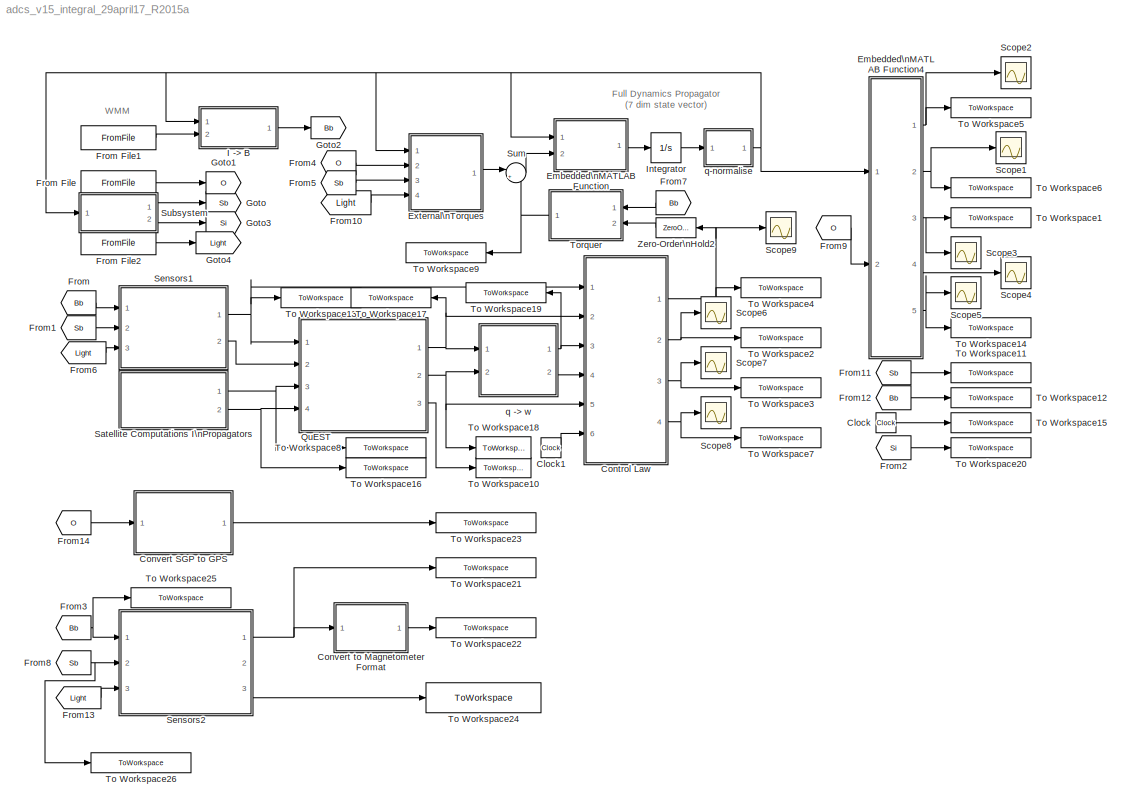
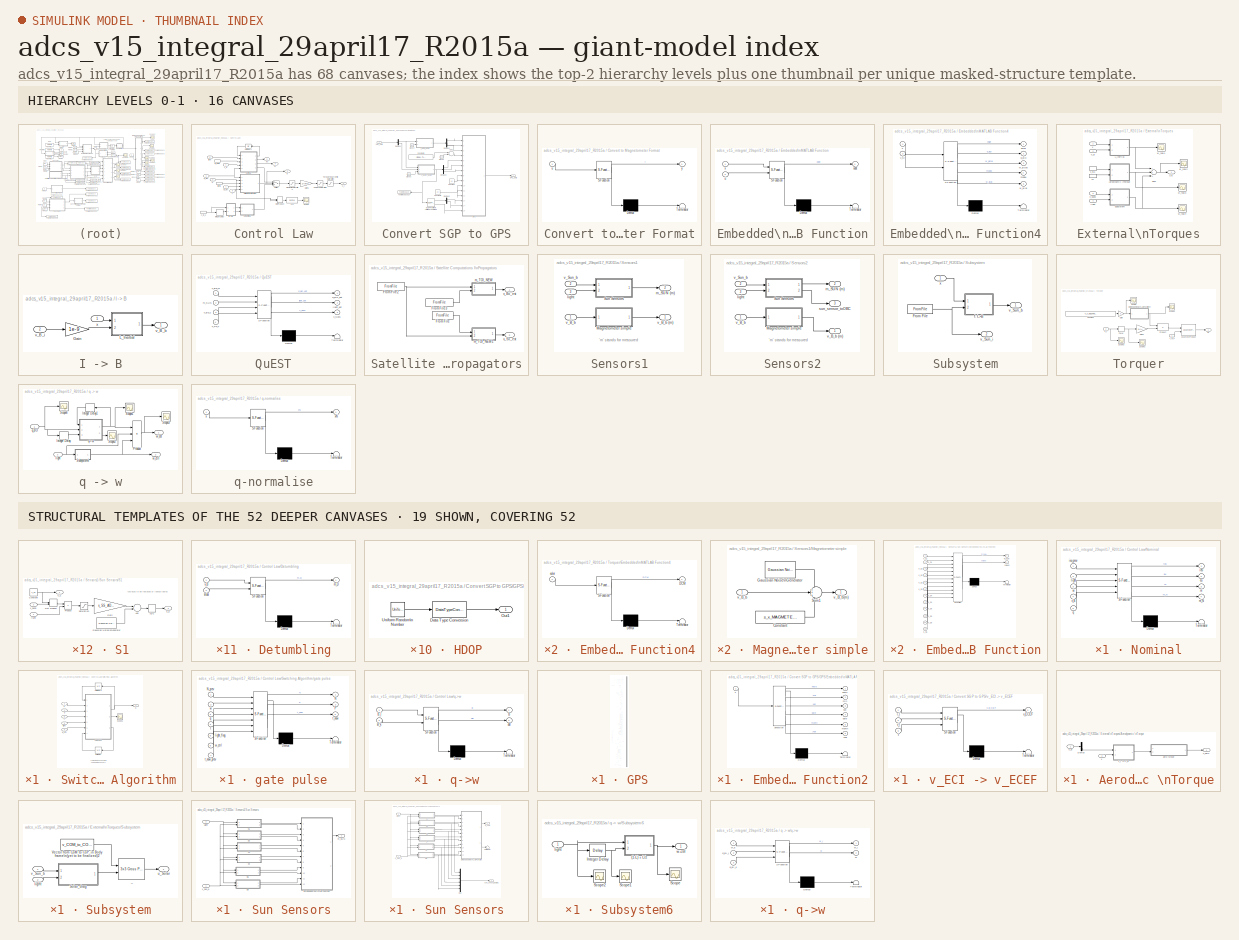
[diagram: thumbnail index - top-2 hierarchy levels (16 canvases) + 19 structural-template representatives of the remaining 52 canvases]
MODEL adcs_v15_integral_29april17_R2015a
KIND model
BLOCK [Clock] Clock
  SID = 814
BLOCK [Clock] Clock1
  SID = 927
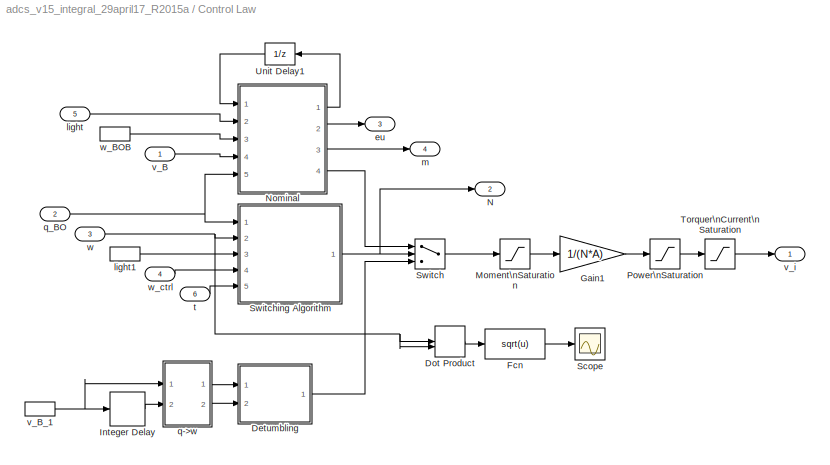
BLOCK [SubSystem] Control Law
  Ports = [6, 4]
  RequestExecContextInheritance = off
  SID = 892
  SystemSampleTime = s_FRAME_SIZE
  TreatAsAtomicUnit = on
  Variant = off
BLOCK [SubSystem] Control Law/Detumbling
  ErrorFcn = Stateflow.Translate.translate
  PermitHierarchicalResolution = ParametersOnly
  Ports = [2, 1]
  RequestExecContextInheritance = off
  SFBlockType = MATLAB Function
  SID = 898
  TreatAsAtomicUnit = on
  Variant = off
BLOCK [Demux] Control Law/Detumbling/ Demux 
  Outputs = 1
  Ports = [1, 1]
  SID = 898::19
BLOCK [S-Function] Control Law/Detumbling/ SFunction 
  EnableBusSupport = on
  FunctionName = sf_sfun
  Parameters = Kdetumb,s_MAG_B
  PortCounts = [2 2]
  Ports = [2, 2]
  SFunctionDeploymentMode = off
  SID = 898::18
  Tag = Stateflow S-Function adcs_v15_integral_29april17_R2015a 23
BLOCK [Terminator] Control Law/Detumbling/ Terminator 
  SID = 898::20
BLOCK [Inport] Control Law/Detumbling/Bdot
  IconDisplay = Port number
  Port = 2
  SID = 898::2
BLOCK [Outport] Control Law/Detumbling/m_D
  IconDisplay = Port number
  SID = 898::6
BLOCK [Inport] Control Law/Detumbling/v_B
  IconDisplay = Port number
  SID = 898::1
BLOCK [DotProduct] Control Law/Dot Product
  OutDataTypeStr = Inherit: Inherit via internal rule
  SID = 963
BLOCK [Fcn] Control Law/Fcn
  Expr = sqrt(u)
  SID = 965
BLOCK [Gain] Control Law/Gain1
  Gain = 1/(N*A)
  OutDataTypeStr = Inherit: Inherit via internal rule
  ParamDataTypeStr = Inherit: Inherit via internal rule
  SID = 899
  SaturateOnIntegerOverflow = off
BLOCK [Delay] Control Law/Integer Delay
  DelayLength = 1
  InputPortMap = u0
  InputProcessing = Inherited
  Ports = [1, 1]
  SID = 900
BLOCK [Saturate] Control Law/Moment\nSaturation
  InputPortMap = u0
  LowerLimit = -s_m_MAX
  Ports = [1, 1]
  SID = 901
  UpperLimit = s_m_MAX
BLOCK [Outport] Control Law/N
  IconDisplay = Port number
  Port = 2
  SID = 920
BLOCK [SubSystem] Control Law/Nominal
  ErrorFcn = Stateflow.Translate.translate
  PermitHierarchicalResolution = ParametersOnly
  Ports = [5, 4]
  RequestExecContextInheritance = off
  SFBlockType = MATLAB Function
  SID = 902
  TreatAsAtomicUnit = on
  Variant = off
BLOCK [Demux] Control Law/Nominal/ Demux 
  Outputs = 1
  Ports = [1, 1]
  SID = 902::29
BLOCK [S-Function] Control Law/Nominal/ SFunction 
  EnableBusSupport = on
  FunctionName = sf_sfun
  Parameters = Kd,Ki,Kp,s_FRAME_SIZE
  PortCounts = [5 5]
  Ports = [5, 5]
  SFunctionDeploymentMode = off
  SID = 902::28
  Tag = Stateflow S-Function adcs_v15_integral_29april17_R2015a 13
BLOCK [Terminator] Control Law/Nominal/ Terminator 
  SID = 902::30
BLOCK [Outport] Control Law/Nominal/eu
  IconDisplay = Port number
  Port = 2
  SID = 902::14
BLOCK [Outport] Control Law/Nominal/ieu
  IconDisplay = Port number
  SID = 902::19
BLOCK [Inport] Control Law/Nominal/ieu_prev
  IconDisplay = Port number
  SID = 902::17
BLOCK [Inport] Control Law/Nominal/light
  IconDisplay = Port number
  Port = 2
  SID = 902::12
BLOCK [Outport] Control Law/Nominal/m
  IconDisplay = Port number
  Port = 3
  SID = 902::13
BLOCK [Outport] Control Law/Nominal/m_N
  IconDisplay = Port number
  Port = 4
  SID = 902::7
BLOCK [Inport] Control Law/Nominal/q
  IconDisplay = Port number
  Port = 5
  SID = 902::15
BLOCK [Inport] Control Law/Nominal/v_B
  IconDisplay = Port number
  Port = 4
  SID = 902::2
BLOCK [Inport] Control Law/Nominal/w
  IconDisplay = Port number
  Port = 3
  SID = 902::1
BLOCK [Saturate] Control Law/Power\nSaturation
  InputPortMap = u0
  LowerLimit = -I_MAX
  Ports = [1, 1]
  SID = 903
  UpperLimit = I_MAX
BLOCK [Scope] Control Law/Scope
  DataFormat = StructureWithTime
  Decimation = 1
  Grid = on
  LimitDataPoints = off
  MaxDataPoints = 5000
  Ports = [1]
  SID = 964
  SampleInput = off
  SampleTime = -1
  SaveName = ScopeData4
  SaveToWorkspace = off
  ShowLegends = off
  TickLabels = OneTimeTick
  TimeRange = auto
  YMax = 0.11
  YMin = 0
  ZoomMode = xonly
BLOCK [Switch] Control Law/Switch
  InputSameDT = off
  SID = 904
  SaturateOnIntegerOverflow = off
  Threshold = 0.5
BLOCK [SubSystem] Control Law/Switching Algorithm
  Ports = [5, 1]
  RequestExecContextInheritance = off
  SID = 905
  Variant = off
BLOCK [Outport] Control Law/Switching Algorithm/N
  IconDisplay = Port number
  SID = 913
BLOCK [Scope] Control Law/Switching Algorithm/Scope1
  DataFormat = StructureWithTime
  Decimation = 1
  Grid = on
  LimitDataPoints = off
  MaxDataPoints = 5000
  Ports = [1]
  SID = 966
  SampleInput = off
  SampleTime = -1
  SaveName = ScopeData5
  SaveToWorkspace = off
  ShowLegends = off
  TickLabels = OneTimeTick
  TimeRange = 140000
  YMax = 1.3
  YMin = 0
  ZoomMode = xonly
BLOCK [UnitDelay] Control Law/Switching Algorithm/Unit Delay
  SID = 911
  SampleTime = -1
BLOCK [UnitDelay] Control Law/Switching Algorithm/Unit Delay1
  SID = 961
  SampleTime = -1
BLOCK [SubSystem] Control Law/Switching Algorithm/gate pulse
  ErrorFcn = Stateflow.Translate.translate
  PermitHierarchicalResolution = ParametersOnly
  Ports = [7, 3]
  RequestExecContextInheritance = off
  SFBlockType = MATLAB Function
  SID = 912
  TreatAsAtomicUnit = on
  Variant = off
BLOCK [Demux] Control Law/Switching Algorithm/gate pulse/ Demux 
  Outputs = 1
  Ports = [1, 1]
  SID = 912::28
BLOCK [S-Function] Control Law/Switching Algorithm/gate pulse/ SFunction 
  EnableBusSupport = on
  FunctionName = sf_sfun
  Parameters = check_time,tol_q4,tol_w,tolw_n2d
  PortCounts = [7 4]
  Ports = [7, 4]
  SFunctionDeploymentMode = off
  SID = 912::27
  Tag = Stateflow S-Function adcs_v15_integral_29april17_R2015a 24
BLOCK [Terminator] Control Law/Switching Algorithm/gate pulse/ Terminator 
  SID = 912::29
BLOCK [Outport] Control Law/Switching Algorithm/gate pulse/N
  IconDisplay = Port number
  SID = 912::8
BLOCK [Inport] Control Law/Switching Algorithm/gate pulse/N_prev
  IconDisplay = Port number
  SID = 912::4
BLOCK [Outport] Control Law/Switching Algorithm/gate pulse/P
  IconDisplay = Port number
  Port = 2
  SID = 912::19
BLOCK [Inport] Control Law/Switching Algorithm/gate pulse/light_flag
  IconDisplay = Port number
  Port = 5
  SID = 912::14
BLOCK [Inport] Control Law/Switching Algorithm/gate pulse/q
  IconDisplay = Port number
  Port = 3
  SID = 912::2
BLOCK [Inport] Control Law/Switching Algorithm/gate pulse/t
  IconDisplay = Port number
  Port = 4
  SID = 912::3
BLOCK [Outport] Control Law/Switching Algorithm/gate pulse/t_now
  IconDisplay = Port number
  Port = 3
  SID = 912::9
BLOCK [Inport] Control Law/Switching Algorithm/gate pulse/t_now_prev
  IconDisplay = Port number
  Port = 7
  SID = 912::16
BLOCK [Inport] Control Law/Switching Algorithm/gate pulse/w
  IconDisplay = Port number
  Port = 2
  SID = 912::1
BLOCK [Inport] Control Law/Switching Algorithm/gate pulse/w_ctrl
  IconDisplay = Port number
  Port = 6
  SID = 912::15
BLOCK [Inport] Control Law/Switching Algorithm/light
  IconDisplay = Port number
  Port = 3
  SID = 908
BLOCK [Inport] Control Law/Switching Algorithm/q
  IconDisplay = Port number
  SID = 906
BLOCK [Inport] Control Law/Switching Algorithm/t
  IconDisplay = Port number
  Port = 5
  SID = 925
BLOCK [Inport] Control Law/Switching Algorithm/w
  IconDisplay = Port number
  Port = 2
  SID = 907
BLOCK [Inport] Control Law/Switching Algorithm/w_ctrl
  IconDisplay = Port number
  Port = 4
  SID = 909
BLOCK [Saturate] Control Law/Torquer\nCurrent\nSaturation
  InputPortMap = u0
  LowerLimit = -I_TORQUER
  Ports = [1, 1]
  SID = 914
  UpperLimit = I_TORQUER
BLOCK [UnitDelay] Control Law/Unit Delay1
  InitialCondition = [0;0;0]
  SID = 968
  SampleTime = -1
BLOCK [Outport] Control Law/eu
  IconDisplay = Port number
  Port = 3
  SID = 921
BLOCK [Inport] Control Law/light
  IconDisplay = Port number
  Port = 5
  SID = 897
BLOCK [InportShadow] Control Law/light1
  IconDisplay = Port number
  Port = 5
  SID = 915
BLOCK [Outport] Control Law/m
  IconDisplay = Port number
  Port = 4
  SID = 922
BLOCK [SubSystem] Control Law/q->w
  ErrorFcn = Stateflow.Translate.translate
  PermitHierarchicalResolution = ParametersOnly
  Ports = [2, 2]
  RequestExecContextInheritance = off
  SFBlockType = MATLAB Function
  SID = 916
  TreatAsAtomicUnit = on
  Variant = off
BLOCK [Demux] Control Law/q->w/ Demux 
  Outputs = 1
  Ports = [1, 1]
  SID = 916::21
BLOCK [S-Function] Control Law/q->w/ SFunction 
  EnableBusSupport = on
  FunctionName = sf_sfun
  Parameters = s_FRAME_SIZE
  PortCounts = [2 3]
  Ports = [2, 3]
  SFunctionDeploymentMode = off
  SID = 916::20
  Tag = Stateflow S-Function adcs_v15_integral_29april17_R2015a 10
BLOCK [Terminator] Control Law/q->w/ Terminator 
  SID = 916::22
BLOCK [Outport] Control Law/q->w/B
  IconDisplay = Port number
  SID = 916::12
BLOCK [Inport] Control Law/q->w/B_k
  IconDisplay = Port number
  Port = 2
  SID = 916::2
BLOCK [Inport] Control Law/q->w/B_l
  IconDisplay = Port number
  SID = 916::1
BLOCK [Outport] Control Law/q->w/dB
  IconDisplay = Port number
  Port = 2
  SID = 916::7
BLOCK [Inport] Control Law/q_BO
  IconDisplay = Port number
  Port = 2
  SID = 894
BLOCK [Inport] Control Law/t
  IconDisplay = Port number
  Port = 6
  SID = 926
BLOCK [Inport] Control Law/v_B
  IconDisplay = Port number
  SID = 893
BLOCK [InportShadow] Control Law/v_B_1
  IconDisplay = Port number
  SID = 917
BLOCK [Outport] Control Law/v_i
  IconDisplay = Port number
  SID = 919
BLOCK [Inport] Control Law/w
  IconDisplay = Port number
  Port = 3
  SID = 895
BLOCK [InportShadow] Control Law/w_BOB
  IconDisplay = Port number
  Port = 3
  SID = 918
BLOCK [Inport] Control Law/w_ctrl
  IconDisplay = Port number
  Port = 4
  SID = 896
BLOCK [SubSystem] Convert SGP to GPS
  Ports = [1, 1]
  RequestExecContextInheritance = off
  SID = 991
  Variant = off
BLOCK [Sum] Convert SGP to GPS/Add1
  InputSameDT = off
  OutDataTypeStr = Inherit: Inherit via internal rule
  Ports = [2, 1]
  SID = 993
  SaturateOnIntegerOverflow = off
BLOCK [Clock] Convert SGP to GPS/Clock2
  SID = 994
BLOCK [Clock] Convert SGP to GPS/Clock3
  SID = 995
BLOCK [Clock] Convert SGP to GPS/Clock4
  SID = 996
BLOCK [Constant] Convert SGP to GPS/Constant
  OutDataTypeStr = uint8
  SID = 997
  Value = 10
BLOCK [Constant] Convert SGP to GPS/Constant1
  SID = 998
  Value = (today - TLE_epoch) * 86400
  VectorParams1D = off
BLOCK [Constant] Convert SGP to GPS/Constant2
  OutDataTypeStr = double
  SID = 999
  Value = 10
BLOCK [Demux] Convert SGP to GPS/Demux1
  DisplayOption = bar
  Outputs = 2
  Ports = [1, 2]
  SID = 1000
BLOCK [Demux] Convert SGP to GPS/Demux2
  DisplayOption = bar
  Outputs = 3
  Ports = [1, 3]
  SID = 1001
BLOCK [Demux] Convert SGP to GPS/Demux3
  DisplayOption = bar
  Outputs = 3
  Ports = [1, 3]
  SID = 1002
BLOCK [Demux] Convert SGP to GPS/Demux5
  DisplayOption = bar
  Outputs = 2
  Ports = [1, 2]
  SID = 1003
BLOCK [Reference] Convert SGP to GPS/ECEF Position to Latitude Longitude  REF=aerolibtransform2/ECEF Position to LLA
  F = 1/298.257223563
  Ports = [1, 2]
  R = 6378137
  SID = 1004
  SourceBlock = aerolibtransform2/ECEF Position to LLA
  SourceType = ECEF to LLA
  ptype = Earth (WGS84)
  units = Metric (MKS)
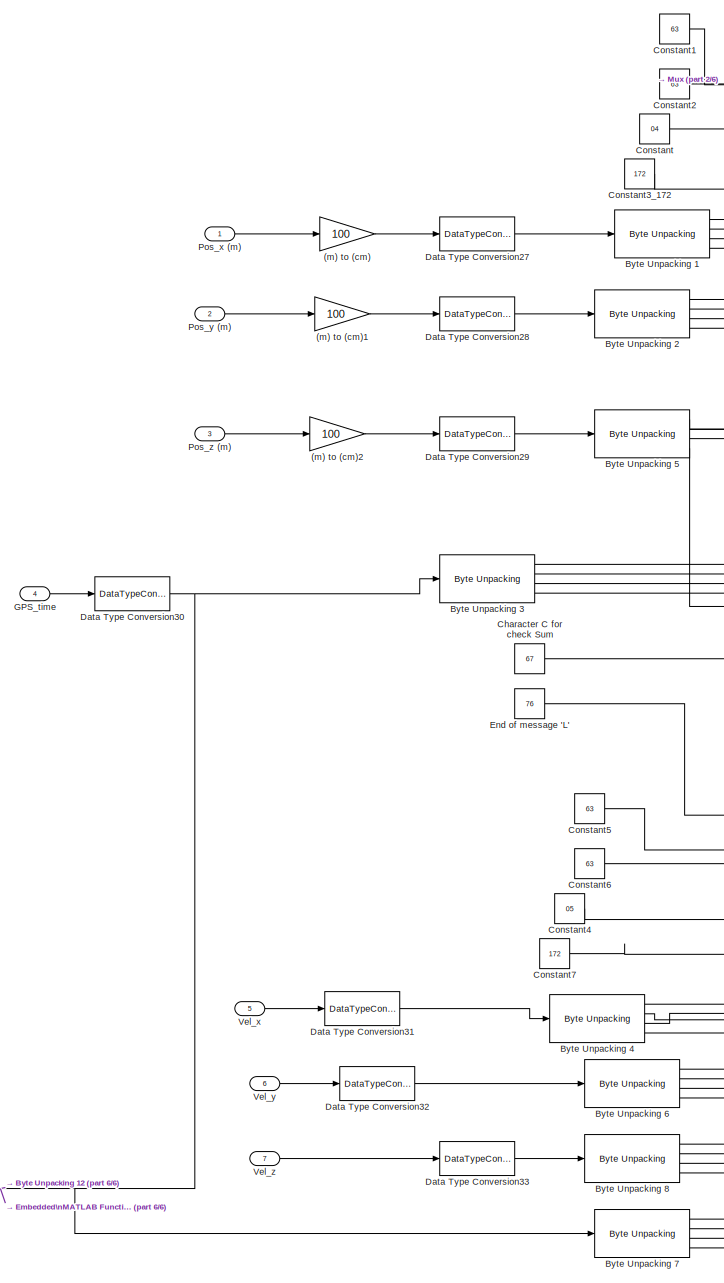
[diagram: Convert SGP to GPS/GPS - part 1/6, top center region]
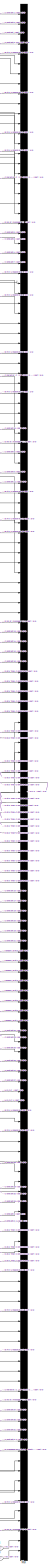
[diagram: Convert SGP to GPS/GPS - part 2/6, right side, full height]
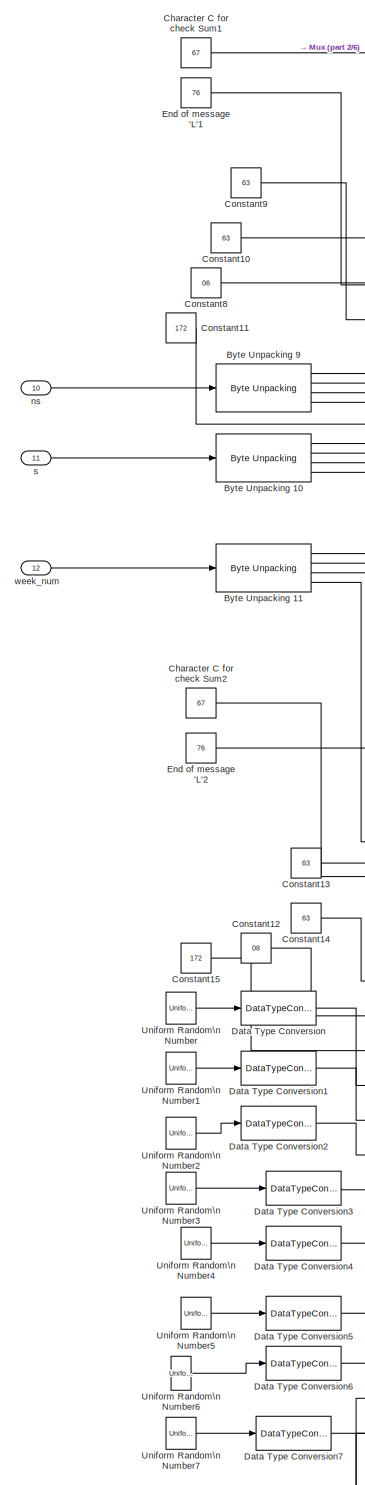
[diagram: Convert SGP to GPS/GPS - part 3/6, central region]
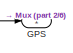
[diagram: Convert SGP to GPS/GPS - part 4/6, middle right region]
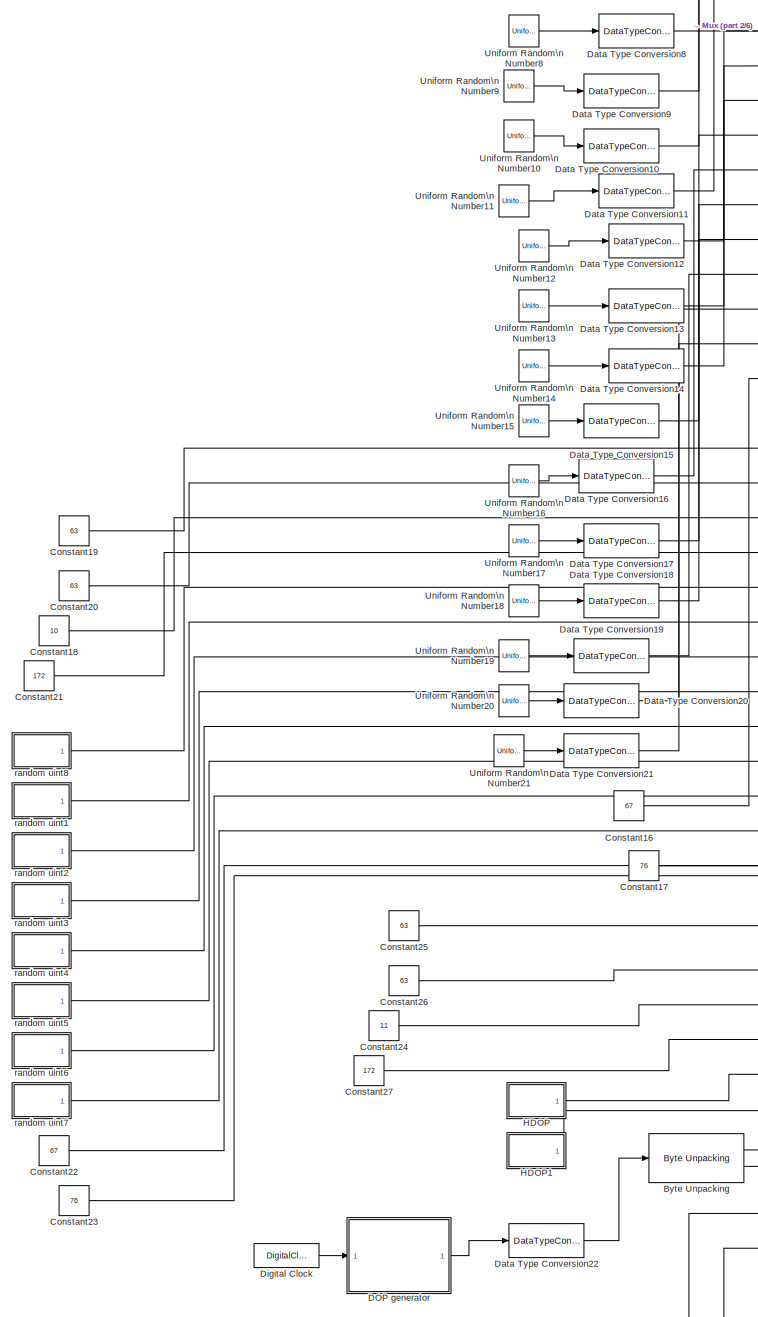
[diagram: Convert SGP to GPS/GPS - part 5/6, central region]
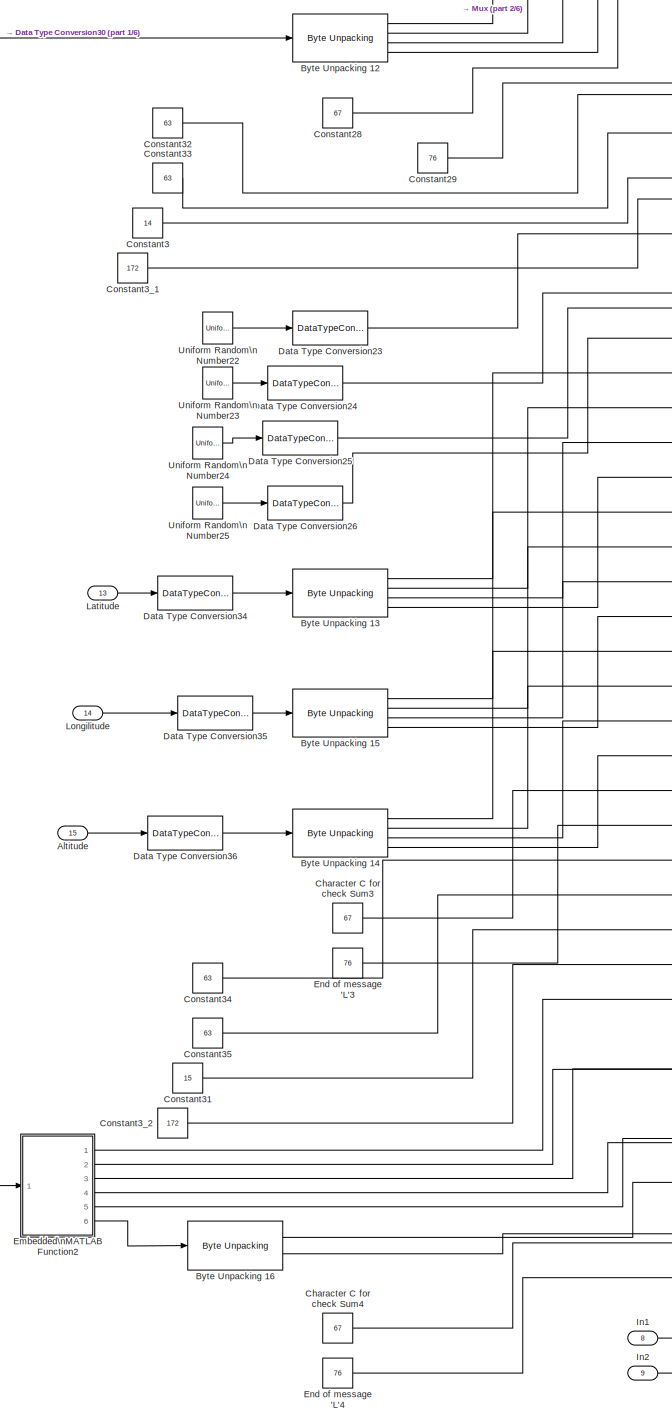
[diagram: Convert SGP to GPS/GPS - part 6/6, bottom center region]
BLOCK [SubSystem] Convert SGP to GPS/GPS
  Ports = [15, 1]
  RequestExecContextInheritance = off
  SID = 1005
  Variant = off
BLOCK [Gain] Convert SGP to GPS/GPS/(m) to (cm)
  Gain = 100
  OutDataTypeStr = double
  ParamDataTypeStr = Inherit: Inherit via internal rule
  SID = 1021
  SaturateOnIntegerOverflow = off
BLOCK [Gain] Convert SGP to GPS/GPS/(m) to (cm)1
  Gain = 100
  OutDataTypeStr = Inherit: Inherit via internal rule
  ParamDataTypeStr = Inherit: Inherit via internal rule
  SID = 1022
  SaturateOnIntegerOverflow = off
BLOCK [Gain] Convert SGP to GPS/GPS/(m) to (cm)2
  Gain = 100
  OutDataTypeStr = Inherit: Inherit via internal rule
  ParamDataTypeStr = Inherit: Inherit via internal rule
  SID = 1023
  SaturateOnIntegerOverflow = off
BLOCK [Inport] Convert SGP to GPS/GPS/Altitude
  IconDisplay = Port number
  Port = 15
  SID = 1020
BLOCK [Reference] Convert SGP to GPS/GPS/Byte Unpacking   REF=xpcutilitieslib/Byte Unpacking 
  MaskAlignment = 1
  MaskUnpackedDataSizes = {1 1}
  MaskUnpackedDataTypes = {'uint8' 'uint8'}
  Ports = [1, 2]
  SID = 1024
  SourceBlock = xpcutilitieslib/Byte Unpacking
  SourceType = xpcbytepacking
BLOCK [Reference] Convert SGP to GPS/GPS/Byte Unpacking 1  REF=xpcutilitieslib/Byte Unpacking 
  MaskAlignment = 1
  MaskUnpackedDataSizes = {1 1 1 1}
  MaskUnpackedDataTypes = {'uint8' 'uint8' 'uint8' 'uint8'}
  Ports = [1, 4]
  SID = 1025
  SourceBlock = xpcutilitieslib/Byte Unpacking
  SourceType = xpcbytepacking
BLOCK [Reference] Convert SGP to GPS/GPS/Byte Unpacking 10  REF=xpcutilitieslib/Byte Unpacking 
  MaskAlignment = 1
  MaskUnpackedDataSizes = {1 1 1 1}
  MaskUnpackedDataTypes = {'uint8' 'uint8' 'uint8' 'uint8'}
  Ports = [1, 4]
  SID = 1026
  SourceBlock = xpcutilitieslib/Byte Unpacking
  SourceType = xpcbytepacking
BLOCK [Reference] Convert SGP to GPS/GPS/Byte Unpacking 11  REF=xpcutilitieslib/Byte Unpacking 
  MaskAlignment = 1
  MaskUnpackedDataSizes = {1 1 1 1}
  MaskUnpackedDataTypes = {'uint8' 'uint8' 'uint8' 'uint8'}
  Ports = [1, 4]
  SID = 1027
  SourceBlock = xpcutilitieslib/Byte Unpacking
  SourceType = xpcbytepacking
BLOCK [Reference] Convert SGP to GPS/GPS/Byte Unpacking 12  REF=xpcutilitieslib/Byte Unpacking 
  MaskAlignment = 1
  MaskUnpackedDataSizes = {1 1 1 1}
  MaskUnpackedDataTypes = {'uint8' 'uint8' 'uint8' 'uint8'}
  Ports = [1, 4]
  SID = 1028
  SourceBlock = xpcutilitieslib/Byte Unpacking
  SourceType = xpcbytepacking
BLOCK [Reference] Convert SGP to GPS/GPS/Byte Unpacking 13  REF=xpcutilitieslib/Byte Unpacking 
  MaskAlignment = 1
  MaskUnpackedDataSizes = {1 1 1 1}
  MaskUnpackedDataTypes = {'uint8' 'uint8' 'uint8' 'uint8'}
  Ports = [1, 4]
  SID = 1029
  SourceBlock = xpcutilitieslib/Byte Unpacking
  SourceType = xpcbytepacking
BLOCK [Reference] Convert SGP to GPS/GPS/Byte Unpacking 14  REF=xpcutilitieslib/Byte Unpacking 
  MaskAlignment = 1
  MaskUnpackedDataSizes = {1 1 1 1}
  MaskUnpackedDataTypes = {'uint8' 'uint8' 'uint8' 'uint8'}
  Ports = [1, 4]
  SID = 1030
  SourceBlock = xpcutilitieslib/Byte Unpacking
  SourceType = xpcbytepacking
BLOCK [Reference] Convert SGP to GPS/GPS/Byte Unpacking 15  REF=xpcutilitieslib/Byte Unpacking 
  MaskAlignment = 1
  MaskUnpackedDataSizes = {1 1 1 1}
  MaskUnpackedDataTypes = {'uint8' 'uint8' 'uint8' 'uint8'}
  Ports = [1, 4]
  SID = 1031
  SourceBlock = xpcutilitieslib/Byte Unpacking
  SourceType = xpcbytepacking
BLOCK [Reference] Convert SGP to GPS/GPS/Byte Unpacking 16  REF=xpcutilitieslib/Byte Unpacking 
  MaskAlignment = 1
  MaskUnpackedDataSizes = {1 1}
  MaskUnpackedDataTypes = {'uint8' 'uint8'}
  Ports = [1, 2]
  SID = 1032
  SourceBlock = xpcutilitieslib/Byte Unpacking
  SourceType = xpcbytepacking
BLOCK [Reference] Convert SGP to GPS/GPS/Byte Unpacking 2  REF=xpcutilitieslib/Byte Unpacking 
  MaskAlignment = 1
  MaskUnpackedDataSizes = {1 1 1 1}
  MaskUnpackedDataTypes = {'uint8' 'uint8' 'uint8' 'uint8'}
  Ports = [1, 4]
  SID = 1033
  SourceBlock = xpcutilitieslib/Byte Unpacking
  SourceType = xpcbytepacking
BLOCK [Reference] Convert SGP to GPS/GPS/Byte Unpacking 3  REF=xpcutilitieslib/Byte Unpacking 
  MaskAlignment = 1
  MaskUnpackedDataSizes = {1 1 1 1}
  MaskUnpackedDataTypes = {'uint8' 'uint8' 'uint8' 'uint8'}
  Ports = [1, 4]
  SID = 1034
  SourceBlock = xpcutilitieslib/Byte Unpacking
  SourceType = xpcbytepacking
BLOCK [Reference] Convert SGP to GPS/GPS/Byte Unpacking 4  REF=xpcutilitieslib/Byte Unpacking 
  MaskAlignment = 1
  MaskUnpackedDataSizes = {1 1 1 1}
  MaskUnpackedDataTypes = {'uint8' 'uint8' 'uint8' 'uint8'}
  Ports = [1, 4]
  SID = 1035
  SourceBlock = xpcutilitieslib/Byte Unpacking
  SourceType = xpcbytepacking
BLOCK [Reference] Convert SGP to GPS/GPS/Byte Unpacking 5  REF=xpcutilitieslib/Byte Unpacking 
  MaskAlignment = 1
  MaskUnpackedDataSizes = {1 1 1 1}
  MaskUnpackedDataTypes = {'uint8' 'uint8' 'uint8' 'uint8'}
  Ports = [1, 4]
  SID = 1036
  SourceBlock = xpcutilitieslib/Byte Unpacking
  SourceType = xpcbytepacking
BLOCK [Reference] Convert SGP to GPS/GPS/Byte Unpacking 6  REF=xpcutilitieslib/Byte Unpacking 
  MaskAlignment = 1
  MaskUnpackedDataSizes = {1 1 1 1}
  MaskUnpackedDataTypes = {'uint8' 'uint8' 'uint8' 'uint8'}
  Ports = [1, 4]
  SID = 1037
  SourceBlock = xpcutilitieslib/Byte Unpacking
  SourceType = xpcbytepacking
BLOCK [Reference] Convert SGP to GPS/GPS/Byte Unpacking 7  REF=xpcutilitieslib/Byte Unpacking 
  MaskAlignment = 1
  MaskUnpackedDataSizes = {1 1 1 1}
  MaskUnpackedDataTypes = {'uint8' 'uint8' 'uint8' 'uint8'}
  Ports = [1, 4]
  SID = 1038
  SourceBlock = xpcutilitieslib/Byte Unpacking
  SourceType = xpcbytepacking
BLOCK [Reference] Convert SGP to GPS/GPS/Byte Unpacking 8  REF=xpcutilitieslib/Byte Unpacking 
  MaskAlignment = 1
  MaskUnpackedDataSizes = {1 1 1 1}
  MaskUnpackedDataTypes = {'uint8' 'uint8' 'uint8' 'uint8'}
  Ports = [1, 4]
  SID = 1039
  SourceBlock = xpcutilitieslib/Byte Unpacking
  SourceType = xpcbytepacking
BLOCK [Reference] Convert SGP to GPS/GPS/Byte Unpacking 9  REF=xpcutilitieslib/Byte Unpacking 
  MaskAlignment = 1
  MaskUnpackedDataSizes = {1 1 1 1}
  MaskUnpackedDataTypes = {'uint8' 'uint8' 'uint8' 'uint8'}
  Ports = [1, 4]
  SID = 1040
  SourceBlock = xpcutilitieslib/Byte Unpacking
  SourceType = xpcbytepacking
BLOCK [Constant] Convert SGP to GPS/GPS/Character C for check Sum
  OutDataTypeStr = uint8
  SID = 1041
  Value = 67
BLOCK [Constant] Convert SGP to GPS/GPS/Character C for check Sum1
  OutDataTypeStr = uint8
  SID = 1042
  Value = 67
BLOCK [Constant] Convert SGP to GPS/GPS/Character C for check Sum2
  OutDataTypeStr = uint8
  SID = 1043
  Value = 67
BLOCK [Constant] Convert SGP to GPS/GPS/Character C for check Sum3
  OutDataTypeStr = uint8
  SID = 1044
  Value = 67
BLOCK [Constant] Convert SGP to GPS/GPS/Character C for check Sum4
  OutDataTypeStr = uint8
  SID = 1045
  Value = 67
BLOCK [Constant] Convert SGP to GPS/GPS/Constant
  OutDataTypeStr = uint8
  SID = 1046
  Value = 04
BLOCK [Constant] Convert SGP to GPS/GPS/Constant1
  OutDataTypeStr = uint8
  SID = 1047
  Value = 63
BLOCK [Constant] Convert SGP to GPS/GPS/Constant10
  OutDataTypeStr = uint8
  SID = 1048
  Value = 63
BLOCK [Constant] Convert SGP to GPS/GPS/Constant11
  OutDataTypeStr = uint8
  SID = 1049
  Value = 172
BLOCK [Constant] Convert SGP to GPS/GPS/Constant12
  OutDataTypeStr = uint8
  SID = 1050
  Value = 08
BLOCK [Constant] Convert SGP to GPS/GPS/Constant13
  OutDataTypeStr = uint8
  SID = 1051
  Value = 63
BLOCK [Constant] Convert SGP to GPS/GPS/Constant14
  OutDataTypeStr = uint8
  SID = 1052
  Value = 63
BLOCK [Constant] Convert SGP to GPS/GPS/Constant15
  OutDataTypeStr = uint8
  SID = 1053
  Value = 172
BLOCK [Constant] Convert SGP to GPS/GPS/Constant16
  OutDataTypeStr = uint8
  SID = 1054
  Value = 67
BLOCK [Constant] Convert SGP to GPS/GPS/Constant17
  OutDataTypeStr = uint8
  SID = 1055
  Value = 76
BLOCK [Constant] Convert SGP to GPS/GPS/Constant18
  OutDataTypeStr = uint8
  SID = 1056
  Value = 10
BLOCK [Constant] Convert SGP to GPS/GPS/Constant19
  OutDataTypeStr = uint8
  SID = 1057
  Value = 63
BLOCK [Constant] Convert SGP to GPS/GPS/Constant2
  OutDataTypeStr = uint8
  SID = 1058
  Value = 63
BLOCK [Constant] Convert SGP to GPS/GPS/Constant20
  OutDataTypeStr = uint8
  SID = 1059
  Value = 63
BLOCK [Constant] Convert SGP to GPS/GPS/Constant21
  OutDataTypeStr = uint8
  SID = 1060
  Value = 172
BLOCK [Constant] Convert SGP to GPS/GPS/Constant22
  OutDataTypeStr = uint8
  SID = 1061
  Value = 67
BLOCK [Constant] Convert SGP to GPS/GPS/Constant23
  OutDataTypeStr = uint8
  SID = 1062
  Value = 76
BLOCK [Constant] Convert SGP to GPS/GPS/Constant24
  OutDataTypeStr = uint8
  SID = 1063
  Value = 11
BLOCK [Constant] Convert SGP to GPS/GPS/Constant25
  OutDataTypeStr = uint8
  SID = 1064
  Value = 63
BLOCK [Constant] Convert SGP to GPS/GPS/Constant26
  OutDataTypeStr = uint8
  SID = 1065
  Value = 63
BLOCK [Constant] Convert SGP to GPS/GPS/Constant27
  OutDataTypeStr = uint8
  SID = 1066
  Value = 172
BLOCK [Constant] Convert SGP to GPS/GPS/Constant28
  OutDataTypeStr = uint8
  SID = 1067
  Value = 67
BLOCK [Constant] Convert SGP to GPS/GPS/Constant29
  OutDataTypeStr = uint8
  SID = 1068
  Value = 76
BLOCK [Constant] Convert SGP to GPS/GPS/Constant3
  OutDataTypeStr = uint8
  SID = 1069
  Value = 14
BLOCK [Constant] Convert SGP to GPS/GPS/Constant31
  OutDataTypeStr = uint8
  SID = 1070
  Value = 15
BLOCK [Constant] Convert SGP to GPS/GPS/Constant32
  OutDataTypeStr = uint8
  SID = 1071
  Value = 63
BLOCK [Constant] Convert SGP to GPS/GPS/Constant33
  OutDataTypeStr = uint8
  SID = 1072
  Value = 63
BLOCK [Constant] Convert SGP to GPS/GPS/Constant34
  OutDataTypeStr = uint8
  SID = 1073
  Value = 63
BLOCK [Constant] Convert SGP to GPS/GPS/Constant35
  OutDataTypeStr = uint8
  SID = 1074
  Value = 63
BLOCK [Constant] Convert SGP to GPS/GPS/Constant3_1
  OutDataTypeStr = uint8
  SID = 1075
  Value = 172
BLOCK [Constant] Convert SGP to GPS/GPS/Constant3_172
  OutDataTypeStr = uint8
  SID = 1076
  Value = 172
BLOCK [Constant] Convert SGP to GPS/GPS/Constant3_2
  OutDataTypeStr = uint8
  SID = 1077
  Value = 172
BLOCK [Constant] Convert SGP to GPS/GPS/Constant4
  OutDataTypeStr = uint8
  SID = 1078
  Value = 05
BLOCK [Constant] Convert SGP to GPS/GPS/Constant5
  OutDataTypeStr = uint8
  SID = 1079
  Value = 63
BLOCK [Constant] Convert SGP to GPS/GPS/Constant6
  OutDataTypeStr = uint8
  SID = 1080
  Value = 63
BLOCK [Constant] Convert SGP to GPS/GPS/Constant7
  OutDataTypeStr = uint8
  SID = 1081
  Value = 172
BLOCK [Constant] Convert SGP to GPS/GPS/Constant8
  OutDataTypeStr = uint8
  SID = 1082
  Value = 06
BLOCK [Constant] Convert SGP to GPS/GPS/Constant9
  OutDataTypeStr = uint8
  SID = 1083
  Value = 63
BLOCK [SubSystem] Convert SGP to GPS/GPS/DOP generator
  ErrorFcn = Stateflow.Translate.translate
  PermitHierarchicalResolution = ParametersOnly
  Ports = [1, 1]
  RequestExecContextInheritance = off
  SFBlockType = MATLAB Function
  SID = 1084
  TreatAsAtomicUnit = on
  Variant = off
BLOCK [Demux] Convert SGP to GPS/GPS/DOP generator/ Demux 
  Outputs = 1
  Ports = [1, 1]
  SID = 1084::24
BLOCK [S-Function] Convert SGP to GPS/GPS/DOP generator/ SFunction 
  EnableBusSupport = on
  FunctionName = sf_sfun
  PortCounts = [1 2]
  Ports = [1, 2]
  SFunctionDeploymentMode = off
  SID = 1084::23
  Tag = Stateflow S-Function adcs_v15_integral_29april17_R2015a 17
BLOCK [Terminator] Convert SGP to GPS/GPS/DOP generator/ Terminator 
  SID = 1084::25
BLOCK [Outport] Convert SGP to GPS/GPS/DOP generator/PDOP
  IconDisplay = Port number
  SID = 1084::5
BLOCK [Inport] Convert SGP to GPS/GPS/DOP generator/t
  IconDisplay = Port number
  SID = 1084::1
BLOCK [DataTypeConversion] Convert SGP to GPS/GPS/Data Type Conversion
  OutDataTypeStr = uint8
  RndMeth = Floor
  SID = 1085
  SaturateOnIntegerOverflow = off
BLOCK [DataTypeConversion] Convert SGP to GPS/GPS/Data Type Conversion1
  OutDataTypeStr = uint8
  RndMeth = Floor
  SID = 1086
  SaturateOnIntegerOverflow = off
BLOCK [DataTypeConversion] Convert SGP to GPS/GPS/Data Type Conversion10
  OutDataTypeStr = uint8
  RndMeth = Floor
  SID = 1087
  SaturateOnIntegerOverflow = off
BLOCK [DataTypeConversion] Convert SGP to GPS/GPS/Data Type Conversion11
  OutDataTypeStr = uint8
  RndMeth = Floor
  SID = 1088
  SaturateOnIntegerOverflow = off
BLOCK [DataTypeConversion] Convert SGP to GPS/GPS/Data Type Conversion12
  OutDataTypeStr = uint8
  RndMeth = Floor
  SID = 1089
  SaturateOnIntegerOverflow = off
BLOCK [DataTypeConversion] Convert SGP to GPS/GPS/Data Type Conversion13
  OutDataTypeStr = uint8
  RndMeth = Floor
  SID = 1090
  SaturateOnIntegerOverflow = off
BLOCK [DataTypeConversion] Convert SGP to GPS/GPS/Data Type Conversion14
  OutDataTypeStr = uint8
  RndMeth = Floor
  SID = 1091
  SaturateOnIntegerOverflow = off
BLOCK [DataTypeConversion] Convert SGP to GPS/GPS/Data Type Conversion15
  OutDataTypeStr = uint8
  RndMeth = Floor
  SID = 1092
  SaturateOnIntegerOverflow = off
BLOCK [DataTypeConversion] Convert SGP to GPS/GPS/Data Type Conversion16
  OutDataTypeStr = uint8
  RndMeth = Floor
  SID = 1093
  SaturateOnIntegerOverflow = off
BLOCK [DataTypeConversion] Convert SGP to GPS/GPS/Data Type Conversion17
  OutDataTypeStr = uint8
  RndMeth = Floor
  SID = 1094
  SaturateOnIntegerOverflow = off
BLOCK [DataTypeConversion] Convert SGP to GPS/GPS/Data Type Conversion18
  OutDataTypeStr = uint8
  RndMeth = Floor
  SID = 1095
  SaturateOnIntegerOverflow = off
BLOCK [DataTypeConversion] Convert SGP to GPS/GPS/Data Type Conversion19
  OutDataTypeStr = uint8
  RndMeth = Floor
  SID = 1096
  SaturateOnIntegerOverflow = off
BLOCK [DataTypeConversion] Convert SGP to GPS/GPS/Data Type Conversion2
  OutDataTypeStr = uint8
  RndMeth = Floor
  SID = 1097
  SaturateOnIntegerOverflow = off
BLOCK [DataTypeConversion] Convert SGP to GPS/GPS/Data Type Conversion20
  OutDataTypeStr = uint8
  RndMeth = Floor
  SID = 1098
  SaturateOnIntegerOverflow = off
BLOCK [DataTypeConversion] Convert SGP to GPS/GPS/Data Type Conversion21
  OutDataTypeStr = uint8
  RndMeth = Floor
  SID = 1099
  SaturateOnIntegerOverflow = off
BLOCK [DataTypeConversion] Convert SGP to GPS/GPS/Data Type Conversion22
  OutDataTypeStr = uint32
  RndMeth = Floor
  SID = 1100
  SaturateOnIntegerOverflow = off
BLOCK [DataTypeConversion] Convert SGP to GPS/GPS/Data Type Conversion23
  OutDataTypeStr = uint8
  RndMeth = Floor
  SID = 1101
  SaturateOnIntegerOverflow = off
BLOCK [DataTypeConversion] Convert SGP to GPS/GPS/Data Type Conversion24
  OutDataTypeStr = uint8
  RndMeth = Floor
  SID = 1102
  SaturateOnIntegerOverflow = off
BLOCK [DataTypeConversion] Convert SGP to GPS/GPS/Data Type Conversion25
  OutDataTypeStr = uint8
  RndMeth = Floor
  SID = 1103
  SaturateOnIntegerOverflow = off
BLOCK [DataTypeConversion] Convert SGP to GPS/GPS/Data Type Conversion26
  OutDataTypeStr = uint8
  RndMeth = Floor
  SID = 1104
  SaturateOnIntegerOverflow = off
BLOCK [DataTypeConversion] Convert SGP to GPS/GPS/Data Type Conversion27
  OutDataTypeStr = uint32
  RndMeth = Floor
  SID = 1105
  SaturateOnIntegerOverflow = off
BLOCK [DataTypeConversion] Convert SGP to GPS/GPS/Data Type Conversion28
  OutDataTypeStr = uint32
  RndMeth = Floor
  SID = 1106
  SaturateOnIntegerOverflow = off
BLOCK [DataTypeConversion] Convert SGP to GPS/GPS/Data Type Conversion29
  OutDataTypeStr = uint32
  RndMeth = Floor
  SID = 1107
  SaturateOnIntegerOverflow = off
BLOCK [DataTypeConversion] Convert SGP to GPS/GPS/Data Type Conversion3
  OutDataTypeStr = uint8
  RndMeth = Floor
  SID = 1108
  SaturateOnIntegerOverflow = off
BLOCK [DataTypeConversion] Convert SGP to GPS/GPS/Data Type Conversion30
  OutDataTypeStr = uint32
  RndMeth = Floor
  SID = 1109
  SaturateOnIntegerOverflow = off
BLOCK [DataTypeConversion] Convert SGP to GPS/GPS/Data Type Conversion31
  OutDataTypeStr = uint32
  RndMeth = Floor
  SID = 1110
  SaturateOnIntegerOverflow = off
BLOCK [DataTypeConversion] Convert SGP to GPS/GPS/Data Type Conversion32
  OutDataTypeStr = uint32
  RndMeth = Floor
  SID = 1111
  SaturateOnIntegerOverflow = off
BLOCK [DataTypeConversion] Convert SGP to GPS/GPS/Data Type Conversion33
  OutDataTypeStr = uint32
  RndMeth = Floor
  SID = 1112
  SaturateOnIntegerOverflow = off
BLOCK [DataTypeConversion] Convert SGP to GPS/GPS/Data Type Conversion34
  OutDataTypeStr = uint32
  RndMeth = Floor
  SID = 1113
  SaturateOnIntegerOverflow = off
BLOCK [DataTypeConversion] Convert SGP to GPS/GPS/Data Type Conversion35
  OutDataTypeStr = uint32
  RndMeth = Floor
  SID = 1114
  SaturateOnIntegerOverflow = off
BLOCK [DataTypeConversion] Convert SGP to GPS/GPS/Data Type Conversion36
  OutDataTypeStr = uint32
  RndMeth = Floor
  SID = 1115
  SaturateOnIntegerOverflow = off
BLOCK [DataTypeConversion] Convert SGP to GPS/GPS/Data Type Conversion4
  OutDataTypeStr = uint8
  RndMeth = Floor
  SID = 1116
  SaturateOnIntegerOverflow = off
BLOCK [DataTypeConversion] Convert SGP to GPS/GPS/Data Type Conversion5
  OutDataTypeStr = uint8
  RndMeth = Floor
  SID = 1117
  SaturateOnIntegerOverflow = off
BLOCK [DataTypeConversion] Convert SGP to GPS/GPS/Data Type Conversion6
  OutDataTypeStr = uint8
  RndMeth = Floor
  SID = 1118
  SaturateOnIntegerOverflow = off
BLOCK [DataTypeConversion] Convert SGP to GPS/GPS/Data Type Conversion7
  OutDataTypeStr = uint8
  RndMeth = Floor
  SID = 1119
  SaturateOnIntegerOverflow = off
BLOCK [DataTypeConversion] Convert SGP to GPS/GPS/Data Type Conversion8
  OutDataTypeStr = uint8
  RndMeth = Floor
  SID = 1120
  SaturateOnIntegerOverflow = off
BLOCK [DataTypeConversion] Convert SGP to GPS/GPS/Data Type Conversion9
  OutDataTypeStr = uint8
  RndMeth = Floor
  SID = 1121
  SaturateOnIntegerOverflow = off
BLOCK [DigitalClock] Convert SGP to GPS/GPS/Digital Clock
  SID = 1122
  SampleTime = 0.1
BLOCK [SubSystem] Convert SGP to GPS/GPS/Embedded\nMATLAB Function2
  ErrorFcn = Stateflow.Translate.translate
  PermitHierarchicalResolution = ParametersOnly
  Ports = [1, 6]
  RequestExecContextInheritance = off
  SFBlockType = MATLAB Function
  SID = 1123
  TreatAsAtomicUnit = on
  Variant = off
BLOCK [Demux] Convert SGP to GPS/GPS/Embedded\nMATLAB Function2/ Demux 
  Outputs = 1
  Ports = [1, 1]
  SID = 1123::43
BLOCK [S-Function] Convert SGP to GPS/GPS/Embedded\nMATLAB Function2/ SFunction 
  EnableBusSupport = on
  FunctionName = sf_sfun
  PortCounts = [1 7]
  Ports = [1, 7]
  SFunctionDeploymentMode = off
  SID = 1123::42
  Tag = Stateflow S-Function adcs_v15_integral_29april17_R2015a 21
BLOCK [Terminator] Convert SGP to GPS/GPS/Embedded\nMATLAB Function2/ Terminator 
  SID = 1123::44
BLOCK [Outport] Convert SGP to GPS/GPS/Embedded\nMATLAB Function2/date
  IconDisplay = Port number
  Port = 4
  SID = 1123::24
BLOCK [Outport] Convert SGP to GPS/GPS/Embedded\nMATLAB Function2/hours
  IconDisplay = Port number
  SID = 1123::21
BLOCK [Outport] Convert SGP to GPS/GPS/Embedded\nMATLAB Function2/min
  IconDisplay = Port number
  Port = 2
  SID = 1123::22
BLOCK [Outport] Convert SGP to GPS/GPS/Embedded\nMATLAB Function2/month
  IconDisplay = Port number
  Port = 5
  SID = 1123::26
BLOCK [Inport] Convert SGP to GPS/GPS/Embedded\nMATLAB Function2/s
  IconDisplay = Port number
  SID = 1123::27
BLOCK [Outport] Convert SGP to GPS/GPS/Embedded\nMATLAB Function2/sec
  IconDisplay = Port number
  Port = 3
  SID = 1123::23
BLOCK [Outport] Convert SGP to GPS/GPS/Embedded\nMATLAB Function2/year
  IconDisplay = Port number
  Port = 6
  SID = 1123::28
BLOCK [Constant] Convert SGP to GPS/GPS/End of message 'L'
  OutDataTypeStr = uint8
  SID = 1124
  Value = 76
BLOCK [Constant] Convert SGP to GPS/GPS/End of message 'L'1
  OutDataTypeStr = uint8
  SID = 1125
  Value = 76
BLOCK [Constant] Convert SGP to GPS/GPS/End of message 'L'2
  OutDataTypeStr = uint8
  SID = 1126
  Value = 76
BLOCK [Constant] Convert SGP to GPS/GPS/End of message 'L'3
  OutDataTypeStr = uint8
  SID = 1127
  Value = 76
BLOCK [Constant] Convert SGP to GPS/GPS/End of message 'L'4
  OutDataTypeStr = uint8
  SID = 1128
  Value = 76
BLOCK [Outport] Convert SGP to GPS/GPS/GPS
  IconDisplay = Port number
  SID = 1196
BLOCK [Inport] Convert SGP to GPS/GPS/GPS_time
  IconDisplay = Port number
  Port = 4
  SID = 1009
BLOCK [SubSystem] Convert SGP to GPS/GPS/HDOP
  Ports = [0, 1]
  RequestExecContextInheritance = off
  SID = 1129
  Variant = off
BLOCK [DataTypeConversion] Convert SGP to GPS/GPS/HDOP/Data Type Conversion
  OutDataTypeStr = uint8
  RndMeth = Floor
  SID = 1130
  SaturateOnIntegerOverflow = off
BLOCK [Outport] Convert SGP to GPS/GPS/HDOP/Out1
  IconDisplay = Port number
  SID = 1132
BLOCK [UniformRandomNumber] Convert SGP to GPS/GPS/HDOP/Uniform Random\nNumber
  Maximum = 256
  Minimum = 0
  SID = 1131
  SampleTime = 0.1
BLOCK [SubSystem] Convert SGP to GPS/GPS/HDOP1
  Ports = [0, 1]
  RequestExecContextInheritance = off
  SID = 1133
  Variant = off
BLOCK [DataTypeConversion] Convert SGP to GPS/GPS/HDOP1/Data Type Conversion
  OutDataTypeStr = uint8
  RndMeth = Floor
  SID = 1134
  SaturateOnIntegerOverflow = off
BLOCK [Outport] Convert SGP to GPS/GPS/HDOP1/Out1
  IconDisplay = Port number
  SID = 1136
BLOCK [UniformRandomNumber] Convert SGP to GPS/GPS/HDOP1/Uniform Random\nNumber
  Maximum = 256
  Minimum = 0
  SID = 1135
  SampleTime = 0.1
BLOCK [Inport] Convert SGP to GPS/GPS/In1
  IconDisplay = Port number
  OutDataTypeStr = uint8
  Port = 8
  SID = 1013
BLOCK [Inport] Convert SGP to GPS/GPS/In2
  IconDisplay = Port number
  OutDataTypeStr = uint8
  Port = 9
  SID = 1014
BLOCK [Inport] Convert SGP to GPS/GPS/Latitude
  IconDisplay = Port number
  Port = 13
  SID = 1018
BLOCK [Inport] Convert SGP to GPS/GPS/Longilitude 
  IconDisplay = Port number
  Port = 14
  SID = 1019
BLOCK [Mux] Convert SGP to GPS/GPS/Mux
  DisplayOption = bar
  Inputs = 155
  Ports = [155, 1]
  SID = 1137
BLOCK [Inport] Convert SGP to GPS/GPS/Pos_x (m)
  IconDisplay = Port number
  SID = 1006
BLOCK [Inport] Convert SGP to GPS/GPS/Pos_y (m)
  IconDisplay = Port number
  Port = 2
  SID = 1007
BLOCK [Inport] Convert SGP to GPS/GPS/Pos_z (m)
  IconDisplay = Port number
  Port = 3
  SID = 1008
BLOCK [UniformRandomNumber] Convert SGP to GPS/GPS/Uniform Random\nNumber
  Maximum = 256
  Minimum = 0
  SID = 1138
  SampleTime = 0.1
  Seed = 1
BLOCK [UniformRandomNumber] Convert SGP to GPS/GPS/Uniform Random\nNumber1
  Maximum = 256
  Minimum = 0
  SID = 1139
  SampleTime = 0.1
  Seed = 1
BLOCK [UniformRandomNumber] Convert SGP to GPS/GPS/Uniform Random\nNumber10
  Maximum = 256
  Minimum = 0
  SID = 1140
  SampleTime = 0.1
  Seed = 1
BLOCK [UniformRandomNumber] Convert SGP to GPS/GPS/Uniform Random\nNumber11
  Maximum = 256
  Minimum = 0
  SID = 1141
  SampleTime = 0.1
  Seed = 1
BLOCK [UniformRandomNumber] Convert SGP to GPS/GPS/Uniform Random\nNumber12
  Maximum = 256
  Minimum = 0
  SID = 1142
  SampleTime = 0.1
  Seed = 1
BLOCK [UniformRandomNumber] Convert SGP to GPS/GPS/Uniform Random\nNumber13
  Maximum = 256
  Minimum = 0
  SID = 1143
  SampleTime = 0.1
  Seed = 1
BLOCK [UniformRandomNumber] Convert SGP to GPS/GPS/Uniform Random\nNumber14
  Maximum = 256
  Minimum = 0
  SID = 1144
  SampleTime = 0.1
  Seed = 1
BLOCK [UniformRandomNumber] Convert SGP to GPS/GPS/Uniform Random\nNumber15
  Maximum = 256
  Minimum = 0
  SID = 1145
  SampleTime = 0.1
  Seed = 1
BLOCK [UniformRandomNumber] Convert SGP to GPS/GPS/Uniform Random\nNumber16
  Maximum = 256
  Minimum = 0
  SID = 1146
  SampleTime = 0.1
  Seed = 1
BLOCK [UniformRandomNumber] Convert SGP to GPS/GPS/Uniform Random\nNumber17
  Maximum = 256
  Minimum = 0
  SID = 1147
  SampleTime = 0.1
  Seed = 1
BLOCK [UniformRandomNumber] Convert SGP to GPS/GPS/Uniform Random\nNumber18
  Maximum = 256
  Minimum = 0
  SID = 1148
  SampleTime = 0.1
  Seed = 1
BLOCK [UniformRandomNumber] Convert SGP to GPS/GPS/Uniform Random\nNumber19
  Maximum = 256
  Minimum = 0
  SID = 1149
  SampleTime = 0.1
  Seed = 1
BLOCK [UniformRandomNumber] Convert SGP to GPS/GPS/Uniform Random\nNumber2
  Maximum = 256
  Minimum = 0
  SID = 1150
  SampleTime = 0.1
  Seed = 1
BLOCK [UniformRandomNumber] Convert SGP to GPS/GPS/Uniform Random\nNumber20
  Maximum = 256
  Minimum = 0
  SID = 1151
  SampleTime = 0.1
  Seed = 1
BLOCK [UniformRandomNumber] Convert SGP to GPS/GPS/Uniform Random\nNumber21
  Maximum = 256
  Minimum = 0
  SID = 1152
  SampleTime = 0.1
  Seed = 1
BLOCK [UniformRandomNumber] Convert SGP to GPS/GPS/Uniform Random\nNumber22
  Maximum = 256
  Minimum = 0
  SID = 1153
  SampleTime = 0.1
  Seed = 1
BLOCK [UniformRandomNumber] Convert SGP to GPS/GPS/Uniform Random\nNumber23
  Maximum = 256
  Minimum = 0
  SID = 1154
  SampleTime = 0.1
  Seed = 1
BLOCK [UniformRandomNumber] Convert SGP to GPS/GPS/Uniform Random\nNumber24
  Maximum = 256
  Minimum = 0
  SID = 1155
  SampleTime = 0.1
  Seed = 1
BLOCK [UniformRandomNumber] Convert SGP to GPS/GPS/Uniform Random\nNumber25
  Maximum = 256
  Minimum = 0
  SID = 1156
  SampleTime = 0.1
  Seed = 1
BLOCK [UniformRandomNumber] Convert SGP to GPS/GPS/Uniform Random\nNumber3
  Maximum = 256
  Minimum = 0
  SID = 1157
  SampleTime = 0.1
  Seed = 1
BLOCK [UniformRandomNumber] Convert SGP to GPS/GPS/Uniform Random\nNumber4
  Maximum = 256
  Minimum = 0
  SID = 1158
  SampleTime = 0.1
  Seed = 1
BLOCK [UniformRandomNumber] Convert SGP to GPS/GPS/Uniform Random\nNumber5
  Maximum = 256
  Minimum = 0
  SID = 1159
  SampleTime = 0.1
  Seed = 1
BLOCK [UniformRandomNumber] Convert SGP to GPS/GPS/Uniform Random\nNumber6
  Maximum = 256
  Minimum = 0
  SID = 1160
  SampleTime = 0.1
  Seed = 1
BLOCK [UniformRandomNumber] Convert SGP to GPS/GPS/Uniform Random\nNumber7
  Maximum = 256
  Minimum = 0
  SID = 1161
  SampleTime = 0.1
  Seed = 1
BLOCK [UniformRandomNumber] Convert SGP to GPS/GPS/Uniform Random\nNumber8
  Maximum = 256
  Minimum = 0
  SID = 1162
  SampleTime = 0.1
  Seed = 1
BLOCK [UniformRandomNumber] Convert SGP to GPS/GPS/Uniform Random\nNumber9
  Maximum = 256
  Minimum = 0
  SID = 1163
  SampleTime = 0.1
  Seed = 1
BLOCK [Inport] Convert SGP to GPS/GPS/Vel_x
  IconDisplay = Port number
  Port = 5
  SID = 1010
BLOCK [Inport] Convert SGP to GPS/GPS/Vel_y
  IconDisplay = Port number
  Port = 6
  SID = 1011
BLOCK [Inport] Convert SGP to GPS/GPS/Vel_z
  IconDisplay = Port number
  Port = 7
  SID = 1012
BLOCK [Inport] Convert SGP to GPS/GPS/ns
  IconDisplay = Port number
  Port = 10
  SID = 1015
BLOCK [SubSystem] Convert SGP to GPS/GPS/random uint1
  Ports = [0, 1]
  RequestExecContextInheritance = off
  SID = 1164
  Variant = off
BLOCK [DataTypeConversion] Convert SGP to GPS/GPS/random uint1/Data Type Conversion
  OutDataTypeStr = uint8
  RndMeth = Floor
  SID = 1165
  SaturateOnIntegerOverflow = off
BLOCK [Outport] Convert SGP to GPS/GPS/random uint1/Out1
  IconDisplay = Port number
  SID = 1167
BLOCK [UniformRandomNumber] Convert SGP to GPS/GPS/random uint1/Uniform Random\nNumber
  Maximum = 256
  Minimum = 0
  SID = 1166
  SampleTime = 0.1
BLOCK [SubSystem] Convert SGP to GPS/GPS/random uint2
  Ports = [0, 1]
  RequestExecContextInheritance = off
  SID = 1168
  Variant = off
BLOCK [DataTypeConversion] Convert SGP to GPS/GPS/random uint2/Data Type Conversion
  OutDataTypeStr = uint8
  RndMeth = Floor
  SID = 1169
  SaturateOnIntegerOverflow = off
BLOCK [Outport] Convert SGP to GPS/GPS/random uint2/Out1
  IconDisplay = Port number
  SID = 1171
BLOCK [UniformRandomNumber] Convert SGP to GPS/GPS/random uint2/Uniform Random\nNumber
  Maximum = 256
  Minimum = 0
  SID = 1170
  SampleTime = 0.1
BLOCK [SubSystem] Convert SGP to GPS/GPS/random uint3
  Ports = [0, 1]
  RequestExecContextInheritance = off
  SID = 1172
  Variant = off
BLOCK [DataTypeConversion] Convert SGP to GPS/GPS/random uint3/Data Type Conversion
  OutDataTypeStr = uint8
  RndMeth = Floor
  SID = 1173
  SaturateOnIntegerOverflow = off
BLOCK [Outport] Convert SGP to GPS/GPS/random uint3/Out1
  IconDisplay = Port number
  SID = 1175
BLOCK [UniformRandomNumber] Convert SGP to GPS/GPS/random uint3/Uniform Random\nNumber
  Maximum = 256
  Minimum = 0
  SID = 1174
  SampleTime = 0.1
BLOCK [SubSystem] Convert SGP to GPS/GPS/random uint4
  Ports = [0, 1]
  RequestExecContextInheritance = off
  SID = 1176
  Variant = off
BLOCK [DataTypeConversion] Convert SGP to GPS/GPS/random uint4/Data Type Conversion
  OutDataTypeStr = uint8
  RndMeth = Floor
  SID = 1177
  SaturateOnIntegerOverflow = off
BLOCK [Outport] Convert SGP to GPS/GPS/random uint4/Out1
  IconDisplay = Port number
  SID = 1179
BLOCK [UniformRandomNumber] Convert SGP to GPS/GPS/random uint4/Uniform Random\nNumber
  Maximum = 256
  Minimum = 0
  SID = 1178
  SampleTime = 0.1
BLOCK [SubSystem] Convert SGP to GPS/GPS/random uint5
  Ports = [0, 1]
  RequestExecContextInheritance = off
  SID = 1180
  Variant = off
BLOCK [DataTypeConversion] Convert SGP to GPS/GPS/random uint5/Data Type Conversion
  OutDataTypeStr = uint8
  RndMeth = Floor
  SID = 1181
  SaturateOnIntegerOverflow = off
BLOCK [Outport] Convert SGP to GPS/GPS/random uint5/Out1
  IconDisplay = Port number
  SID = 1183
BLOCK [UniformRandomNumber] Convert SGP to GPS/GPS/random uint5/Uniform Random\nNumber
  Maximum = 256
  Minimum = 0
  SID = 1182
  SampleTime = 0.1
BLOCK [SubSystem] Convert SGP to GPS/GPS/random uint6
  Ports = [0, 1]
  RequestExecContextInheritance = off
  SID = 1184
  Variant = off
BLOCK [DataTypeConversion] Convert SGP to GPS/GPS/random uint6/Data Type Conversion
  OutDataTypeStr = uint8
  RndMeth = Floor
  SID = 1185
  SaturateOnIntegerOverflow = off
BLOCK [Outport] Convert SGP to GPS/GPS/random uint6/Out1
  IconDisplay = Port number
  SID = 1187
BLOCK [UniformRandomNumber] Convert SGP to GPS/GPS/random uint6/Uniform Random\nNumber
  Maximum = 256
  Minimum = 0
  SID = 1186
  SampleTime = 0.1
BLOCK [SubSystem] Convert SGP to GPS/GPS/random uint7
  Ports = [0, 1]
  RequestExecContextInheritance = off
  SID = 1188
  Variant = off
BLOCK [DataTypeConversion] Convert SGP to GPS/GPS/random uint7/Data Type Conversion
  OutDataTypeStr = uint8
  RndMeth = Floor
  SID = 1189
  SaturateOnIntegerOverflow = off
BLOCK [Outport] Convert SGP to GPS/GPS/random uint7/Out1
  IconDisplay = Port number
  SID = 1191
BLOCK [UniformRandomNumber] Convert SGP to GPS/GPS/random uint7/Uniform Random\nNumber
  Maximum = 256
  Minimum = 0
  SID = 1190
  SampleTime = 0.1
BLOCK [SubSystem] Convert SGP to GPS/GPS/random uint8
  Ports = [0, 1]
  RequestExecContextInheritance = off
  SID = 1192
  Variant = off
BLOCK [DataTypeConversion] Convert SGP to GPS/GPS/random uint8/Data Type Conversion
  OutDataTypeStr = uint8
  RndMeth = Floor
  SID = 1193
  SaturateOnIntegerOverflow = off
BLOCK [Outport] Convert SGP to GPS/GPS/random uint8/Out1
  IconDisplay = Port number
  SID = 1195
BLOCK [UniformRandomNumber] Convert SGP to GPS/GPS/random uint8/Uniform Random\nNumber
  Maximum = 256
  Minimum = 0
  SID = 1194
  SampleTime = 0.1
BLOCK [Inport] Convert SGP to GPS/GPS/s
  IconDisplay = Port number
  Port = 11
  SID = 1016
BLOCK [Inport] Convert SGP to GPS/GPS/week_num
  IconDisplay = Port number
  Port = 12
  SID = 1017
BLOCK [Outport] Convert SGP to GPS/GPS_data
  IconDisplay = Port number
  SID = 1200
BLOCK [Inport] Convert SGP to GPS/SGP_data
  IconDisplay = Port number
  SID = 992
BLOCK [ToWorkspace] Convert SGP to GPS/To Workspace27
  MaxDataPoints = inf
  Ports = [1]
  SID = 1197
  SampleTime = Ts_display
  VariableName = v_ecef_man
BLOCK [SubSystem] Convert SGP to GPS/r_ECI -> r_ECEF
  ErrorFcn = Stateflow.Translate.translate
  PermitHierarchicalResolution = ParametersOnly
  Ports = [2, 1]
  RequestExecContextInheritance = off
  SFBlockType = MATLAB Function
  SID = 1198
  TreatAsAtomicUnit = on
  Variant = off
BLOCK [Demux] Convert SGP to GPS/r_ECI -> r_ECEF/ Demux 
  Outputs = 1
  Ports = [1, 1]
  SID = 1198::29
BLOCK [S-Function] Convert SGP to GPS/r_ECI -> r_ECEF/ SFunction 
  EnableBusSupport = on
  FunctionName = sf_sfun
  Parameters = equinox,today
  PortCounts = [2 2]
  Ports = [2, 2]
  SFunctionDeploymentMode = off
  SID = 1198::28
  Tag = Stateflow S-Function adcs_v15_integral_29april17_R2015a 32
BLOCK [Terminator] Convert SGP to GPS/r_ECI -> r_ECEF/ Terminator 
  SID = 1198::30
BLOCK [Outport] Convert SGP to GPS/r_ECI -> r_ECEF/r_ECEF
  IconDisplay = Port number
  SID = 1198::5
BLOCK [Inport] Convert SGP to GPS/r_ECI -> r_ECEF/r_I
  IconDisplay = Port number
  SID = 1198::14
BLOCK [Inport] Convert SGP to GPS/r_ECI -> r_ECEF/t
  IconDisplay = Port number
  Port = 2
  SID = 1198::11
BLOCK [SubSystem] Convert SGP to GPS/v_ECI -> v_ECEF
  ErrorFcn = Stateflow.Translate.translate
  PermitHierarchicalResolution = ParametersOnly
  Ports = [3, 1]
  RequestExecContextInheritance = off
  SFBlockType = MATLAB Function
  SID = 1199
  TreatAsAtomicUnit = on
  Variant = off
BLOCK [Demux] Convert SGP to GPS/v_ECI -> v_ECEF/ Demux 
  Outputs = 1
  Ports = [1, 1]
  SID = 1199::30
BLOCK [S-Function] Convert SGP to GPS/v_ECI -> v_ECEF/ SFunction 
  EnableBusSupport = on
  FunctionName = sf_sfun
  Parameters = equinox,today
  PortCounts = [3 2]
  Ports = [3, 2]
  SFunctionDeploymentMode = off
  SID = 1199::29
  Tag = Stateflow S-Function adcs_v15_integral_29april17_R2015a 33
BLOCK [Terminator] Convert SGP to GPS/v_ECI -> v_ECEF/ Terminator 
  SID = 1199::31
BLOCK [Inport] Convert SGP to GPS/v_ECI -> v_ECEF/r_I
  IconDisplay = Port number
  SID = 1199::14
BLOCK [Inport] Convert SGP to GPS/v_ECI -> v_ECEF/t
  IconDisplay = Port number
  Port = 3
  SID = 1199::11
BLOCK [Outport] Convert SGP to GPS/v_ECI -> v_ECEF/v_ECEF
  IconDisplay = Port number
  SID = 1199::5
BLOCK [Inport] Convert SGP to GPS/v_ECI -> v_ECEF/v_I
  IconDisplay = Port number
  Port = 2
  SID = 1199::15
BLOCK [SubSystem] Convert to Magnetometer Format
  ErrorFcn = Stateflow.Translate.translate
  PermitHierarchicalResolution = ParametersOnly
  Ports = [1, 1]
  RequestExecContextInheritance = off
  SFBlockType = MATLAB Function
  SID = 1202
  TreatAsAtomicUnit = on
  Variant = off
BLOCK [Demux] Convert to Magnetometer Format/ Demux 
  Outputs = 1
  Ports = [1, 1]
  SID = 1202::17
BLOCK [S-Function] Convert to Magnetometer Format/ SFunction 
  EnableBusSupport = on
  FunctionName = sf_sfun
  PortCounts = [1 2]
  Ports = [1, 2]
  SFunctionDeploymentMode = off
  SID = 1202::16
  Tag = Stateflow S-Function adcs_v15_integral_29april17_R2015a 3
BLOCK [Terminator] Convert to Magnetometer Format/ Terminator 
  SID = 1202::18
BLOCK [Inport] Convert to Magnetometer Format/u
  IconDisplay = Port number
  SID = 1202::1
BLOCK [Outport] Convert to Magnetometer Format/y
  IconDisplay = Port number
  SID = 1202::5
BLOCK [SubSystem] Embedded\nMATLAB Function
  ErrorFcn = Stateflow.Translate.translate
  PermitHierarchicalResolution = ParametersOnly
  Ports = [2, 1]
  RequestExecContextInheritance = off
  SFBlockType = MATLAB Function
  SID = 13
  TreatAsAtomicUnit = on
  Variant = off
BLOCK [Demux] Embedded\nMATLAB Function/ Demux 
  Outputs = 1
  Ports = [1, 1]
  SID = 13::19
BLOCK [S-Function] Embedded\nMATLAB Function/ SFunction 
  EnableBusSupport = on
  FunctionName = sf_sfun
  Parameters = m_INERTIA
  PortCounts = [2 2]
  Ports = [2, 2]
  SFunctionDeploymentMode = off
  SID = 13::18
  Tag = Stateflow S-Function adcs_v15_integral_29april17_R2015a 2
BLOCK [Terminator] Embedded\nMATLAB Function/ Terminator 
  SID = 13::20
BLOCK [Inport] Embedded\nMATLAB Function/u
  IconDisplay = Port number
  Port = 2
  SID = 13::2
BLOCK [Inport] Embedded\nMATLAB Function/x
  IconDisplay = Port number
  SID = 13::1
BLOCK [Outport] Embedded\nMATLAB Function/xdot
  IconDisplay = Port number
  SID = 13::6
BLOCK [SubSystem] Embedded\nMATLAB Function4
  ErrorFcn = Stateflow.Translate.translate
  PermitHierarchicalResolution = ParametersOnly
  Ports = [2, 5]
  RequestExecContextInheritance = off
  SFBlockType = MATLAB Function
  SID = 599
  TreatAsAtomicUnit = on
  Variant = off
BLOCK [Demux] Embedded\nMATLAB Function4/ Demux 
  Outputs = 1
  Ports = [1, 1]
  SID = 599::24
BLOCK [S-Function] Embedded\nMATLAB Function4/ SFunction 
  EnableBusSupport = on
  FunctionName = sf_sfun
  Parameters = s_W_SAT
  PortCounts = [2 6]
  Ports = [2, 6]
  SFunctionDeploymentMode = off
  SID = 599::23
  Tag = Stateflow S-Function adcs_v15_integral_29april17_R2015a 29
BLOCK [Terminator] Embedded\nMATLAB Function4/ Terminator 
  SID = 599::25
BLOCK [Outport] Embedded\nMATLAB Function4/euler
  IconDisplay = Port number
  SID = 599::6
BLOCK [Outport] Embedded\nMATLAB Function4/modw
  IconDisplay = Port number
  Port = 4
  SID = 599::13
BLOCK [Outport] Embedded\nMATLAB Function4/q_BO
  IconDisplay = Port number
  Port = 2
  SID = 599::7
BLOCK [Inport] Embedded\nMATLAB Function4/v_Si
  IconDisplay = Port number
  Port = 2
  SID = 599::1
BLOCK [Outport] Embedded\nMATLAB Function4/w_BIB
  IconDisplay = Port number
  Port = 5
  SID = 599::15
BLOCK [Outport] Embedded\nMATLAB Function4/w_BOB
  IconDisplay = Port number
  Port = 3
  SID = 599::12
BLOCK [Inport] Embedded\nMATLAB Function4/x
  IconDisplay = Port number
  SID = 599::2
BLOCK [SubSystem] External\nTorques
  Ports = [4, 1]
  RequestExecContextInheritance = off
  SID = 14
  Variant = off
BLOCK [SubSystem] External\nTorques/Aerodynamic \nTorque
  Ports = [2, 1]
  RequestExecContextInheritance = off
  SID = 18
  Variant = off
BLOCK [Demux] External\nTorques/Aerodynamic \nTorque/Demux
  DisplayOption = bar
  Outputs = 2
  Ports = [1, 2]
  SID = 25
BLOCK [SubSystem] External\nTorques/Aerodynamic \nTorque/aero torque
  ErrorFcn = Stateflow.Translate.translate
  PermitHierarchicalResolution = ParametersOnly
  Ports = [2, 1]
  RequestExecContextInheritance = off
  SFBlockType = MATLAB Function
  SID = 38
  TreatAsAtomicUnit = on
  Variant = off
BLOCK [Demux] External\nTorques/Aerodynamic \nTorque/aero torque/ Demux 
  Outputs = 1
  Ports = [1, 1]
  SID = 38::21
BLOCK [S-Function] External\nTorques/Aerodynamic \nTorque/aero torque/ SFunction 
  EnableBusSupport = on
  FunctionName = sf_sfun
  Parameters = Cd,side,v_COM_to_COP_b
  PortCounts = [2 2]
  Ports = [2, 2]
  SFunctionDeploymentMode = off
  SID = 38::20
  Tag = Stateflow S-Function adcs_v15_integral_29april17_R2015a 16
BLOCK [Terminator] External\nTorques/Aerodynamic \nTorque/aero torque/ Terminator 
  SID = 38::22
BLOCK [Inport] External\nTorques/Aerodynamic \nTorque/aero torque/rho
  IconDisplay = Port number
  SID = 38::12
BLOCK [Outport] External\nTorques/Aerodynamic \nTorque/aero torque/u_aero
  IconDisplay = Port number
  SID = 38::5
BLOCK [Inport] External\nTorques/Aerodynamic \nTorque/aero torque/v_B
  IconDisplay = Port number
  Port = 2
  SID = 38::1
BLOCK [Outport] External\nTorques/Aerodynamic \nTorque/u_aero
  IconDisplay = Port number
  SID = 41
BLOCK [SubSystem] External\nTorques/Aerodynamic \nTorque/v_I to v_B
  ErrorFcn = Stateflow.Translate.translate
  PermitHierarchicalResolution = ParametersOnly
  Ports = [2, 1]
  RequestExecContextInheritance = off
  SFBlockType = MATLAB Function
  SID = 40
  TreatAsAtomicUnit = on
  Variant = off
BLOCK [Demux] External\nTorques/Aerodynamic \nTorque/v_I to v_B/ Demux 
  Outputs = 1
  Ports = [1, 1]
  SID = 40::19
BLOCK [S-Function] External\nTorques/Aerodynamic \nTorque/v_I to v_B/ SFunction 
  EnableBusSupport = on
  FunctionName = sf_sfun
  PortCounts = [2 2]
  Ports = [2, 2]
  SFunctionDeploymentMode = off
  SID = 40::18
  Tag = Stateflow S-Function adcs_v15_integral_29april17_R2015a 20
BLOCK [Terminator] External\nTorques/Aerodynamic \nTorque/v_I to v_B/ Terminator 
  SID = 40::20
BLOCK [Outport] External\nTorques/Aerodynamic \nTorque/v_I to v_B/v_B
  IconDisplay = Port number
  SID = 40::6
BLOCK [Inport] External\nTorques/Aerodynamic \nTorque/v_I to v_B/v_I
  IconDisplay = Port number
  SID = 40::1
BLOCK [Inport] External\nTorques/Aerodynamic \nTorque/v_I to v_B/x
  IconDisplay = Port number
  Port = 2
  SID = 40::2
BLOCK [Inport] External\nTorques/Aerodynamic \nTorque/v_Si
  IconDisplay = Port number
  SID = 19
BLOCK [Inport] External\nTorques/Aerodynamic \nTorque/x
  IconDisplay = Port number
  Port = 2
  SID = 20
BLOCK [SubSystem] External\nTorques/L_Inertial
  ErrorFcn = Stateflow.Translate.translate
  PermitHierarchicalResolution = ParametersOnly
  Ports = [2, 1]
  RequestExecContextInheritance = off
  SFBlockType = MATLAB Function
  SID = 42
  TreatAsAtomicUnit = on
  Variant = off
BLOCK [Demux] External\nTorques/L_Inertial/ Demux 
  Outputs = 1
  Ports = [1, 1]
  SID = 42::19
BLOCK [S-Function] External\nTorques/L_Inertial/ SFunction 
  EnableBusSupport = on
  FunctionName = sf_sfun
  Parameters = m_INERTIA,mu
  PortCounts = [2 2]
  Ports = [2, 2]
  SFunctionDeploymentMode = off
  SID = 42::18
  Tag = Stateflow S-Function adcs_v15_integral_29april17_R2015a 9
BLOCK [Terminator] External\nTorques/L_Inertial/ Terminator 
  SID = 42::20
BLOCK [Outport] External\nTorques/L_Inertial/tau
  IconDisplay = Port number
  SID = 42::6
BLOCK [Inport] External\nTorques/L_Inertial/v_Si
  IconDisplay = Port number
  Port = 2
  SID = 42::2
BLOCK [Inport] External\nTorques/L_Inertial/x
  IconDisplay = Port number
  SID = 42::1
BLOCK [SubSystem] External\nTorques/Subsystem
  Ports = [2, 1]
  RequestExecContextInheritance = off
  SID = 736
  Variant = off
BLOCK [SubSystem] External\nTorques/Subsystem/Solar_drag
  ErrorFcn = Stateflow.Translate.translate
  PermitHierarchicalResolution = ParametersOnly
  Ports = [2, 1]
  RequestExecContextInheritance = off
  SFBlockType = MATLAB Function
  SID = 728
  TreatAsAtomicUnit = on
  Variant = off
BLOCK [Demux] External\nTorques/Subsystem/Solar_drag/ Demux 
  Outputs = 1
  Ports = [1, 1]
  SID = 728::23
BLOCK [S-Function] External\nTorques/Subsystem/Solar_drag/ SFunction 
  EnableBusSupport = on
  FunctionName = sf_sfun
  Parameters = Ca_Solar_Drag,P_momentum_flux_from_the_sun,side
  PortCounts = [2 2]
  Ports = [2, 2]
  SFunctionDeploymentMode = off
  SID = 728::22
  Tag = Stateflow S-Function adcs_v15_integral_29april17_R2015a 8
BLOCK [Terminator] External\nTorques/Subsystem/Solar_drag/ Terminator 
  SID = 728::24
BLOCK [Inport] External\nTorques/Subsystem/Solar_drag/light
  IconDisplay = Port number
  Port = 2
  SID = 728::13
BLOCK [Outport] External\nTorques/Subsystem/Solar_drag/solar_drag
  IconDisplay = Port number
  SID = 728::8
BLOCK [Inport] External\nTorques/Subsystem/Solar_drag/v_Sun_b
  IconDisplay = Port number
  SID = 728::1
BLOCK [Constant] External\nTorques/Subsystem/Vector from CoM to CoP_in Body frame\n(yet to be finalized)2
  SID = 729
  Value = v_COM_to_COP_b
  VectorParams1D = off
BLOCK [Reference] External\nTorques/Subsystem/_  REF=aerolibutil/3x3 Cross Product
  Ports = [2, 1]
  SID = 730
  SourceBlock = aerolibutil/3x3 Cross Product
  SourceType = CrossProduct
BLOCK [Inport] External\nTorques/Subsystem/light
  IconDisplay = Port number
  Port = 2
  SID = 739
BLOCK [Outport] External\nTorques/Subsystem/u_Solar
  IconDisplay = Port number
  SID = 738
BLOCK [Inport] External\nTorques/Subsystem/v_Sun_b
  IconDisplay = Port number
  SID = 737
BLOCK [Sum] External\nTorques/Sum
  InputSameDT = off
  Inputs = +++
  OutDataTypeStr = Inherit: Inherit via internal rule
  Ports = [3, 1]
  SID = 43
  SaturateOnIntegerOverflow = off
BLOCK [Outport] External\nTorques/Ud
  IconDisplay = Port number
  SID = 50
BLOCK [Inport] External\nTorques/light
  IconDisplay = Port number
  Port = 4
  SID = 744
BLOCK [Inport] External\nTorques/v_Si
  IconDisplay = Port number
  Port = 2
  SID = 16
BLOCK [InportShadow] External\nTorques/v_Si1
  IconDisplay = Port number
  Port = 2
  SID = 45
BLOCK [Inport] External\nTorques/v_Sunb
  IconDisplay = Port number
  Port = 3
  SID = 17
BLOCK [Scope] External\nTorques/w_real1
  DataFormat = StructureWithTime
  Decimation = 1
  Grid = on
  LimitDataPoints = off
  MaxDataPoints = 5000
  Ports = [1]
  SID = 47
  SampleInput = on
  SampleTime = 5
  SaveName = ScopeData18
  SaveToWorkspace = off
  ShowLegends = off
  TickLabels = OneTimeTick
  TimeRange = 80000
  YMax = 1.1e-008
  YMin = -3e-009
  ZoomMode = xonly
BLOCK [Scope] External\nTorques/w_real2
  DataFormat = StructureWithTime
  Decimation = 1
  Grid = on
  LimitDataPoints = off
  MaxDataPoints = 5000
  Ports = [1]
  SID = 741
  SampleInput = on
  SampleTime = 5
  SaveName = ScopeData17
  SaveToWorkspace = off
  ShowLegends = off
  TickLabels = OneTimeTick
  TimeRange = 80000
  YMax = 1e-008
  YMin = -7e-009
  ZoomMode = xonly
BLOCK [Scope] External\nTorques/w_real3
  DataFormat = StructureWithTime
  Decimation = 1
  Grid = on
  LimitDataPoints = off
  MaxDataPoints = 5000
  Ports = [1]
  SID = 742
  SampleInput = on
  SampleTime = 5
  SaveName = ScopeData19
  SaveToWorkspace = off
  ShowLegends = off
  TickLabels = OneTimeTick
  TimeRange = auto
  YMax = 1.4e-009
  YMin = -8e-010
  ZoomMode = xonly
BLOCK [Scope] External\nTorques/w_real4
  DataFormat = StructureWithTime
  Decimation = 1
  Grid = on
  LimitDataPoints = off
  MaxDataPoints = 5000
  Ports = [1]
  SID = 743
  SampleInput = on
  SampleTime = 5
  SaveName = ScopeData22
  SaveToWorkspace = off
  ShowLegends = off
  TickLabels = OneTimeTick
  TimeRange = auto
  YMax = 1e-008
  YMin = -6e-009
  ZoomMode = xonly
BLOCK [Inport] External\nTorques/x
  IconDisplay = Port number
  SID = 15
BLOCK [InportShadow] External\nTorques/x1
  IconDisplay = Port number
  SID = 49
BLOCK [From] From
  GotoTag = Bb
  SID = 51
BLOCK [FromFile] From File
  FileName = SGP_120k
  SID = 818
BLOCK [FromFile] From File1
  FileName = Bi_120k
  SID = 824
BLOCK [FromFile] From File2
  FileName = light_120k
  SID = 957
  SampleTime = 0
BLOCK [From] From1
  GotoTag = Sb
  SID = 52
BLOCK [From] From10
  GotoTag = Light
  SID = 745
BLOCK [From] From11
  GotoTag = Sb
  SID = 804
BLOCK [From] From12
  GotoTag = Bb
  SID = 805
BLOCK [From] From13
  GotoTag = Light
  SID = 1206
BLOCK [From] From14
  GotoTag = O
  SID = 1203
BLOCK [From] From2
  GotoTag = Si
  SID = 954
BLOCK [From] From3
  GotoTag = Bb
  SID = 1204
BLOCK [From] From4
  GotoTag = O
  SID = 55
BLOCK [From] From5
  GotoTag = Sb
  SID = 56
BLOCK [From] From6
  GotoTag = Light
  SID = 57
BLOCK [From] From7
  GotoTag = Bb
  SID = 58
BLOCK [From] From8
  GotoTag = Sb
  SID = 1205
BLOCK [From] From9
  GotoTag = O
  SID = 600
BLOCK [Goto] Goto
  GotoTag = Sb
  SID = 60
BLOCK [Goto] Goto1
  GotoTag = O
  SID = 61
BLOCK [Goto] Goto2
  GotoTag = Bb
  SID = 62
BLOCK [Goto] Goto3
  GotoTag = Si
  SID = 63
BLOCK [Goto] Goto4
  GotoTag = Light
  SID = 645
BLOCK [SubSystem] I -> B
  Ports = [2, 1]
  RequestExecContextInheritance = off
  SID = 323
  Variant = off
BLOCK [Gain] I -> B/Gain
  Gain = 1e-9
  OutDataTypeStr = Inherit: Inherit via internal rule
  ParamDataTypeStr = Inherit: Inherit via internal rule
  SID = 820
  SaturateOnIntegerOverflow = off
BLOCK [SubSystem] I -> B/L_Inertial
  ErrorFcn = Stateflow.Translate.translate
  PermitHierarchicalResolution = ParametersOnly
  Ports = [2, 1]
  RequestExecContextInheritance = off
  SFBlockType = MATLAB Function
  SID = 326
  TreatAsAtomicUnit = on
  Variant = off
BLOCK [Demux] I -> B/L_Inertial/ Demux 
  Outputs = 1
  Ports = [1, 1]
  SID = 326::19
BLOCK [S-Function] I -> B/L_Inertial/ SFunction 
  EnableBusSupport = on
  FunctionName = sf_sfun
  PortCounts = [2 2]
  Ports = [2, 2]
  SFunctionDeploymentMode = off
  SID = 326::18
  Tag = Stateflow S-Function adcs_v15_integral_29april17_R2015a 5
BLOCK [Terminator] I -> B/L_Inertial/ Terminator 
  SID = 326::20
BLOCK [Outport] I -> B/L_Inertial/v_B
  IconDisplay = Port number
  SID = 326::6
BLOCK [Inport] I -> B/L_Inertial/v_I
  IconDisplay = Port number
  Port = 2
  SID = 326::2
BLOCK [Inport] I -> B/L_Inertial/x
  IconDisplay = Port number
  SID = 326::1
BLOCK [Outport] I -> B/v_B_b
  IconDisplay = Port number
  SID = 357
BLOCK [Inport] I -> B/v_B_i
  IconDisplay = Port number
  Port = 2
  SID = 823
BLOCK [Inport] I -> B/x
  IconDisplay = Port number
  SID = 324
BLOCK [Integrator] Integrator
  InitialCondition = [q_BI0; wx0; wy0; wz0]
  Ports = [1, 1]
  SID = 65
BLOCK [SubSystem] QuEST
  ErrorFcn = Stateflow.Translate.translate
  PermitHierarchicalResolution = ParametersOnly
  Ports = [4, 3]
  RequestExecContextInheritance = off
  SFBlockType = MATLAB Function
  SID = 863
  SystemSampleTime = s_FRAME_SIZE
  TreatAsAtomicUnit = on
  Variant = off
BLOCK [Demux] QuEST/ Demux 
  Outputs = 1
  Ports = [1, 1]
  SID = 863::29
BLOCK [S-Function] QuEST/ SFunction 
  EnableBusSupport = on
  FunctionName = sf_sfun
  Parameters = Snum,s_MAGMETER_WEIGHT,s_SS_ADC_gain,s_SS_MAX_ANGLE
  PortCounts = [4 4]
  Ports = [4, 4]
  SFunctionDeploymentMode = off
  SID = 863::28
  Tag = Stateflow S-Function adcs_v15_integral_29april17_R2015a 11
BLOCK [Terminator] QuEST/ Terminator 
  SID = 863::30
BLOCK [Outport] QuEST/light_est
  IconDisplay = Port number
  Port = 2
  SID = 863::17
BLOCK [Inport] QuEST/m_SUN
  IconDisplay = Port number
  Port = 2
  SID = 863::10
BLOCK [Outport] QuEST/q_BO_est
  IconDisplay = Port number
  SID = 863::5
BLOCK [Inport] QuEST/v_Bb_m
  IconDisplay = Port number
  SID = 863::1
BLOCK [Inport] QuEST/v_Bo_c
  IconDisplay = Port number
  Port = 3
  SID = 863::11
BLOCK [Inport] QuEST/v_So_c
  IconDisplay = Port number
  Port = 4
  SID = 863::12
BLOCK [Outport] QuEST/v_Sun1
  IconDisplay = Port number
  Port = 3
  SID = 863::20
BLOCK [SubSystem] Satellite Computations I\nPropagators
  Ports = [0, 2]
  RequestExecContextInheritance = off
  SID = 848
  SystemSampleTime = s_FRAME_SIZE
  TreatAsAtomicUnit = on
  Variant = off
BLOCK [FromFile] Satellite Computations I\nPropagators/From File
  FileName = Si_120k
  SID = 956
BLOCK [FromFile] Satellite Computations I\nPropagators/From File2
  FileName = SGP_est_120k
  SID = 850
BLOCK [FromFile] Satellite Computations I\nPropagators/From File3
  FileName = Bi8_est_120k
  SID = 851
BLOCK [SubSystem] Satellite Computations I\nPropagators/m_TOI_NEW
  ErrorFcn = Stateflow.Translate.translate
  PermitHierarchicalResolution = ParametersOnly
  Ports = [2, 1]
  RequestExecContextInheritance = off
  SFBlockType = MATLAB Function
  SID = 859
  TreatAsAtomicUnit = on
  Variant = off
BLOCK [Demux] Satellite Computations I\nPropagators/m_TOI_NEW/ Demux 
  Outputs = 1
  Ports = [1, 1]
  SID = 859::19
BLOCK [S-Function] Satellite Computations I\nPropagators/m_TOI_NEW/ SFunction 
  EnableBusSupport = on
  FunctionName = sf_sfun
  PortCounts = [2 2]
  Ports = [2, 2]
  SFunctionDeploymentMode = off
  SID = 859::18
  Tag = Stateflow S-Function adcs_v15_integral_29april17_R2015a 25
BLOCK [Terminator] Satellite Computations I\nPropagators/m_TOI_NEW/ Terminator 
  SID = 859::20
BLOCK [Inport] Satellite Computations I\nPropagators/m_TOI_NEW/ECI
  IconDisplay = Port number
  SID = 859::1
BLOCK [Inport] Satellite Computations I\nPropagators/m_TOI_NEW/v_I
  IconDisplay = Port number
  Port = 2
  SID = 859::10
BLOCK [Outport] Satellite Computations I\nPropagators/m_TOI_NEW/v_O
  IconDisplay = Port number
  SID = 859::5
BLOCK [SubSystem] Satellite Computations I\nPropagators/m_TOI_NEW1
  ErrorFcn = Stateflow.Translate.translate
  PermitHierarchicalResolution = ParametersOnly
  Ports = [2, 1]
  RequestExecContextInheritance = off
  SFBlockType = MATLAB Function
  SID = 860
  TreatAsAtomicUnit = on
  Variant = off
BLOCK [Demux] Satellite Computations I\nPropagators/m_TOI_NEW1/ Demux 
  Outputs = 1
  Ports = [1, 1]
  SID = 860::19
BLOCK [S-Function] Satellite Computations I\nPropagators/m_TOI_NEW1/ SFunction 
  EnableBusSupport = on
  FunctionName = sf_sfun
  PortCounts = [2 2]
  Ports = [2, 2]
  SFunctionDeploymentMode = off
  SID = 860::18
  Tag = Stateflow S-Function adcs_v15_integral_29april17_R2015a 12
BLOCK [Terminator] Satellite Computations I\nPropagators/m_TOI_NEW1/ Terminator 
  SID = 860::20
BLOCK [Inport] Satellite Computations I\nPropagators/m_TOI_NEW1/ECI
  IconDisplay = Port number
  Port = 2
  SID = 860::1
BLOCK [Inport] Satellite Computations I\nPropagators/m_TOI_NEW1/v_I
  IconDisplay = Port number
  SID = 860::10
BLOCK [Outport] Satellite Computations I\nPropagators/m_TOI_NEW1/v_O
  IconDisplay = Port number
  SID = 860::5
BLOCK [Outport] Satellite Computations I\nPropagators/v_Bo_est
  IconDisplay = Port number
  SID = 861
BLOCK [Outport] Satellite Computations I\nPropagators/v_So_est
  IconDisplay = Port number
  Port = 2
  SID = 862
BLOCK [Scope] Scope1
  DataFormat = StructureWithTime
  Decimation = 1
  Grid = on
  LimitDataPoints = off
  MaxDataPoints = 5000
  Ports = [1]
  SID = 936
  SampleInput = on
  SampleTime = Ts_display
  SaveName = ScopeData11
  SaveToWorkspace = off
  ShowLegends = off
  TickLabels = OneTimeTick
  TimeRange = auto
  YMax = 10
  YMin = -10
  ZoomMode = xonly
BLOCK [Scope] Scope2
  DataFormat = StructureWithTime
  Decimation = 1
  Grid = on
  LimitDataPoints = off
  MaxDataPoints = 5000
  Ports = [1]
  SID = 706
  SampleInput = on
  SampleTime = Ts_display
  SaveName = ScopeData7
  SaveToWorkspace = off
  ShowLegends = off
  TickLabels = OneTimeTick
  TimeRange = auto
  YMax = 90
  YMin = -50
  ZoomMode = yonly
BLOCK [Scope] Scope3
  DataFormat = StructureWithTime
  Decimation = 1
  Grid = on
  LimitDataPoints = off
  MaxDataPoints = 5000
  Ports = [1]
  SID = 937
  SampleInput = on
  SampleTime = Ts_display
  SaveName = ScopeData13
  SaveToWorkspace = off
  ShowLegends = off
  TickLabels = OneTimeTick
  TimeRange = auto
  YMax = 1.2
  YMin = -1.2
  ZoomMode = yonly
BLOCK [Scope] Scope4
  DataFormat = StructureWithTime
  Decimation = 1
  Grid = on
  LimitDataPoints = off
  MaxDataPoints = 5000
  Ports = [1]
  SID = 938
  SampleInput = on
  SampleTime = Ts_display
  SaveName = ScopeData14
  SaveToWorkspace = off
  ShowLegends = off
  TickLabels = OneTimeTick
  TimeRange = auto
  YMax = 0.29
  YMin = 0.11
  ZoomMode = yonly
BLOCK [Scope] Scope5
  DataFormat = StructureWithTime
  Decimation = 1
  Grid = on
  LimitDataPoints = off
  MaxDataPoints = 5000
  Ports = [1]
  SID = 939
  SampleInput = on
  SampleTime = Ts_display
  SaveName = ScopeData15
  SaveToWorkspace = off
  ShowLegends = off
  TickLabels = OneTimeTick
  TimeRange = auto
  YMax = 10
  YMin = -10
  ZoomMode = on
BLOCK [Scope] Scope6
  DataFormat = StructureWithTime
  Decimation = 1
  Grid = on
  LimitDataPoints = off
  MaxDataPoints = 5000
  Ports = [1]
  SID = 940
  SampleInput = on
  SampleTime = Ts_display
  SaveName = ScopeData16
  SaveToWorkspace = off
  ShowLegends = off
  TickLabels = OneTimeTick
  TimeRange = auto
  YMax = 1
  YMin = 0
  ZoomMode = yonly
BLOCK [Scope] Scope7
  DataFormat = StructureWithTime
  Decimation = 1
  Grid = on
  LimitDataPoints = off
  MaxDataPoints = 5000
  Ports = [1]
  SID = 941
  SampleInput = on
  SampleTime = Ts_display
  SaveName = ScopeData20
  SaveToWorkspace = off
  ShowLegends = off
  TickLabels = OneTimeTick
  TimeRange = auto
  YMax = 10
  YMin = -10
  ZoomMode = xonly
BLOCK [Scope] Scope8
  DataFormat = StructureWithTime
  Decimation = 1
  Grid = on
  LimitDataPoints = off
  MaxDataPoints = 5000
  Ports = [1]
  SID = 942
  SampleInput = on
  SampleTime = Ts_display
  SaveName = ScopeData21
  SaveToWorkspace = off
  ShowLegends = off
  TickLabels = OneTimeTick
  TimeRange = auto
  YMax = 10
  YMin = -10
  ZoomMode = xonly
BLOCK [Scope] Scope9
  DataFormat = Array
  Decimation = 1
  Grid = on
  LimitDataPoints = off
  MaxDataPoints = 5000
  Ports = [1]
  SID = 950
  SampleInput = off
  SampleTime = -1
  SaveName = ScopeData23
  SaveToWorkspace = on
  ShowLegends = off
  TickLabels = OneTimeTick
  TimeRange = auto
  YMax = 0.59393
  YMin = -0.42057
  ZoomMode = on
BLOCK [SubSystem] Sensors1
  Ports = [3, 2]
  RequestExecContextInheritance = off
  SID = 85
  Variant = off
BLOCK [SubSystem] Sensors1/Magnetometer simple
  Ports = [1, 1]
  RequestExecContextInheritance = off
  SID = 116
  Variant = off
BLOCK [Constant] Sensors1/Magnetometer simple/Constant
  SID = 118
  Value = s_x_MAGMETER_BIAS
BLOCK [Reference] Sensors1/Magnetometer simple/Gaussian Noise\nGenerator  REF=commnoisgen2/Gaussian Noise\nGenerator
  Ports = [0, 1]
  SID = 119
  SourceBlock = commnoisgen2/Gaussian Noise\nGenerator
  SourceType = Gaussian Noise Generator
  Ts = s_SIM_STEP_SIZE
  d = s_x_MAGMETER
  frameBased = off
  m = 0
  orient = off
  outDataType = double
  s = 41
  sampPerFrame = 1
BLOCK [Sum] Sensors1/Magnetometer simple/Sum1
  IconShape = round
  InputSameDT = off
  Inputs = +++
  OutDataTypeStr = Inherit: Inherit via internal rule
  Ports = [3, 1]
  SID = 120
  SaturateOnIntegerOverflow = off
BLOCK [Inport] Sensors1/Magnetometer simple/v_B_b
  IconDisplay = Port number
  SID = 117
BLOCK [Outport] Sensors1/Magnetometer simple/v_B_b(m)
  IconDisplay = Port number
  SID = 121
BLOCK [SubSystem] Sensors1/Sun Sensors
  Ports = [2, 1]
  RequestExecContextInheritance = off
  SID = 122
  Variant = off
BLOCK [SubSystem] Sensors1/Sun Sensors/Embedded\nMATLAB Function
  ErrorFcn = Stateflow.Translate.translate
  PermitHierarchicalResolution = ParametersOnly
  Ports = [12, 2]
  RequestExecContextInheritance = off
  SFBlockType = MATLAB Function
  SID = 125
  TreatAsAtomicUnit = on
  Variant = off
BLOCK [Demux] Sensors1/Sun Sensors/Embedded\nMATLAB Function/ Demux 
  Outputs = 1
  Ports = [1, 1]
  SID = 125::44
BLOCK [S-Function] Sensors1/Sun Sensors/Embedded\nMATLAB Function/ SFunction 
  EnableBusSupport = on
  FunctionName = sf_sfun
  Parameters = Snum,s_SS_MAX_ANGLE
  PortCounts = [12 3]
  Ports = [12, 3]
  SFunctionDeploymentMode = off
  SID = 125::43
  Tag = Stateflow S-Function adcs_v15_integral_29april17_R2015a 22
BLOCK [Terminator] Sensors1/Sun Sensors/Embedded\nMATLAB Function/ Terminator 
  SID = 125::45
BLOCK [Outport] Sensors1/Sun Sensors/Embedded\nMATLAB Function/m_SUN
  IconDisplay = Port number
  SID = 125::28
BLOCK [Inport] Sensors1/Sun Sensors/Embedded\nMATLAB Function/s_S1
  IconDisplay = Port number
  Port = 2
  SID = 125::2
BLOCK [Inport] Sensors1/Sun Sensors/Embedded\nMATLAB Function/s_S2
  IconDisplay = Port number
  Port = 4
  SID = 125::4
BLOCK [Inport] Sensors1/Sun Sensors/Embedded\nMATLAB Function/s_S3
  IconDisplay = Port number
  Port = 6
  SID = 125::6
BLOCK [Inport] Sensors1/Sun Sensors/Embedded\nMATLAB Function/s_S4
  IconDisplay = Port number
  Port = 8
  SID = 125::8
BLOCK [Inport] Sensors1/Sun Sensors/Embedded\nMATLAB Function/s_S5
  IconDisplay = Port number
  Port = 10
  SID = 125::10
BLOCK [Inport] Sensors1/Sun Sensors/Embedded\nMATLAB Function/s_S6
  IconDisplay = Port number
  Port = 12
  SID = 125::35
BLOCK [Inport] Sensors1/Sun Sensors/Embedded\nMATLAB Function/v_S1
  IconDisplay = Port number
  SID = 125::1
BLOCK [Inport] Sensors1/Sun Sensors/Embedded\nMATLAB Function/v_S2
  IconDisplay = Port number
  Port = 3
  SID = 125::3
BLOCK [Inport] Sensors1/Sun Sensors/Embedded\nMATLAB Function/v_S3
  IconDisplay = Port number
  Port = 5
  SID = 125::5
BLOCK [Inport] Sensors1/Sun Sensors/Embedded\nMATLAB Function/v_S4
  IconDisplay = Port number
  Port = 7
  SID = 125::7
BLOCK [Inport] Sensors1/Sun Sensors/Embedded\nMATLAB Function/v_S5
  IconDisplay = Port number
  Port = 9
  SID = 125::9
BLOCK [Inport] Sensors1/Sun Sensors/Embedded\nMATLAB Function/v_S6
  IconDisplay = Port number
  Port = 11
  SID = 125::11
BLOCK [Outport] Sensors1/Sun Sensors/Embedded\nMATLAB Function/values
  IconDisplay = Port number
  Port = 2
  SID = 125::29
BLOCK [Inport] Sensors1/Sun Sensors/Light
  IconDisplay = Port number
  Port = 2
  SID = 124
BLOCK [SubSystem] Sensors1/Sun Sensors/S1
  Ports = [2, 2]
  RequestExecContextInheritance = off
  SID = 126
  Variant = off
BLOCK [Quantizer] Sensors1/Sun Sensors/S1/ADC
  QuantizationInterval = 1/s_SS_ADC_res
  SID = 129
BLOCK [Sum] Sensors1/Sun Sensors/S1/Add
  InputSameDT = off
  OutDataTypeStr = Inherit: Inherit via internal rule
  Ports = [2, 1]
  SID = 130
  SaturateOnIntegerOverflow = off
BLOCK [Constant] Sensors1/Sun Sensors/S1/Constant
  SID = 131
  Value = v_S1
BLOCK [DotProduct] Sensors1/Sun Sensors/S1/Dot Product
  OutDataTypeStr = Inherit: Inherit via internal rule
  SID = 132
BLOCK [Gain] Sensors1/Sun Sensors/S1/Gain
  Gain = s_SS_ADC_gain
  OutDataTypeStr = Inherit: Inherit via internal rule
  ParamDataTypeStr = Inherit: Inherit via internal rule
  SID = 133
  SaturateOnIntegerOverflow = off
BLOCK [Reference] Sensors1/Sun Sensors/S1/Gaussian Noise\nGenerator  REF=commnoisgen2/Gaussian Noise\nGenerator
  Ports = [0, 1]
  SID = 134
  SourceBlock = commnoisgen2/Gaussian Noise\nGenerator
  SourceType = Gaussian Noise Generator
  Ts = s_SIM_STEP_SIZE
  d = s_x_SUNSENSOR
  frameBased = off
  m = 0
  orient = off
  outDataType = double
  s = 41
  sampPerFrame = 1
BLOCK [Product] Sensors1/Sun Sensors/S1/Product
  InputSameDT = off
  OutDataTypeStr = Inherit: Inherit via internal rule
  Ports = [2, 1]
  SID = 135
  SaturateOnIntegerOverflow = off
BLOCK [Saturate] Sensors1/Sun Sensors/S1/Saturation
  InputPortMap = u0
  LowerLimit = 0
  Ports = [1, 1]
  SID = 136
  UpperLimit = inf
BLOCK [Inport] Sensors1/Sun Sensors/S1/light
  IconDisplay = Port number
  SID = 127
BLOCK [Outport] Sensors1/Sun Sensors/S1/s_S
  IconDisplay = Port number
  Port = 2
  SID = 138
BLOCK [Outport] Sensors1/Sun Sensors/S1/v_S
  IconDisplay = Port number
  SID = 137
BLOCK [Inport] Sensors1/Sun Sensors/S1/v_Sunb
  IconDisplay = Port number
  Port = 2
  SID = 128
BLOCK [SubSystem] Sensors1/Sun Sensors/S2
  Ports = [2, 2]
  RequestExecContextInheritance = off
  SID = 178
  Variant = off
BLOCK [Quantizer] Sensors1/Sun Sensors/S2/ADC
  QuantizationInterval = 1/s_SS_ADC_res
  SID = 181
BLOCK [Sum] Sensors1/Sun Sensors/S2/Add
  InputSameDT = off
  OutDataTypeStr = Inherit: Inherit via internal rule
  Ports = [2, 1]
  SID = 182
  SaturateOnIntegerOverflow = off
BLOCK [Constant] Sensors1/Sun Sensors/S2/Constant
  SID = 183
  Value = v_S2
BLOCK [DotProduct] Sensors1/Sun Sensors/S2/Dot Product
  OutDataTypeStr = Inherit: Inherit via internal rule
  SID = 184
BLOCK [Gain] Sensors1/Sun Sensors/S2/Gain
  Gain = s_SS_ADC_gain
  OutDataTypeStr = Inherit: Inherit via internal rule
  ParamDataTypeStr = Inherit: Inherit via internal rule
  SID = 185
  SaturateOnIntegerOverflow = off
BLOCK [Reference] Sensors1/Sun Sensors/S2/Gaussian Noise\nGenerator  REF=commnoisgen2/Gaussian Noise\nGenerator
  Ports = [0, 1]
  SID = 186
  SourceBlock = commnoisgen2/Gaussian Noise\nGenerator
  SourceType = Gaussian Noise Generator
  Ts = s_SIM_STEP_SIZE
  d = s_x_SUNSENSOR
  frameBased = off
  m = 0
  orient = off
  outDataType = double
  s = 41
  sampPerFrame = 1
BLOCK [Product] Sensors1/Sun Sensors/S2/Product
  InputSameDT = off
  OutDataTypeStr = Inherit: Inherit via internal rule
  Ports = [2, 1]
  SID = 187
  SaturateOnIntegerOverflow = off
BLOCK [Saturate] Sensors1/Sun Sensors/S2/Saturation
  InputPortMap = u0
  LowerLimit = 0
  Ports = [1, 1]
  SID = 188
  UpperLimit = inf
BLOCK [Inport] Sensors1/Sun Sensors/S2/light
  IconDisplay = Port number
  SID = 179
BLOCK [Outport] Sensors1/Sun Sensors/S2/s_S
  IconDisplay = Port number
  Port = 2
  SID = 190
BLOCK [Outport] Sensors1/Sun Sensors/S2/v_S
  IconDisplay = Port number
  SID = 189
BLOCK [Inport] Sensors1/Sun Sensors/S2/v_Sunb
  IconDisplay = Port number
  Port = 2
  SID = 180
BLOCK [SubSystem] Sensors1/Sun Sensors/S3
  Ports = [2, 2]
  RequestExecContextInheritance = off
  SID = 191
  Variant = off
BLOCK [Quantizer] Sensors1/Sun Sensors/S3/ADC
  QuantizationInterval = 1/s_SS_ADC_res
  SID = 194
BLOCK [Sum] Sensors1/Sun Sensors/S3/Add
  InputSameDT = off
  OutDataTypeStr = Inherit: Inherit via internal rule
  Ports = [2, 1]
  SID = 195
  SaturateOnIntegerOverflow = off
BLOCK [Constant] Sensors1/Sun Sensors/S3/Constant
  SID = 196
  Value = v_S3
BLOCK [DotProduct] Sensors1/Sun Sensors/S3/Dot Product
  OutDataTypeStr = Inherit: Inherit via internal rule
  SID = 197
BLOCK [Gain] Sensors1/Sun Sensors/S3/Gain
  Gain = s_SS_ADC_gain
  OutDataTypeStr = Inherit: Inherit via internal rule
  ParamDataTypeStr = Inherit: Inherit via internal rule
  SID = 198
  SaturateOnIntegerOverflow = off
BLOCK [Reference] Sensors1/Sun Sensors/S3/Gaussian Noise\nGenerator  REF=commnoisgen2/Gaussian Noise\nGenerator
  Ports = [0, 1]
  SID = 199
  SourceBlock = commnoisgen2/Gaussian Noise\nGenerator
  SourceType = Gaussian Noise Generator
  Ts = s_SIM_STEP_SIZE
  d = s_x_SUNSENSOR
  frameBased = off
  m = 0
  orient = off
  outDataType = double
  s = 41
  sampPerFrame = 1
BLOCK [Product] Sensors1/Sun Sensors/S3/Product
  InputSameDT = off
  OutDataTypeStr = Inherit: Inherit via internal rule
  Ports = [2, 1]
  SID = 200
  SaturateOnIntegerOverflow = off
BLOCK [Saturate] Sensors1/Sun Sensors/S3/Saturation
  InputPortMap = u0
  LowerLimit = 0
  Ports = [1, 1]
  SID = 201
  UpperLimit = inf
BLOCK [Inport] Sensors1/Sun Sensors/S3/light
  IconDisplay = Port number
  SID = 192
BLOCK [Outport] Sensors1/Sun Sensors/S3/s_S
  IconDisplay = Port number
  Port = 2
  SID = 203
BLOCK [Outport] Sensors1/Sun Sensors/S3/v_S
  IconDisplay = Port number
  SID = 202
BLOCK [Inport] Sensors1/Sun Sensors/S3/v_Sunb
  IconDisplay = Port number
  Port = 2
  SID = 193
BLOCK [SubSystem] Sensors1/Sun Sensors/S4
  Ports = [2, 2]
  RequestExecContextInheritance = off
  SID = 204
  Variant = off
BLOCK [Quantizer] Sensors1/Sun Sensors/S4/ADC
  QuantizationInterval = 1/s_SS_ADC_res
  SID = 207
BLOCK [Sum] Sensors1/Sun Sensors/S4/Add
  InputSameDT = off
  OutDataTypeStr = Inherit: Inherit via internal rule
  Ports = [2, 1]
  SID = 208
  SaturateOnIntegerOverflow = off
BLOCK [Constant] Sensors1/Sun Sensors/S4/Constant
  SID = 209
  Value = v_S4
BLOCK [DotProduct] Sensors1/Sun Sensors/S4/Dot Product
  OutDataTypeStr = Inherit: Inherit via internal rule
  SID = 210
BLOCK [Gain] Sensors1/Sun Sensors/S4/Gain
  Gain = s_SS_ADC_gain
  OutDataTypeStr = Inherit: Inherit via internal rule
  ParamDataTypeStr = Inherit: Inherit via internal rule
  SID = 211
  SaturateOnIntegerOverflow = off
BLOCK [Reference] Sensors1/Sun Sensors/S4/Gaussian Noise\nGenerator  REF=commnoisgen2/Gaussian Noise\nGenerator
  Ports = [0, 1]
  SID = 212
  SourceBlock = commnoisgen2/Gaussian Noise\nGenerator
  SourceType = Gaussian Noise Generator
  Ts = s_SIM_STEP_SIZE
  d = s_x_SUNSENSOR
  frameBased = off
  m = 0
  orient = off
  outDataType = double
  s = 41
  sampPerFrame = 1
BLOCK [Product] Sensors1/Sun Sensors/S4/Product
  InputSameDT = off
  OutDataTypeStr = Inherit: Inherit via internal rule
  Ports = [2, 1]
  SID = 213
  SaturateOnIntegerOverflow = off
BLOCK [Saturate] Sensors1/Sun Sensors/S4/Saturation
  InputPortMap = u0
  LowerLimit = 0
  Ports = [1, 1]
  SID = 214
  UpperLimit = inf
BLOCK [Inport] Sensors1/Sun Sensors/S4/light
  IconDisplay = Port number
  SID = 205
BLOCK [Outport] Sensors1/Sun Sensors/S4/s_S
  IconDisplay = Port number
  Port = 2
  SID = 216
BLOCK [Outport] Sensors1/Sun Sensors/S4/v_S
  IconDisplay = Port number
  SID = 215
BLOCK [Inport] Sensors1/Sun Sensors/S4/v_Sunb
  IconDisplay = Port number
  Port = 2
  SID = 206
BLOCK [SubSystem] Sensors1/Sun Sensors/S5
  Ports = [2, 2]
  RequestExecContextInheritance = off
  SID = 217
  Variant = off
BLOCK [Quantizer] Sensors1/Sun Sensors/S5/ADC
  QuantizationInterval = 1/s_SS_ADC_res
  SID = 220
BLOCK [Sum] Sensors1/Sun Sensors/S5/Add
  InputSameDT = off
  OutDataTypeStr = Inherit: Inherit via internal rule
  Ports = [2, 1]
  SID = 221
  SaturateOnIntegerOverflow = off
BLOCK [Constant] Sensors1/Sun Sensors/S5/Constant
  SID = 222
  Value = v_S5
BLOCK [DotProduct] Sensors1/Sun Sensors/S5/Dot Product
  OutDataTypeStr = Inherit: Inherit via internal rule
  SID = 223
BLOCK [Gain] Sensors1/Sun Sensors/S5/Gain
  Gain = s_SS_ADC_gain
  OutDataTypeStr = Inherit: Inherit via internal rule
  ParamDataTypeStr = Inherit: Inherit via internal rule
  SID = 224
  SaturateOnIntegerOverflow = off
BLOCK [Reference] Sensors1/Sun Sensors/S5/Gaussian Noise\nGenerator  REF=commnoisgen2/Gaussian Noise\nGenerator
  Ports = [0, 1]
  SID = 225
  SourceBlock = commnoisgen2/Gaussian Noise\nGenerator
  SourceType = Gaussian Noise Generator
  Ts = s_SIM_STEP_SIZE
  d = s_x_SUNSENSOR
  frameBased = off
  m = 0
  orient = off
  outDataType = double
  s = 41
  sampPerFrame = 1
BLOCK [Product] Sensors1/Sun Sensors/S5/Product
  InputSameDT = off
  OutDataTypeStr = Inherit: Inherit via internal rule
  Ports = [2, 1]
  SID = 226
  SaturateOnIntegerOverflow = off
BLOCK [Saturate] Sensors1/Sun Sensors/S5/Saturation
  InputPortMap = u0
  LowerLimit = 0
  Ports = [1, 1]
  SID = 227
  UpperLimit = inf
BLOCK [Inport] Sensors1/Sun Sensors/S5/light
  IconDisplay = Port number
  SID = 218
BLOCK [Outport] Sensors1/Sun Sensors/S5/s_S
  IconDisplay = Port number
  Port = 2
  SID = 229
BLOCK [Outport] Sensors1/Sun Sensors/S5/v_S
  IconDisplay = Port number
  SID = 228
BLOCK [Inport] Sensors1/Sun Sensors/S5/v_Sunb
  IconDisplay = Port number
  Port = 2
  SID = 219
BLOCK [SubSystem] Sensors1/Sun Sensors/S6
  Ports = [2, 2]
  RequestExecContextInheritance = off
  SID = 230
  Variant = off
BLOCK [Quantizer] Sensors1/Sun Sensors/S6/ADC
  QuantizationInterval = 1/s_SS_ADC_res
  SID = 233
BLOCK [Sum] Sensors1/Sun Sensors/S6/Add
  InputSameDT = off
  OutDataTypeStr = Inherit: Inherit via internal rule
  Ports = [2, 1]
  SID = 234
  SaturateOnIntegerOverflow = off
BLOCK [Constant] Sensors1/Sun Sensors/S6/Constant
  SID = 235
  Value = v_S6
BLOCK [DotProduct] Sensors1/Sun Sensors/S6/Dot Product
  OutDataTypeStr = Inherit: Inherit via internal rule
  SID = 236
BLOCK [Gain] Sensors1/Sun Sensors/S6/Gain
  Gain = s_SS_ADC_gain
  OutDataTypeStr = Inherit: Inherit via internal rule
  ParamDataTypeStr = Inherit: Inherit via internal rule
  SID = 237
  SaturateOnIntegerOverflow = off
BLOCK [Reference] Sensors1/Sun Sensors/S6/Gaussian Noise\nGenerator  REF=commnoisgen2/Gaussian Noise\nGenerator
  Ports = [0, 1]
  SID = 238
  SourceBlock = commnoisgen2/Gaussian Noise\nGenerator
  SourceType = Gaussian Noise Generator
  Ts = s_SIM_STEP_SIZE
  d = s_x_SUNSENSOR
  frameBased = off
  m = 0
  orient = off
  outDataType = double
  s = 41
  sampPerFrame = 1
BLOCK [Product] Sensors1/Sun Sensors/S6/Product
  InputSameDT = off
  OutDataTypeStr = Inherit: Inherit via internal rule
  Ports = [2, 1]
  SID = 239
  SaturateOnIntegerOverflow = off
BLOCK [Saturate] Sensors1/Sun Sensors/S6/Saturation
  InputPortMap = u0
  LowerLimit = 0
  Ports = [1, 1]
  SID = 240
  UpperLimit = inf
BLOCK [Inport] Sensors1/Sun Sensors/S6/light
  IconDisplay = Port number
  SID = 231
BLOCK [Outport] Sensors1/Sun Sensors/S6/s_S
  IconDisplay = Port number
  Port = 2
  SID = 242
BLOCK [Outport] Sensors1/Sun Sensors/S6/v_S
  IconDisplay = Port number
  SID = 241
BLOCK [Inport] Sensors1/Sun Sensors/S6/v_Sunb
  IconDisplay = Port number
  Port = 2
  SID = 232
BLOCK [Outport] Sensors1/Sun Sensors/m_SUN
  IconDisplay = Port number
  SID = 284
BLOCK [Inport] Sensors1/Sun Sensors/v_Sun_b
  IconDisplay = Port number
  SID = 123
BLOCK [Inport] Sensors1/light
  IconDisplay = Port number
  Port = 3
  SID = 89
BLOCK [Outport] Sensors1/m_SUN (m)
  IconDisplay = Port number
  Port = 2
  SID = 286
BLOCK [Inport] Sensors1/v_B_b
  IconDisplay = Port number
  SID = 86
BLOCK [Outport] Sensors1/v_B_b (m)
  IconDisplay = Port number
  SID = 287
BLOCK [Inport] Sensors1/v_Sun_b
  IconDisplay = Port number
  Port = 2
  SID = 87
BLOCK [SubSystem] Sensors2
  Ports = [3, 3]
  RequestExecContextInheritance = off
  SID = 1207
  Variant = off
BLOCK [SubSystem] Sensors2/Magnetometer simple
  Ports = [1, 1]
  RequestExecContextInheritance = off
  SID = 1211
  Variant = off
BLOCK [Constant] Sensors2/Magnetometer simple/Constant
  SID = 1213
  Value = s_x_MAGMETER_BIAS
BLOCK [Reference] Sensors2/Magnetometer simple/Gaussian Noise\nGenerator  REF=commnoisgen2/Gaussian Noise\nGenerator
  Ports = [0, 1]
  SID = 1214
  SourceBlock = commnoisgen2/Gaussian Noise\nGenerator
  SourceType = Gaussian Noise Generator
  Ts = s_SIM_STEP_SIZE
  d = s_x_MAGMETER
  frameBased = off
  m = 0
  orient = off
  outDataType = double
  s = 41
  sampPerFrame = 1
BLOCK [Sum] Sensors2/Magnetometer simple/Sum1
  IconShape = round
  InputSameDT = off
  Inputs = +++
  OutDataTypeStr = Inherit: Inherit via internal rule
  Ports = [3, 1]
  SID = 1215
  SaturateOnIntegerOverflow = off
BLOCK [Inport] Sensors2/Magnetometer simple/v_B_b
  IconDisplay = Port number
  SID = 1212
BLOCK [Outport] Sensors2/Magnetometer simple/v_B_b(m)
  IconDisplay = Port number
  SID = 1216
BLOCK [SubSystem] Sensors2/Sun Sensors
  Ports = [2, 2]
  RequestExecContextInheritance = off
  SID = 1217
  Variant = off
BLOCK [SubSystem] Sensors2/Sun Sensors/Embedded\nMATLAB Function
  ErrorFcn = Stateflow.Translate.translate
  PermitHierarchicalResolution = ParametersOnly
  Ports = [12, 2]
  RequestExecContextInheritance = off
  SFBlockType = MATLAB Function
  SID = 1220
  TreatAsAtomicUnit = on
  Variant = off
BLOCK [Demux] Sensors2/Sun Sensors/Embedded\nMATLAB Function/ Demux 
  Outputs = 1
  Ports = [1, 1]
  SID = 1220::44
BLOCK [S-Function] Sensors2/Sun Sensors/Embedded\nMATLAB Function/ SFunction 
  EnableBusSupport = on
  FunctionName = sf_sfun
  Parameters = Snum,s_SS_MAX_ANGLE
  PortCounts = [12 3]
  Ports = [12, 3]
  SFunctionDeploymentMode = off
  SID = 1220::43
  Tag = Stateflow S-Function adcs_v15_integral_29april17_R2015a 14
BLOCK [Terminator] Sensors2/Sun Sensors/Embedded\nMATLAB Function/ Terminator 
  SID = 1220::45
BLOCK [Outport] Sensors2/Sun Sensors/Embedded\nMATLAB Function/m_SUN
  IconDisplay = Port number
  SID = 1220::28
BLOCK [Inport] Sensors2/Sun Sensors/Embedded\nMATLAB Function/s_S1
  IconDisplay = Port number
  Port = 2
  SID = 1220::2
BLOCK [Inport] Sensors2/Sun Sensors/Embedded\nMATLAB Function/s_S2
  IconDisplay = Port number
  Port = 4
  SID = 1220::4
BLOCK [Inport] Sensors2/Sun Sensors/Embedded\nMATLAB Function/s_S3
  IconDisplay = Port number
  Port = 6
  SID = 1220::6
BLOCK [Inport] Sensors2/Sun Sensors/Embedded\nMATLAB Function/s_S4
  IconDisplay = Port number
  Port = 8
  SID = 1220::8
BLOCK [Inport] Sensors2/Sun Sensors/Embedded\nMATLAB Function/s_S5
  IconDisplay = Port number
  Port = 10
  SID = 1220::10
BLOCK [Inport] Sensors2/Sun Sensors/Embedded\nMATLAB Function/s_S6
  IconDisplay = Port number
  Port = 12
  SID = 1220::35
BLOCK [Inport] Sensors2/Sun Sensors/Embedded\nMATLAB Function/v_S1
  IconDisplay = Port number
  SID = 1220::1
BLOCK [Inport] Sensors2/Sun Sensors/Embedded\nMATLAB Function/v_S2
  IconDisplay = Port number
  Port = 3
  SID = 1220::3
BLOCK [Inport] Sensors2/Sun Sensors/Embedded\nMATLAB Function/v_S3
  IconDisplay = Port number
  Port = 5
  SID = 1220::5
BLOCK [Inport] Sensors2/Sun Sensors/Embedded\nMATLAB Function/v_S4
  IconDisplay = Port number
  Port = 7
  SID = 1220::7
BLOCK [Inport] Sensors2/Sun Sensors/Embedded\nMATLAB Function/v_S5
  IconDisplay = Port number
  Port = 9
  SID = 1220::9
BLOCK [Inport] Sensors2/Sun Sensors/Embedded\nMATLAB Function/v_S6
  IconDisplay = Port number
  Port = 11
  SID = 1220::11
BLOCK [Outport] Sensors2/Sun Sensors/Embedded\nMATLAB Function/values
  IconDisplay = Port number
  Port = 2
  SID = 1220::29
BLOCK [Inport] Sensors2/Sun Sensors/Light
  IconDisplay = Port number
  Port = 2
  SID = 1219
BLOCK [Mux] Sensors2/Sun Sensors/Mux
  DisplayOption = bar
  Inputs = 6
  Ports = [6, 1]
  SID = 1221
BLOCK [SubSystem] Sensors2/Sun Sensors/S1
  Ports = [2, 2]
  RequestExecContextInheritance = off
  SID = 1222
  Variant = off
BLOCK [Quantizer] Sensors2/Sun Sensors/S1/ADC
  QuantizationInterval = 1/s_SS_ADC_res
  SID = 1225
BLOCK [Sum] Sensors2/Sun Sensors/S1/Add
  InputSameDT = off
  OutDataTypeStr = Inherit: Inherit via internal rule
  Ports = [2, 1]
  SID = 1226
  SaturateOnIntegerOverflow = off
BLOCK [Constant] Sensors2/Sun Sensors/S1/Constant
  SID = 1227
  Value = v_S1
BLOCK [DotProduct] Sensors2/Sun Sensors/S1/Dot Product
  OutDataTypeStr = Inherit: Inherit via internal rule
  SID = 1228
BLOCK [Gain] Sensors2/Sun Sensors/S1/Gain
  Gain = s_SS_ADC_gain
  OutDataTypeStr = Inherit: Inherit via internal rule
  ParamDataTypeStr = Inherit: Inherit via internal rule
  SID = 1229
  SaturateOnIntegerOverflow = off
BLOCK [Reference] Sensors2/Sun Sensors/S1/Gaussian Noise\nGenerator  REF=commnoisgen2/Gaussian Noise\nGenerator
  Ports = [0, 1]
  SID = 1230
  SourceBlock = commnoisgen2/Gaussian Noise\nGenerator
  SourceType = Gaussian Noise Generator
  Ts = s_SIM_STEP_SIZE
  d = s_x_SUNSENSOR
  frameBased = off
  m = 0
  orient = off
  outDataType = double
  s = 41
  sampPerFrame = 1
BLOCK [Product] Sensors2/Sun Sensors/S1/Product
  InputSameDT = off
  OutDataTypeStr = Inherit: Inherit via internal rule
  Ports = [2, 1]
  SID = 1231
  SaturateOnIntegerOverflow = off
BLOCK [Saturate] Sensors2/Sun Sensors/S1/Saturation
  InputPortMap = u0
  LowerLimit = 0
  Ports = [1, 1]
  SID = 1232
  UpperLimit = inf
BLOCK [Inport] Sensors2/Sun Sensors/S1/light
  IconDisplay = Port number
  SID = 1223
BLOCK [Outport] Sensors2/Sun Sensors/S1/s_S
  IconDisplay = Port number
  Port = 2
  SID = 1234
BLOCK [Outport] Sensors2/Sun Sensors/S1/v_S
  IconDisplay = Port number
  SID = 1233
BLOCK [Inport] Sensors2/Sun Sensors/S1/v_Sunb
  IconDisplay = Port number
  Port = 2
  SID = 1224
BLOCK [SubSystem] Sensors2/Sun Sensors/S2
  Ports = [2, 2]
  RequestExecContextInheritance = off
  SID = 1237
  Variant = off
BLOCK [Quantizer] Sensors2/Sun Sensors/S2/ADC
  QuantizationInterval = 1/s_SS_ADC_res
  SID = 1240
BLOCK [Sum] Sensors2/Sun Sensors/S2/Add
  InputSameDT = off
  OutDataTypeStr = Inherit: Inherit via internal rule
  Ports = [2, 1]
  SID = 1241
  SaturateOnIntegerOverflow = off
BLOCK [Constant] Sensors2/Sun Sensors/S2/Constant
  SID = 1242
  Value = v_S2
BLOCK [DotProduct] Sensors2/Sun Sensors/S2/Dot Product
  OutDataTypeStr = Inherit: Inherit via internal rule
  SID = 1243
BLOCK [Gain] Sensors2/Sun Sensors/S2/Gain
  Gain = s_SS_ADC_gain
  OutDataTypeStr = Inherit: Inherit via internal rule
  ParamDataTypeStr = Inherit: Inherit via internal rule
  SID = 1244
  SaturateOnIntegerOverflow = off
BLOCK [Reference] Sensors2/Sun Sensors/S2/Gaussian Noise\nGenerator  REF=commnoisgen2/Gaussian Noise\nGenerator
  Ports = [0, 1]
  SID = 1245
  SourceBlock = commnoisgen2/Gaussian Noise\nGenerator
  SourceType = Gaussian Noise Generator
  Ts = s_SIM_STEP_SIZE
  d = s_x_SUNSENSOR
  frameBased = off
  m = 0
  orient = off
  outDataType = double
  s = 41
  sampPerFrame = 1
BLOCK [Product] Sensors2/Sun Sensors/S2/Product
  InputSameDT = off
  OutDataTypeStr = Inherit: Inherit via internal rule
  Ports = [2, 1]
  SID = 1246
  SaturateOnIntegerOverflow = off
BLOCK [Saturate] Sensors2/Sun Sensors/S2/Saturation
  InputPortMap = u0
  LowerLimit = 0
  Ports = [1, 1]
  SID = 1247
  UpperLimit = inf
BLOCK [Inport] Sensors2/Sun Sensors/S2/light
  IconDisplay = Port number
  SID = 1238
BLOCK [Outport] Sensors2/Sun Sensors/S2/s_S
  IconDisplay = Port number
  Port = 2
  SID = 1249
BLOCK [Outport] Sensors2/Sun Sensors/S2/v_S
  IconDisplay = Port number
  SID = 1248
BLOCK [Inport] Sensors2/Sun Sensors/S2/v_Sunb
  IconDisplay = Port number
  Port = 2
  SID = 1239
BLOCK [SubSystem] Sensors2/Sun Sensors/S3
  Ports = [2, 2]
  RequestExecContextInheritance = off
  SID = 1252
  Variant = off
BLOCK [Quantizer] Sensors2/Sun Sensors/S3/ADC
  QuantizationInterval = 1/s_SS_ADC_res
  SID = 1255
BLOCK [Sum] Sensors2/Sun Sensors/S3/Add
  InputSameDT = off
  OutDataTypeStr = Inherit: Inherit via internal rule
  Ports = [2, 1]
  SID = 1256
  SaturateOnIntegerOverflow = off
BLOCK [Constant] Sensors2/Sun Sensors/S3/Constant
  SID = 1257
  Value = v_S3
BLOCK [DotProduct] Sensors2/Sun Sensors/S3/Dot Product
  OutDataTypeStr = Inherit: Inherit via internal rule
  SID = 1258
BLOCK [Gain] Sensors2/Sun Sensors/S3/Gain
  Gain = s_SS_ADC_gain
  OutDataTypeStr = Inherit: Inherit via internal rule
  ParamDataTypeStr = Inherit: Inherit via internal rule
  SID = 1259
  SaturateOnIntegerOverflow = off
BLOCK [Reference] Sensors2/Sun Sensors/S3/Gaussian Noise\nGenerator  REF=commnoisgen2/Gaussian Noise\nGenerator
  Ports = [0, 1]
  SID = 1260
  SourceBlock = commnoisgen2/Gaussian Noise\nGenerator
  SourceType = Gaussian Noise Generator
  Ts = s_SIM_STEP_SIZE
  d = s_x_SUNSENSOR
  frameBased = off
  m = 0
  orient = off
  outDataType = double
  s = 41
  sampPerFrame = 1
BLOCK [Product] Sensors2/Sun Sensors/S3/Product
  InputSameDT = off
  OutDataTypeStr = Inherit: Inherit via internal rule
  Ports = [2, 1]
  SID = 1261
  SaturateOnIntegerOverflow = off
BLOCK [Saturate] Sensors2/Sun Sensors/S3/Saturation
  InputPortMap = u0
  LowerLimit = 0
  Ports = [1, 1]
  SID = 1262
  UpperLimit = inf
BLOCK [Inport] Sensors2/Sun Sensors/S3/light
  IconDisplay = Port number
  SID = 1253
BLOCK [Outport] Sensors2/Sun Sensors/S3/s_S
  IconDisplay = Port number
  Port = 2
  SID = 1264
BLOCK [Outport] Sensors2/Sun Sensors/S3/v_S
  IconDisplay = Port number
  SID = 1263
BLOCK [Inport] Sensors2/Sun Sensors/S3/v_Sunb
  IconDisplay = Port number
  Port = 2
  SID = 1254
BLOCK [SubSystem] Sensors2/Sun Sensors/S4
  Ports = [2, 2]
  RequestExecContextInheritance = off
  SID = 1267
  Variant = off
BLOCK [Quantizer] Sensors2/Sun Sensors/S4/ADC
  QuantizationInterval = 1/s_SS_ADC_res
  SID = 1270
BLOCK [Sum] Sensors2/Sun Sensors/S4/Add
  InputSameDT = off
  OutDataTypeStr = Inherit: Inherit via internal rule
  Ports = [2, 1]
  SID = 1271
  SaturateOnIntegerOverflow = off
BLOCK [Constant] Sensors2/Sun Sensors/S4/Constant
  SID = 1272
  Value = v_S4
BLOCK [DotProduct] Sensors2/Sun Sensors/S4/Dot Product
  OutDataTypeStr = Inherit: Inherit via internal rule
  SID = 1273
BLOCK [Gain] Sensors2/Sun Sensors/S4/Gain
  Gain = s_SS_ADC_gain
  OutDataTypeStr = Inherit: Inherit via internal rule
  ParamDataTypeStr = Inherit: Inherit via internal rule
  SID = 1274
  SaturateOnIntegerOverflow = off
BLOCK [Reference] Sensors2/Sun Sensors/S4/Gaussian Noise\nGenerator  REF=commnoisgen2/Gaussian Noise\nGenerator
  Ports = [0, 1]
  SID = 1275
  SourceBlock = commnoisgen2/Gaussian Noise\nGenerator
  SourceType = Gaussian Noise Generator
  Ts = s_SIM_STEP_SIZE
  d = s_x_SUNSENSOR
  frameBased = off
  m = 0
  orient = off
  outDataType = double
  s = 41
  sampPerFrame = 1
BLOCK [Product] Sensors2/Sun Sensors/S4/Product
  InputSameDT = off
  OutDataTypeStr = Inherit: Inherit via internal rule
  Ports = [2, 1]
  SID = 1276
  SaturateOnIntegerOverflow = off
BLOCK [Saturate] Sensors2/Sun Sensors/S4/Saturation
  InputPortMap = u0
  LowerLimit = 0
  Ports = [1, 1]
  SID = 1277
  UpperLimit = inf
BLOCK [Inport] Sensors2/Sun Sensors/S4/light
  IconDisplay = Port number
  SID = 1268
BLOCK [Outport] Sensors2/Sun Sensors/S4/s_S
  IconDisplay = Port number
  Port = 2
  SID = 1279
BLOCK [Outport] Sensors2/Sun Sensors/S4/v_S
  IconDisplay = Port number
  SID = 1278
BLOCK [Inport] Sensors2/Sun Sensors/S4/v_Sunb
  IconDisplay = Port number
  Port = 2
  SID = 1269
BLOCK [SubSystem] Sensors2/Sun Sensors/S5
  Ports = [2, 2]
  RequestExecContextInheritance = off
  SID = 1282
  Variant = off
BLOCK [Quantizer] Sensors2/Sun Sensors/S5/ADC
  QuantizationInterval = 1/s_SS_ADC_res
  SID = 1285
BLOCK [Sum] Sensors2/Sun Sensors/S5/Add
  InputSameDT = off
  OutDataTypeStr = Inherit: Inherit via internal rule
  Ports = [2, 1]
  SID = 1286
  SaturateOnIntegerOverflow = off
BLOCK [Constant] Sensors2/Sun Sensors/S5/Constant
  SID = 1287
  Value = v_S5
BLOCK [DotProduct] Sensors2/Sun Sensors/S5/Dot Product
  OutDataTypeStr = Inherit: Inherit via internal rule
  SID = 1288
BLOCK [Gain] Sensors2/Sun Sensors/S5/Gain
  Gain = s_SS_ADC_gain
  OutDataTypeStr = Inherit: Inherit via internal rule
  ParamDataTypeStr = Inherit: Inherit via internal rule
  SID = 1289
  SaturateOnIntegerOverflow = off
BLOCK [Reference] Sensors2/Sun Sensors/S5/Gaussian Noise\nGenerator  REF=commnoisgen2/Gaussian Noise\nGenerator
  Ports = [0, 1]
  SID = 1290
  SourceBlock = commnoisgen2/Gaussian Noise\nGenerator
  SourceType = Gaussian Noise Generator
  Ts = s_SIM_STEP_SIZE
  d = s_x_SUNSENSOR
  frameBased = off
  m = 0
  orient = off
  outDataType = double
  s = 41
  sampPerFrame = 1
BLOCK [Product] Sensors2/Sun Sensors/S5/Product
  InputSameDT = off
  OutDataTypeStr = Inherit: Inherit via internal rule
  Ports = [2, 1]
  SID = 1291
  SaturateOnIntegerOverflow = off
BLOCK [Saturate] Sensors2/Sun Sensors/S5/Saturation
  InputPortMap = u0
  LowerLimit = 0
  Ports = [1, 1]
  SID = 1292
  UpperLimit = inf
BLOCK [Inport] Sensors2/Sun Sensors/S5/light
  IconDisplay = Port number
  SID = 1283
BLOCK [Outport] Sensors2/Sun Sensors/S5/s_S
  IconDisplay = Port number
  Port = 2
  SID = 1294
BLOCK [Outport] Sensors2/Sun Sensors/S5/v_S
  IconDisplay = Port number
  SID = 1293
BLOCK [Inport] Sensors2/Sun Sensors/S5/v_Sunb
  IconDisplay = Port number
  Port = 2
  SID = 1284
BLOCK [SubSystem] Sensors2/Sun Sensors/S6
  Ports = [2, 2]
  RequestExecContextInheritance = off
  SID = 1297
  Variant = off
BLOCK [Quantizer] Sensors2/Sun Sensors/S6/ADC
  QuantizationInterval = 1/s_SS_ADC_res
  SID = 1300
BLOCK [Sum] Sensors2/Sun Sensors/S6/Add
  InputSameDT = off
  OutDataTypeStr = Inherit: Inherit via internal rule
  Ports = [2, 1]
  SID = 1301
  SaturateOnIntegerOverflow = off
BLOCK [Constant] Sensors2/Sun Sensors/S6/Constant
  SID = 1302
  Value = v_S6
BLOCK [DotProduct] Sensors2/Sun Sensors/S6/Dot Product
  OutDataTypeStr = Inherit: Inherit via internal rule
  SID = 1303
BLOCK [Gain] Sensors2/Sun Sensors/S6/Gain
  Gain = s_SS_ADC_gain
  OutDataTypeStr = Inherit: Inherit via internal rule
  ParamDataTypeStr = Inherit: Inherit via internal rule
  SID = 1304
  SaturateOnIntegerOverflow = off
BLOCK [Reference] Sensors2/Sun Sensors/S6/Gaussian Noise\nGenerator  REF=commnoisgen2/Gaussian Noise\nGenerator
  Ports = [0, 1]
  SID = 1305
  SourceBlock = commnoisgen2/Gaussian Noise\nGenerator
  SourceType = Gaussian Noise Generator
  Ts = s_SIM_STEP_SIZE
  d = s_x_SUNSENSOR
  frameBased = off
  m = 0
  orient = off
  outDataType = double
  s = 41
  sampPerFrame = 1
BLOCK [Product] Sensors2/Sun Sensors/S6/Product
  InputSameDT = off
  OutDataTypeStr = Inherit: Inherit via internal rule
  Ports = [2, 1]
  SID = 1306
  SaturateOnIntegerOverflow = off
BLOCK [Saturate] Sensors2/Sun Sensors/S6/Saturation
  InputPortMap = u0
  LowerLimit = 0
  Ports = [1, 1]
  SID = 1307
  UpperLimit = inf
BLOCK [Inport] Sensors2/Sun Sensors/S6/light
  IconDisplay = Port number
  SID = 1298
BLOCK [Outport] Sensors2/Sun Sensors/S6/s_S
  IconDisplay = Port number
  Port = 2
  SID = 1309
BLOCK [Outport] Sensors2/Sun Sensors/S6/v_S
  IconDisplay = Port number
  SID = 1308
BLOCK [Inport] Sensors2/Sun Sensors/S6/v_Sunb
  IconDisplay = Port number
  Port = 2
  SID = 1299
BLOCK [Terminator] Sensors2/Sun Sensors/Terminator
  SID = 1312
BLOCK [Outport] Sensors2/Sun Sensors/m_SUN
  IconDisplay = Port number
  SID = 1313
BLOCK [Outport] Sensors2/Sun Sensors/sun_sensor_toOBC
  IconDisplay = Port number
  Port = 2
  SID = 1314
BLOCK [Inport] Sensors2/Sun Sensors/v_Sun_b
  IconDisplay = Port number
  SID = 1218
BLOCK [Inport] Sensors2/light
  IconDisplay = Port number
  Port = 3
  SID = 1210
BLOCK [Outport] Sensors2/m_SUN (m)
  IconDisplay = Port number
  Port = 2
  SID = 1316
BLOCK [Outport] Sensors2/sun_sensor_toOBC
  IconDisplay = Port number
  Port = 3
  SID = 1317
BLOCK [Inport] Sensors2/v_B_b
  IconDisplay = Port number
  SID = 1208
BLOCK [Outport] Sensors2/v_B_b (m)
  IconDisplay = Port number
  SID = 1315
BLOCK [Inport] Sensors2/v_Sun_b
  IconDisplay = Port number
  Port = 2
  SID = 1209
BLOCK [SubSystem] Subsystem
  Ports = [1, 2]
  RequestExecContextInheritance = off
  SID = 288
  Variant = off
BLOCK [FromFile] Subsystem/From File
  FileName = Si_120k
  SID = 955
  SampleTime = 0
BLOCK [SubSystem] Subsystem/f: I->B
  ErrorFcn = Stateflow.Translate.translate
  PermitHierarchicalResolution = ParametersOnly
  Ports = [2, 1]
  RequestExecContextInheritance = off
  SFBlockType = MATLAB Function
  SID = 293
  TreatAsAtomicUnit = on
  Variant = off
BLOCK [Demux] Subsystem/f: I->B/ Demux 
  Outputs = 1
  Ports = [1, 1]
  SID = 293::19
BLOCK [S-Function] Subsystem/f: I->B/ SFunction 
  EnableBusSupport = on
  FunctionName = sf_sfun
  PortCounts = [2 2]
  Ports = [2, 2]
  SFunctionDeploymentMode = off
  SID = 293::18
  Tag = Stateflow S-Function adcs_v15_integral_29april17_R2015a 4
BLOCK [Terminator] Subsystem/f: I->B/ Terminator 
  SID = 293::20
BLOCK [Outport] Subsystem/f: I->B/v_B
  IconDisplay = Port number
  SID = 293::6
BLOCK [Inport] Subsystem/f: I->B/v_I
  IconDisplay = Port number
  Port = 2
  SID = 293::2
BLOCK [Inport] Subsystem/f: I->B/x
  IconDisplay = Port number
  SID = 293::1
BLOCK [Outport] Subsystem/v_Sun_b
  IconDisplay = Port number
  SID = 294
BLOCK [Outport] Subsystem/v_Sun_i
  IconDisplay = Port number
  Port = 2
  SID = 295
BLOCK [Inport] Subsystem/x
  IconDisplay = Port number
  SID = 289
BLOCK [Sum] Sum
  IconShape = round
  InputSameDT = off
  Inputs = |++
  OutDataTypeStr = Inherit: Inherit via internal rule
  Ports = [2, 1]
  SID = 311
  SaturateOnIntegerOverflow = off
BLOCK [ToWorkspace] To Workspace1
  MaxDataPoints = inf
  Ports = [1]
  SID = 790
  SampleTime = Ts_display
  VariableName = w_BOB_real
BLOCK [ToWorkspace] To Workspace10
  MaxDataPoints = inf
  Ports = [1]
  SID = 802
  SampleTime = Ts_display
  VariableName = v_sun_est
BLOCK [ToWorkspace] To Workspace11
  MaxDataPoints = inf
  Ports = [1]
  SID = 803
  SampleTime = Ts_display
  VariableName = v_sun_real
BLOCK [ToWorkspace] To Workspace12
  MaxDataPoints = inf
  Ports = [1]
  SID = 806
  SampleTime = Ts_display
  VariableName = v_Bb_real
BLOCK [ToWorkspace] To Workspace13
  MaxDataPoints = inf
  Ports = [1]
  SID = 807
  SampleTime = Ts_display
  VariableName = v_Bb_m
BLOCK [ToWorkspace] To Workspace14
  MaxDataPoints = inf
  Ports = [1]
  SID = 810
  SampleTime = Ts_display
  VariableName = w_BIB_real
BLOCK [ToWorkspace] To Workspace15
  MaxDataPoints = inf
  Ports = [1]
  SID = 815
  SampleTime = Ts_display
  VariableName = t
BLOCK [ToWorkspace] To Workspace16
  MaxDataPoints = inf
  Ports = [1]
  SID = 817
  SampleTime = Ts_display
  VariableName = v_Sun_o_calc
BLOCK [ToWorkspace] To Workspace17
  MaxDataPoints = inf
  Ports = [1]
  SID = 934
  SampleTime = Ts_display
  VariableName = q_BO_est
BLOCK [ToWorkspace] To Workspace18
  MaxDataPoints = inf
  Ports = [1]
  SID = 935
  SampleTime = Ts_display
  VariableName = light
BLOCK [ToWorkspace] To Workspace19
  MaxDataPoints = inf
  Ports = [1]
  SID = 959
  SampleTime = Ts_display
  VariableName = w_BOB_est
BLOCK [ToWorkspace] To Workspace2
  MaxDataPoints = inf
  Ports = [1]
  SID = 786
  SampleTime = Ts_display
  VariableName = N_save
BLOCK [ToWorkspace] To Workspace20
  MaxDataPoints = inf
  Ports = [1]
  SID = 953
  SampleTime = Ts_display
  VariableName = v_Sun_i
BLOCK [ToWorkspace] To Workspace21
  MaxDataPoints = inf
  Ports = [1]
  SID = 1319
  SampleTime = -1
  VariableName = test
BLOCK [ToWorkspace] To Workspace22
  MaxDataPoints = inf
  Ports = [1]
  SID = 1320
  SampleTime = Ts_display
  VariableName = MM_data_toOBC
BLOCK [ToWorkspace] To Workspace23
  MaxDataPoints = inf
  Ports = [1]
  SID = 1321
  SampleTime = Ts_display
  VariableName = GPS_data_toOBC
BLOCK [ToWorkspace] To Workspace24
  FixptAsFi = on
  MaxDataPoints = inf
  Ports = [1]
  SID = 1322
  SampleTime = Ts_display
  Save2DSignal = 3-D array (concatenate along third dimension)
  VariableName = sun_toOBC
BLOCK [ToWorkspace] To Workspace25
  MaxDataPoints = inf
  Ports = [1]
  SID = 1324
  SampleTime = -1
  VariableName = Bb
BLOCK [ToWorkspace] To Workspace26
  MaxDataPoints = inf
  Ports = [1]
  SID = 1325
  SampleTime = -1
  VariableName = Sb
BLOCK [ToWorkspace] To Workspace3
  MaxDataPoints = inf
  Ports = [1]
  SID = 787
  SampleTime = Ts_display
  VariableName = eu_ctrl
BLOCK [ToWorkspace] To Workspace4
  MaxDataPoints = inf
  Ports = [1]
  SID = 788
  SampleTime = Ts_display
  VariableName = current
BLOCK [ToWorkspace] To Workspace5
  MaxDataPoints = inf
  Ports = [1]
  SID = 791
  SampleTime = Ts_display
  VariableName = euler
BLOCK [ToWorkspace] To Workspace6
  MaxDataPoints = inf
  Ports = [1]
  SID = 792
  SampleTime = Ts_display
  VariableName = q_BO_real
BLOCK [ToWorkspace] To Workspace7
  MaxDataPoints = inf
  Ports = [1]
  SID = 776
  SampleTime = Ts_display
  VariableName = m_desired
BLOCK [ToWorkspace] To Workspace8
  MaxDataPoints = inf
  Ports = [1]
  SID = 811
  SampleTime = Ts_display
  VariableName = v_Bo
BLOCK [ToWorkspace] To Workspace9
  MaxDataPoints = inf
  Ports = [1]
  SID = 801
  SampleTime = Ts_display
  VariableName = u_control
BLOCK [SubSystem] Torquer
  Ports = [2, 1]
  RequestExecContextInheritance = off
  SID = 312
  Variant = off
BLOCK [Reference] Torquer/3x3 Cross Product  REF=aerolibutil/3x3 Cross Product
  Ports = [2, 1]
  SID = 315
  SourceBlock = aerolibutil/3x3 Cross Product
  SourceType = CrossProduct
BLOCK [Constant] Torquer/Constant
  SID = 316
  Value = v_x_MOUNTING_THETA_ZYX_BODY_TORQUER
BLOCK [SubSystem] Torquer/Embedded\nMATLAB Function4
  ErrorFcn = Stateflow.Translate.translate
  PermitHierarchicalResolution = ParametersOnly
  Ports = [1, 1]
  RequestExecContextInheritance = off
  SFBlockType = MATLAB Function
  SID = 317
  TreatAsAtomicUnit = on
  Variant = off
BLOCK [Demux] Torquer/Embedded\nMATLAB Function4/ Demux 
  Outputs = 1
  Ports = [1, 1]
  SID = 317::22
BLOCK [S-Function] Torquer/Embedded\nMATLAB Function4/ SFunction 
  EnableBusSupport = on
  FunctionName = sf_sfun
  PortCounts = [1 2]
  Ports = [1, 2]
  SFunctionDeploymentMode = off
  SID = 317::21
  Tag = Stateflow S-Function adcs_v15_integral_29april17_R2015a 1
BLOCK [Terminator] Torquer/Embedded\nMATLAB Function4/ Terminator 
  SID = 317::23
BLOCK [Outport] Torquer/Embedded\nMATLAB Function4/DCM
  IconDisplay = Port number
  SID = 317::7
BLOCK [Inport] Torquer/Embedded\nMATLAB Function4/euler
  IconDisplay = Port number
  SID = 317::13
BLOCK [Gain] Torquer/Gain
  Gain = 0
  OutDataTypeStr = Inherit: Inherit via internal rule
  ParamDataTypeStr = Inherit: Inherit via internal rule
  SID = 318
  SaturateOnIntegerOverflow = off
BLOCK [Gain] Torquer/Gain2
  Gain = N*A
  OutDataTypeStr = Inherit: Inherit via internal rule
  ParamDataTypeStr = Inherit: Inherit via internal rule
  SID = 319
  SaturateOnIntegerOverflow = off
BLOCK [Quantizer] Torquer/PWM
  QuantizationInterval = s_PWM_RES
  SID = 320
BLOCK [Product] Torquer/Product
  InputSameDT = off
  Multiplication = Matrix(*)
  OutDataTypeStr = Inherit: Inherit via internal rule
  Ports = [2, 1]
  SID = 321
  SaturateOnIntegerOverflow = off
BLOCK [Scope] Torquer/Scope
  DataFormat = StructureWithTime
  Decimation = 1
  Grid = on
  LimitDataPoints = on
  MaxDataPoints = 5000
  Ports = [1]
  SID = 969
  SampleInput = off
  SampleTime = -1
  SaveName = ScopeData3
  SaveToWorkspace = off
  ShowLegends = off
  TickLabels = OneTimeTick
  TimeRange = auto
  YMax = 10
  YMin = -10
  ZoomMode = yonly
BLOCK [Scope] Torquer/Scope1
  DataFormat = StructureWithTime
  Decimation = 1
  Grid = on
  LimitDataPoints = on
  MaxDataPoints = 5000
  Ports = [1]
  SID = 970
  SampleInput = off
  SampleTime = -1
  SaveName = ScopeData6
  SaveToWorkspace = off
  ShowLegends = off
  TickLabels = OneTimeTick
  TimeRange = auto
  YMax = 10
  YMin = -10
  ZoomMode = yonly
BLOCK [Scope] Torquer/Scope2
  DataFormat = StructureWithTime
  Decimation = 1
  Grid = on
  LimitDataPoints = on
  MaxDataPoints = 5000
  Ports = [1]
  SID = 971
  SampleInput = off
  SampleTime = -1
  SaveName = ScopeData24
  SaveToWorkspace = off
  ShowLegends = off
  TickLabels = OneTimeTick
  TimeRange = auto
  YMax = 10
  YMin = -10
  ZoomMode = on
BLOCK [Scope] Torquer/Scope3
  DataFormat = StructureWithTime
  Decimation = 1
  Grid = on
  LimitDataPoints = on
  MaxDataPoints = 5000
  Ports = [1]
  SID = 972
  SampleInput = off
  SampleTime = -1
  SaveName = ScopeData25
  SaveToWorkspace = off
  ShowLegends = off
  TickLabels = OneTimeTick
  TimeRange = auto
  YMax = 10
  YMin = -10
  ZoomMode = yonly
BLOCK [Outport] Torquer/Uc
  IconDisplay = Port number
  SID = 322
BLOCK [Inport] Torquer/v_B_b
  IconDisplay = Port number
  SID = 313
BLOCK [Inport] Torquer/v_i
  IconDisplay = Port number
  Port = 2
  SID = 314
BLOCK [ZeroOrderHold] Zero-Order\nHold2
  SID = 358
  SampleTime = s_FRAME_SIZE
BLOCK [SubSystem] q -> w
  Ports = [2, 2]
  RequestExecContextInheritance = off
  SID = 864
  SystemSampleTime = s_FRAME_SIZE
  TreatAsAtomicUnit = on
  Variant = off
BLOCK [Delay] q -> w/Integer Delay
  DelayLength = 1
  InputPortMap = u0
  InputProcessing = Inherited
  Ports = [1, 1]
  SID = 867
BLOCK [Delay] q -> w/Integer Delay1
  DelayLength = 1
  InitialCondition = [0;0;0]
  InputPortMap = u0
  InputProcessing = Inherited
  Ports = [1, 1]
  SID = 929
BLOCK [Product] q -> w/Product
  InputSameDT = off
  Inputs = 3
  OutDataTypeStr = Inherit: Inherit via internal rule
  Ports = [3, 1]
  SID = 876
  SaturateOnIntegerOverflow = off
BLOCK [Scope] q -> w/Scope1
  DataFormat = StructureWithTime
  Decimation = 1
  Grid = on
  LimitDataPoints = off
  MaxDataPoints = 5000
  Ports = [1]
  SID = 947
  SampleInput = off
  SampleTime = -1
  SaveName = ScopeData9
  SaveToWorkspace = off
  ShowLegends = off
  TickLabels = OneTimeTick
  TimeRange = auto
  YMax = 10
  YMin = -10
  ZoomMode = xonly
BLOCK [Scope] q -> w/Scope2
  DataFormat = StructureWithTime
  Decimation = 1
  Grid = on
  LimitDataPoints = off
  MaxDataPoints = 5000
  Ports = [1]
  SID = 948
  SampleInput = off
  SampleTime = -1
  SaveName = ScopeData10
  SaveToWorkspace = off
  ShowLegends = off
  TickLabels = OneTimeTick
  TimeRange = auto
  YMax = 10
  YMin = -10
  ZoomMode = xonly
BLOCK [Scope] q -> w/Scope3
  DataFormat = StructureWithTime
  Decimation = 1
  Grid = on
  LimitDataPoints = off
  MaxDataPoints = 5000
  Ports = [1]
  SID = 949
  SampleInput = off
  SampleTime = -1
  SaveName = ScopeData12
  SaveToWorkspace = off
  ShowLegends = off
  TickLabels = OneTimeTick
  TimeRange = auto
  YMax = 10
  YMin = -10
  ZoomMode = xonly
BLOCK [Scope] q -> w/Scope6
  DataFormat = StructureWithTime
  Decimation = 1
  Grid = on
  LimitDataPoints = off
  MaxDataPoints = 5000
  Ports = [1]
  SID = 943
  SampleInput = off
  SampleTime = -1
  SaveName = ScopeData8
  SaveToWorkspace = off
  ShowLegends = off
  TickLabels = OneTimeTick
  TimeRange = auto
  YMax = 10
  YMin = -10
  ZoomMode = xonly
BLOCK [SubSystem] q -> w/Subsystem6
  Ports = [1, 1]
  RequestExecContextInheritance = off
  SID = 881
  Variant = off
BLOCK [SubSystem] q -> w/Subsystem6/(1-L) + L//z
  ErrorFcn = Stateflow.Translate.translate
  PermitHierarchicalResolution = ParametersOnly
  Ports = [2, 1]
  RequestExecContextInheritance = off
  SFBlockType = MATLAB Function
  SID = 883
  TreatAsAtomicUnit = on
  Variant = off
BLOCK [Demux] q -> w/Subsystem6/(1-L) + L//z/ Demux 
  Outputs = 1
  Ports = [1, 1]
  SID = 883::19
BLOCK [S-Function] q -> w/Subsystem6/(1-L) + L//z/ SFunction 
  EnableBusSupport = on
  FunctionName = sf_sfun
  PortCounts = [2 2]
  Ports = [2, 2]
  SFunctionDeploymentMode = off
  SID = 883::18
  Tag = Stateflow S-Function adcs_v15_integral_29april17_R2015a 6
BLOCK [Terminator] q -> w/Subsystem6/(1-L) + L//z/ Terminator 
  SID = 883::20
BLOCK [Inport] q -> w/Subsystem6/(1-L) + L//z/a
  IconDisplay = Port number
  SID = 883::1
BLOCK [Inport] q -> w/Subsystem6/(1-L) + L//z/b
  IconDisplay = Port number
  Port = 2
  SID = 883::10
BLOCK [Outport] q -> w/Subsystem6/(1-L) + L//z/y
  IconDisplay = Port number
  SID = 883::5
BLOCK [Delay] q -> w/Subsystem6/Integer Delay
  DelayLength = 300
  InputPortMap = u0
  InputProcessing = Inherited
  Ports = [1, 1]
  SID = 884
BLOCK [Scope] q -> w/Subsystem6/Scope
  DataFormat = StructureWithTime
  Decimation = 1
  Grid = on
  LimitDataPoints = off
  MaxDataPoints = 5000
  Ports = [1]
  SID = 885
  SampleInput = off
  SampleTime = -1
  SaveName = ScopeData
  SaveToWorkspace = off
  ShowLegends = off
  TickLabels = OneTimeTick
  TimeRange = auto
  YMax = 10
  YMin = -10
  ZoomMode = xonly
BLOCK [Scope] q -> w/Subsystem6/Scope1
  DataFormat = StructureWithTime
  Decimation = 1
  Grid = on
  LimitDataPoints = off
  MaxDataPoints = 5000
  Ports = [1]
  SID = 886
  SampleInput = off
  SampleTime = -1
  SaveName = ScopeData1
  SaveToWorkspace = off
  ShowLegends = off
  TickLabels = OneTimeTick
  TimeRange = auto
  YMax = 10
  YMin = -10
  ZoomMode = xonly
BLOCK [Scope] q -> w/Subsystem6/Scope2
  DataFormat = StructureWithTime
  Decimation = 1
  Grid = on
  LimitDataPoints = off
  MaxDataPoints = 5000
  Ports = [1]
  SID = 887
  SampleInput = off
  SampleTime = -1
  SaveName = ScopeData2
  SaveToWorkspace = off
  ShowLegends = off
  TickLabels = OneTimeTick
  TimeRange = 80000
  YMax = 10
  YMin = -10
  ZoomMode = yonly
BLOCK [Inport] q -> w/Subsystem6/light
  IconDisplay = Port number
  SID = 882
BLOCK [Outport] q -> w/Subsystem6/w-ctrl
  IconDisplay = Port number
  SID = 888
BLOCK [Inport] q -> w/light
  IconDisplay = Port number
  Port = 2
  SID = 866
BLOCK [SubSystem] q -> w/q->w
  ErrorFcn = Stateflow.Translate.translate
  PermitHierarchicalResolution = ParametersOnly
  Ports = [3, 2]
  RequestExecContextInheritance = off
  SFBlockType = MATLAB Function
  SID = 889
  TreatAsAtomicUnit = on
  Variant = off
BLOCK [Demux] q -> w/q->w/ Demux 
  Outputs = 1
  Ports = [1, 1]
  SID = 889::23
BLOCK [S-Function] q -> w/q->w/ SFunction 
  EnableBusSupport = on
  FunctionName = sf_sfun
  Parameters = s_FRAME_SIZE,s_TAU_W
  PortCounts = [3 3]
  Ports = [3, 3]
  SFunctionDeploymentMode = off
  SID = 889::22
  Tag = Stateflow S-Function adcs_v15_integral_29april17_R2015a 27
BLOCK [Terminator] q -> w/q->w/ Terminator 
  SID = 889::24
BLOCK [Inport] q -> w/q->w/q_BI_k
  IconDisplay = Port number
  Port = 3
  SID = 889::2
BLOCK [Inport] q -> w/q->w/q_BI_l
  IconDisplay = Port number
  Port = 2
  SID = 889::1
BLOCK [Outport] q -> w/q->w/w
  IconDisplay = Port number
  Port = 2
  SID = 889::7
BLOCK [Inport] q -> w/q->w/w_k
  IconDisplay = Port number
  SID = 889::12
BLOCK [Outport] q -> w/q->w/w_l
  IconDisplay = Port number
  SID = 889::13
BLOCK [Inport] q -> w/q_BO
  IconDisplay = Port number
  SID = 865
BLOCK [Outport] q -> w/w_ctrl
  IconDisplay = Port number
  Port = 2
  SID = 891
BLOCK [Outport] q -> w/w_est
  IconDisplay = Port number
  SID = 890
BLOCK [SubSystem] q-normalise
  ErrorFcn = Stateflow.Translate.translate
  PermitHierarchicalResolution = ParametersOnly
  Ports = [1, 1]
  RequestExecContextInheritance = off
  SFBlockType = MATLAB Function
  SID = 359
  TreatAsAtomicUnit = on
  Variant = off
BLOCK [Demux] q-normalise/ Demux 
  Outputs = 1
  Ports = [1, 1]
  SID = 359::18
BLOCK [S-Function] q-normalise/ SFunction 
  EnableBusSupport = on
  FunctionName = sf_sfun
  PortCounts = [1 2]
  Ports = [1, 2]
  SFunctionDeploymentMode = off
  SID = 359::17
  Tag = Stateflow S-Function adcs_v15_integral_29april17_R2015a 7
BLOCK [Terminator] q-normalise/ Terminator 
  SID = 359::19
BLOCK [Inport] q-normalise/x
  IconDisplay = Port number
  SID = 359::1
BLOCK [Outport] q-normalise/xN
  IconDisplay = Port number
  SID = 359::5
ANNOTATION (root): Full Dynamics Propagator\n (7 dim state vector)
ANNOTATION (root): WMM
ANNOTATION Control Law/Switching Algorithm: remov the t=0 checking \ncode, not necessary
ANNOTATION Sensors1: 'm' stands for measured
ANNOTATION Sensors1/Sun Sensors/S1: cos/acos to be replaced by lookup tables
ANNOTATION Sensors1/Sun Sensors/S2: cos/acos to be replaced by lookup tables
ANNOTATION Sensors1/Sun Sensors/S3: cos/acos to be replaced by lookup tables
ANNOTATION Sensors1/Sun Sensors/S4: cos/acos to be replaced by lookup tables
ANNOTATION Sensors1/Sun Sensors/S5: cos/acos to be replaced by lookup tables
ANNOTATION Sensors1/Sun Sensors/S6: cos/acos to be replaced by lookup tables
ANNOTATION Sensors2: 'm' stands for measured
ANNOTATION Sensors2/Sun Sensors/S1: cos/acos to be replaced by lookup tables
ANNOTATION Sensors2/Sun Sensors/S2: cos/acos to be replaced by lookup tables
ANNOTATION Sensors2/Sun Sensors/S3: cos/acos to be replaced by lookup tables
ANNOTATION Sensors2/Sun Sensors/S4: cos/acos to be replaced by lookup tables
ANNOTATION Sensors2/Sun Sensors/S5: cos/acos to be replaced by lookup tables
ANNOTATION Sensors2/Sun Sensors/S6: cos/acos to be replaced by lookup tables
LINE Clock1:1 -> Control Law:6
LINE Clock:1 -> To Workspace15:1
LINE Control Law/Detumbling/ Demux :1 -> Control Law/Detumbling/ Terminator :1
LINE Control Law/Detumbling/ SFunction :1 -> Control Law/Detumbling/ Demux :1
LINE Control Law/Detumbling/ SFunction :2 -> Control Law/Detumbling/m_D:1
LINE Control Law/Detumbling/Bdot:1 -> Control Law/Detumbling/ SFunction :2
LINE Control Law/Detumbling/v_B:1 -> Control Law/Detumbling/ SFunction :1
LINE Control Law/Detumbling:1 -> Control Law/Switch:3
LINE Control Law/Dot Product:1 -> Control Law/Fcn:1
LINE Control Law/Fcn:1 -> Control Law/Scope:1
LINE Control Law/Gain1:1 -> Control Law/Power\nSaturation:1
LINE Control Law/Integer Delay:1 -> Control Law/q->w:2
LINE Control Law/Moment\nSaturation:1 -> Control Law/Gain1:1
LINE Control Law/Nominal/ Demux :1 -> Control Law/Nominal/ Terminator :1
LINE Control Law/Nominal/ SFunction :1 -> Control Law/Nominal/ Demux :1
LINE Control Law/Nominal/ SFunction :2 -> Control Law/Nominal/ieu:1
LINE Control Law/Nominal/ SFunction :3 -> Control Law/Nominal/eu:1
LINE Control Law/Nominal/ SFunction :4 -> Control Law/Nominal/m:1
LINE Control Law/Nominal/ SFunction :5 -> Control Law/Nominal/m_N:1
LINE Control Law/Nominal/ieu_prev:1 -> Control Law/Nominal/ SFunction :1
LINE Control Law/Nominal/light:1 -> Control Law/Nominal/ SFunction :2
LINE Control Law/Nominal/q:1 -> Control Law/Nominal/ SFunction :5
LINE Control Law/Nominal/v_B:1 -> Control Law/Nominal/ SFunction :4
LINE Control Law/Nominal/w:1 -> Control Law/Nominal/ SFunction :3
LINE Control Law/Nominal:1 -> Control Law/Unit Delay1:1
LINE Control Law/Nominal:2 -> Control Law/eu:1
LINE Control Law/Nominal:3 -> Control Law/m:1
LINE Control Law/Nominal:4 -> Control Law/Switch:1
LINE Control Law/Power\nSaturation:1 -> Control Law/Torquer\nCurrent\nSaturation:1
LINE Control Law/Switch:1 -> Control Law/Moment\nSaturation:1
LINE Control Law/Switching Algorithm/Unit Delay1:1 -> Control Law/Switching Algorithm/gate pulse:1
LINE Control Law/Switching Algorithm/Unit Delay:1 -> Control Law/Switching Algorithm/gate pulse:7
LINE Control Law/Switching Algorithm/gate pulse/ Demux :1 -> Control Law/Switching Algorithm/gate pulse/ Terminator :1
LINE Control Law/Switching Algorithm/gate pulse/ SFunction :1 -> Control Law/Switching Algorithm/gate pulse/ Demux :1
LINE Control Law/Switching Algorithm/gate pulse/ SFunction :2 -> Control Law/Switching Algorithm/gate pulse/N:1
LINE Control Law/Switching Algorithm/gate pulse/ SFunction :3 -> Control Law/Switching Algorithm/gate pulse/P:1
LINE Control Law/Switching Algorithm/gate pulse/ SFunction :4 -> Control Law/Switching Algorithm/gate pulse/t_now:1
LINE Control Law/Switching Algorithm/gate pulse/N_prev:1 -> Control Law/Switching Algorithm/gate pulse/ SFunction :1
LINE Control Law/Switching Algorithm/gate pulse/light_flag:1 -> Control Law/Switching Algorithm/gate pulse/ SFunction :5
LINE Control Law/Switching Algorithm/gate pulse/q:1 -> Control Law/Switching Algorithm/gate pulse/ SFunction :3
LINE Control Law/Switching Algorithm/gate pulse/t:1 -> Control Law/Switching Algorithm/gate pulse/ SFunction :4
LINE Control Law/Switching Algorithm/gate pulse/t_now_prev:1 -> Control Law/Switching Algorithm/gate pulse/ SFunction :7
LINE Control Law/Switching Algorithm/gate pulse/w:1 -> Control Law/Switching Algorithm/gate pulse/ SFunction :2
LINE Control Law/Switching Algorithm/gate pulse/w_ctrl:1 -> Control Law/Switching Algorithm/gate pulse/ SFunction :6
NET Control Law/Switching Algorithm/gate pulse:1 -> Control Law/Switching Algorithm/N:1, Control Law/Switching Algorithm/Unit Delay1:1
LINE Control Law/Switching Algorithm/gate pulse:2 -> Control Law/Switching Algorithm/Scope1:1
LINE Control Law/Switching Algorithm/gate pulse:3 -> Control Law/Switching Algorithm/Unit Delay:1
LINE Control Law/Switching Algorithm/light:1 -> Control Law/Switching Algorithm/gate pulse:5
LINE Control Law/Switching Algorithm/q:1 -> Control Law/Switching Algorithm/gate pulse:3
LINE Control Law/Switching Algorithm/t:1 -> Control Law/Switching Algorithm/gate pulse:4
LINE Control Law/Switching Algorithm/w:1 -> Control Law/Switching Algorithm/gate pulse:2
LINE Control Law/Switching Algorithm/w_ctrl:1 -> Control Law/Switching Algorithm/gate pulse:6
NET Control Law/Switching Algorithm:1 -> Control Law/N:1, Control Law/Switch:2
LINE Control Law/Torquer\nCurrent\nSaturation:1 -> Control Law/v_i:1
LINE Control Law/Unit Delay1:1 -> Control Law/Nominal:1
LINE Control Law/light1:1 -> Control Law/Switching Algorithm:3
LINE Control Law/light:1 -> Control Law/Nominal:2
LINE Control Law/q->w/ Demux :1 -> Control Law/q->w/ Terminator :1
LINE Control Law/q->w/ SFunction :1 -> Control Law/q->w/ Demux :1
LINE Control Law/q->w/ SFunction :2 -> Control Law/q->w/B:1
LINE Control Law/q->w/ SFunction :3 -> Control Law/q->w/dB:1
LINE Control Law/q->w/B_k:1 -> Control Law/q->w/ SFunction :2
LINE Control Law/q->w/B_l:1 -> Control Law/q->w/ SFunction :1
LINE Control Law/q->w:1 -> Control Law/Detumbling:1
LINE Control Law/q->w:2 -> Control Law/Detumbling:2
NET Control Law/q_BO:1 -> Control Law/Nominal:5, Control Law/Switching Algorithm:1
LINE Control Law/t:1 -> Control Law/Switching Algorithm:5
LINE Control Law/v_B:1 -> Control Law/Nominal:4
NET Control Law/v_B_1:1 -> Control Law/Integer Delay:1, Control Law/q->w:1
NET Control Law/w:1 -> Control Law/Dot Product:1, Control Law/Dot Product:2, Control Law/Switching Algorithm:2
LINE Control Law/w_BOB:1 -> Control Law/Nominal:3
LINE Control Law/w_ctrl:1 -> Control Law/Switching Algorithm:4
NET Control Law:1 -> Scope9:1, To Workspace4:1, Zero-Order\nHold2:1
NET Control Law:2 -> Scope6:1, To Workspace2:1
NET Control Law:3 -> Scope7:1, To Workspace3:1
NET Control Law:4 -> Scope8:1, To Workspace7:1
LINE Convert SGP to GPS/Add1:1 -> Convert SGP to GPS/GPS:4
LINE Convert SGP to GPS/Clock2:1 -> Convert SGP to GPS/Add1:2
LINE Convert SGP to GPS/Clock3:1 -> Convert SGP to GPS/v_ECI -> v_ECEF:3
LINE Convert SGP to GPS/Clock4:1 -> Convert SGP to GPS/r_ECI -> r_ECEF:2
LINE Convert SGP to GPS/Constant1:1 -> Convert SGP to GPS/Add1:1
NET Convert SGP to GPS/Constant2:1 -> Convert SGP to GPS/GPS:10, Convert SGP to GPS/GPS:11, Convert SGP to GPS/GPS:12
NET Convert SGP to GPS/Constant:1 -> Convert SGP to GPS/GPS:8, Convert SGP to GPS/GPS:9
NET Convert SGP to GPS/Demux1:1 -> Convert SGP to GPS/r_ECI -> r_ECEF:1, Convert SGP to GPS/v_ECI -> v_ECEF:1
LINE Convert SGP to GPS/Demux1:2 -> Convert SGP to GPS/v_ECI -> v_ECEF:2
LINE Convert SGP to GPS/Demux2:1 -> Convert SGP to GPS/GPS:1
LINE Convert SGP to GPS/Demux2:2 -> Convert SGP to GPS/GPS:2
LINE Convert SGP to GPS/Demux2:3 -> Convert SGP to GPS/GPS:3
LINE Convert SGP to GPS/Demux3:1 -> Convert SGP to GPS/GPS:5
LINE Convert SGP to GPS/Demux3:2 -> Convert SGP to GPS/GPS:6
LINE Convert SGP to GPS/Demux3:3 -> Convert SGP to GPS/GPS:7
LINE Convert SGP to GPS/Demux5:1 -> Convert SGP to GPS/GPS:13
LINE Convert SGP to GPS/Demux5:2 -> Convert SGP to GPS/GPS:14
LINE Convert SGP to GPS/ECEF Position to Latitude Longitude:1 -> Convert SGP to GPS/Demux5:1
LINE Convert SGP to GPS/ECEF Position to Latitude Longitude:2 -> Convert SGP to GPS/GPS:15
LINE Convert SGP to GPS/GPS/(m) to (cm)1:1 -> Convert SGP to GPS/GPS/Data Type Conversion28:1
LINE Convert SGP to GPS/GPS/(m) to (cm)2:1 -> Convert SGP to GPS/GPS/Data Type Conversion29:1
LINE Convert SGP to GPS/GPS/(m) to (cm):1 -> Convert SGP to GPS/GPS/Data Type Conversion27:1
LINE Convert SGP to GPS/GPS/Altitude:1 -> Convert SGP to GPS/GPS/Data Type Conversion36:1
LINE Convert SGP to GPS/GPS/Byte Unpacking 10:1 -> Convert SGP to GPS/GPS/Mux:53
LINE Convert SGP to GPS/GPS/Byte Unpacking 10:2 -> Convert SGP to GPS/GPS/Mux:54
LINE Convert SGP to GPS/GPS/Byte Unpacking 10:3 -> Convert SGP to GPS/GPS/Mux:55
LINE Convert SGP to GPS/GPS/Byte Unpacking 10:4 -> Convert SGP to GPS/GPS/Mux:56
LINE Convert SGP to GPS/GPS/Byte Unpacking 11:1 -> Convert SGP to GPS/GPS/Mux:57
LINE Convert SGP to GPS/GPS/Byte Unpacking 11:2 -> Convert SGP to GPS/GPS/Mux:58
LINE Convert SGP to GPS/GPS/Byte Unpacking 11:3 -> Convert SGP to GPS/GPS/Mux:59
LINE Convert SGP to GPS/GPS/Byte Unpacking 11:4 -> Convert SGP to GPS/GPS/Mux:60
LINE Convert SGP to GPS/GPS/Byte Unpacking 12:1 -> Convert SGP to GPS/GPS/Mux:113
LINE Convert SGP to GPS/GPS/Byte Unpacking 12:2 -> Convert SGP to GPS/GPS/Mux:114
LINE Convert SGP to GPS/GPS/Byte Unpacking 12:3 -> Convert SGP to GPS/GPS/Mux:115
LINE Convert SGP to GPS/GPS/Byte Unpacking 12:4 -> Convert SGP to GPS/GPS/Mux:116
LINE Convert SGP to GPS/GPS/Byte Unpacking 13:1 -> Convert SGP to GPS/GPS/Mux:127
LINE Convert SGP to GPS/GPS/Byte Unpacking 13:2 -> Convert SGP to GPS/GPS/Mux:128
LINE Convert SGP to GPS/GPS/Byte Unpacking 13:3 -> Convert SGP to GPS/GPS/Mux:129
LINE Convert SGP to GPS/GPS/Byte Unpacking 13:4 -> Convert SGP to GPS/GPS/Mux:130
LINE Convert SGP to GPS/GPS/Byte Unpacking 14:1 -> Convert SGP to GPS/GPS/Mux:135
LINE Convert SGP to GPS/GPS/Byte Unpacking 14:2 -> Convert SGP to GPS/GPS/Mux:136
LINE Convert SGP to GPS/GPS/Byte Unpacking 14:3 -> Convert SGP to GPS/GPS/Mux:137
LINE Convert SGP to GPS/GPS/Byte Unpacking 14:4 -> Convert SGP to GPS/GPS/Mux:138
LINE Convert SGP to GPS/GPS/Byte Unpacking 15:1 -> Convert SGP to GPS/GPS/Mux:131
LINE Convert SGP to GPS/GPS/Byte Unpacking 15:2 -> Convert SGP to GPS/GPS/Mux:132
LINE Convert SGP to GPS/GPS/Byte Unpacking 15:3 -> Convert SGP to GPS/GPS/Mux:133
LINE Convert SGP to GPS/GPS/Byte Unpacking 15:4 -> Convert SGP to GPS/GPS/Mux:134
LINE Convert SGP to GPS/GPS/Byte Unpacking 16:1 -> Convert SGP to GPS/GPS/Mux:150
LINE Convert SGP to GPS/GPS/Byte Unpacking 16:2 -> Convert SGP to GPS/GPS/Mux:151
LINE Convert SGP to GPS/GPS/Byte Unpacking 1:1 -> Convert SGP to GPS/GPS/Mux:5
LINE Convert SGP to GPS/GPS/Byte Unpacking 1:2 -> Convert SGP to GPS/GPS/Mux:6
LINE Convert SGP to GPS/GPS/Byte Unpacking 1:3 -> Convert SGP to GPS/GPS/Mux:7
LINE Convert SGP to GPS/GPS/Byte Unpacking 1:4 -> Convert SGP to GPS/GPS/Mux:8
LINE Convert SGP to GPS/GPS/Byte Unpacking 2:1 -> Convert SGP to GPS/GPS/Mux:9
LINE Convert SGP to GPS/GPS/Byte Unpacking 2:2 -> Convert SGP to GPS/GPS/Mux:10
LINE Convert SGP to GPS/GPS/Byte Unpacking 2:3 -> Convert SGP to GPS/GPS/Mux:11
LINE Convert SGP to GPS/GPS/Byte Unpacking 2:4 -> Convert SGP to GPS/GPS/Mux:12
LINE Convert SGP to GPS/GPS/Byte Unpacking 3:1 -> Convert SGP to GPS/GPS/Mux:17
LINE Convert SGP to GPS/GPS/Byte Unpacking 3:2 -> Convert SGP to GPS/GPS/Mux:18
LINE Convert SGP to GPS/GPS/Byte Unpacking 3:3 -> Convert SGP to GPS/GPS/Mux:19
LINE Convert SGP to GPS/GPS/Byte Unpacking 3:4 -> Convert SGP to GPS/GPS/Mux:20
LINE Convert SGP to GPS/GPS/Byte Unpacking 4:1 -> Convert SGP to GPS/GPS/Mux:27
LINE Convert SGP to GPS/GPS/Byte Unpacking 4:2 -> Convert SGP to GPS/GPS/Mux:28
LINE Convert SGP to GPS/GPS/Byte Unpacking 4:3 -> Convert SGP to GPS/GPS/Mux:29
LINE Convert SGP to GPS/GPS/Byte Unpacking 4:4 -> Convert SGP to GPS/GPS/Mux:30
LINE Convert SGP to GPS/GPS/Byte Unpacking 5:1 -> Convert SGP to GPS/GPS/Mux:13
LINE Convert SGP to GPS/GPS/Byte Unpacking 5:2 -> Convert SGP to GPS/GPS/Mux:14
LINE Convert SGP to GPS/GPS/Byte Unpacking 5:3 -> Convert SGP to GPS/GPS/Mux:15
LINE Convert SGP to GPS/GPS/Byte Unpacking 5:4 -> Convert SGP to GPS/GPS/Mux:16
LINE Convert SGP to GPS/GPS/Byte Unpacking 6:1 -> Convert SGP to GPS/GPS/Mux:31
LINE Convert SGP to GPS/GPS/Byte Unpacking 6:2 -> Convert SGP to GPS/GPS/Mux:32
LINE Convert SGP to GPS/GPS/Byte Unpacking 6:3 -> Convert SGP to GPS/GPS/Mux:33
LINE Convert SGP to GPS/GPS/Byte Unpacking 6:4 -> Convert SGP to GPS/GPS/Mux:34
LINE Convert SGP to GPS/GPS/Byte Unpacking 7:1 -> Convert SGP to GPS/GPS/Mux:39
LINE Convert SGP to GPS/GPS/Byte Unpacking 7:2 -> Convert SGP to GPS/GPS/Mux:40
LINE Convert SGP to GPS/GPS/Byte Unpacking 7:3 -> Convert SGP to GPS/GPS/Mux:41
LINE Convert SGP to GPS/GPS/Byte Unpacking 7:4 -> Convert SGP to GPS/GPS/Mux:42
LINE Convert SGP to GPS/GPS/Byte Unpacking 8:1 -> Convert SGP to GPS/GPS/Mux:35
LINE Convert SGP to GPS/GPS/Byte Unpacking 8:2 -> Convert SGP to GPS/GPS/Mux:36
LINE Convert SGP to GPS/GPS/Byte Unpacking 8:3 -> Convert SGP to GPS/GPS/Mux:37
LINE Convert SGP to GPS/GPS/Byte Unpacking 8:4 -> Convert SGP to GPS/GPS/Mux:38
LINE Convert SGP to GPS/GPS/Byte Unpacking 9:1 -> Convert SGP to GPS/GPS/Mux:49
LINE Convert SGP to GPS/GPS/Byte Unpacking 9:2 -> Convert SGP to GPS/GPS/Mux:50
LINE Convert SGP to GPS/GPS/Byte Unpacking 9:3 -> Convert SGP to GPS/GPS/Mux:51
LINE Convert SGP to GPS/GPS/Byte Unpacking 9:4 -> Convert SGP to GPS/GPS/Mux:52
LINE Convert SGP to GPS/GPS/Byte Unpacking :1 -> Convert SGP to GPS/GPS/Mux:111
LINE Convert SGP to GPS/GPS/Byte Unpacking :2 -> Convert SGP to GPS/GPS/Mux:112
LINE Convert SGP to GPS/GPS/Character C for check Sum1:1 -> Convert SGP to GPS/GPS/Mux:43
LINE Convert SGP to GPS/GPS/Character C for check Sum2:1 -> Convert SGP to GPS/GPS/Mux:61
LINE Convert SGP to GPS/GPS/Character C for check Sum3:1 -> Convert SGP to GPS/GPS/Mux:139
LINE Convert SGP to GPS/GPS/Character C for check Sum4:1 -> Convert SGP to GPS/GPS/Mux:152
LINE Convert SGP to GPS/GPS/Character C for check Sum:1 -> Convert SGP to GPS/GPS/Mux:21
LINE Convert SGP to GPS/GPS/Constant10:1 -> Convert SGP to GPS/GPS/Mux:46
LINE Convert SGP to GPS/GPS/Constant11:1 -> Convert SGP to GPS/GPS/Mux:48
LINE Convert SGP to GPS/GPS/Constant12:1 -> Convert SGP to GPS/GPS/Mux:65
LINE Convert SGP to GPS/GPS/Constant13:1 -> Convert SGP to GPS/GPS/Mux:63
LINE Convert SGP to GPS/GPS/Constant14:1 -> Convert SGP to GPS/GPS/Mux:64
LINE Convert SGP to GPS/GPS/Constant15:1 -> Convert SGP to GPS/GPS/Mux:66
LINE Convert SGP to GPS/GPS/Constant16:1 -> Convert SGP to GPS/GPS/Mux:89
LINE Convert SGP to GPS/GPS/Constant17:1 -> Convert SGP to GPS/GPS/Mux:90
LINE Convert SGP to GPS/GPS/Constant18:1 -> Convert SGP to GPS/GPS/Mux:93
LINE Convert SGP to GPS/GPS/Constant19:1 -> Convert SGP to GPS/GPS/Mux:91
LINE Convert SGP to GPS/GPS/Constant1:1 -> Convert SGP to GPS/GPS/Mux:1
LINE Convert SGP to GPS/GPS/Constant20:1 -> Convert SGP to GPS/GPS/Mux:92
LINE Convert SGP to GPS/GPS/Constant21:1 -> Convert SGP to GPS/GPS/Mux:94
LINE Convert SGP to GPS/GPS/Constant22:1 -> Convert SGP to GPS/GPS/Mux:103
LINE Convert SGP to GPS/GPS/Constant23:1 -> Convert SGP to GPS/GPS/Mux:104
LINE Convert SGP to GPS/GPS/Constant24:1 -> Convert SGP to GPS/GPS/Mux:107
LINE Convert SGP to GPS/GPS/Constant25:1 -> Convert SGP to GPS/GPS/Mux:105
LINE Convert SGP to GPS/GPS/Constant26:1 -> Convert SGP to GPS/GPS/Mux:106
LINE Convert SGP to GPS/GPS/Constant27:1 -> Convert SGP to GPS/GPS/Mux:108
LINE Convert SGP to GPS/GPS/Constant28:1 -> Convert SGP to GPS/GPS/Mux:117
LINE Convert SGP to GPS/GPS/Constant29:1 -> Convert SGP to GPS/GPS/Mux:118
LINE Convert SGP to GPS/GPS/Constant2:1 -> Convert SGP to GPS/GPS/Mux:2
LINE Convert SGP to GPS/GPS/Constant31:1 -> Convert SGP to GPS/GPS/Mux:143
LINE Convert SGP to GPS/GPS/Constant32:1 -> Convert SGP to GPS/GPS/Mux:119
LINE Convert SGP to GPS/GPS/Constant33:1 -> Convert SGP to GPS/GPS/Mux:120
LINE Convert SGP to GPS/GPS/Constant34:1 -> Convert SGP to GPS/GPS/Mux:141
LINE Convert SGP to GPS/GPS/Constant35:1 -> Convert SGP to GPS/GPS/Mux:142
LINE Convert SGP to GPS/GPS/Constant3:1 -> Convert SGP to GPS/GPS/Mux:121
LINE Convert SGP to GPS/GPS/Constant3_172:1 -> Convert SGP to GPS/GPS/Mux:4
LINE Convert SGP to GPS/GPS/Constant3_1:1 -> Convert SGP to GPS/GPS/Mux:122
LINE Convert SGP to GPS/GPS/Constant3_2:1 -> Convert SGP to GPS/GPS/Mux:144
LINE Convert SGP to GPS/GPS/Constant4:1 -> Convert SGP to GPS/GPS/Mux:25
LINE Convert SGP to GPS/GPS/Constant5:1 -> Convert SGP to GPS/GPS/Mux:23
LINE Convert SGP to GPS/GPS/Constant6:1 -> Convert SGP to GPS/GPS/Mux:24
LINE Convert SGP to GPS/GPS/Constant7:1 -> Convert SGP to GPS/GPS/Mux:26
LINE Convert SGP to GPS/GPS/Constant8:1 -> Convert SGP to GPS/GPS/Mux:47
LINE Convert SGP to GPS/GPS/Constant9:1 -> Convert SGP to GPS/GPS/Mux:45
LINE Convert SGP to GPS/GPS/Constant:1 -> Convert SGP to GPS/GPS/Mux:3
LINE Convert SGP to GPS/GPS/DOP generator/ Demux :1 -> Convert SGP to GPS/GPS/DOP generator/ Terminator :1
LINE Convert SGP to GPS/GPS/DOP generator/ SFunction :1 -> Convert SGP to GPS/GPS/DOP generator/ Demux :1
LINE Convert SGP to GPS/GPS/DOP generator/ SFunction :2 -> Convert SGP to GPS/GPS/DOP generator/PDOP:1
LINE Convert SGP to GPS/GPS/DOP generator/t:1 -> Convert SGP to GPS/GPS/DOP generator/ SFunction :1
LINE Convert SGP to GPS/GPS/DOP generator:1 -> Convert SGP to GPS/GPS/Data Type Conversion22:1
LINE Convert SGP to GPS/GPS/Data Type Conversion10:1 -> Convert SGP to GPS/GPS/Mux:77
LINE Convert SGP to GPS/GPS/Data Type Conversion11:1 -> Convert SGP to GPS/GPS/Mux:78
LINE Convert SGP to GPS/GPS/Data Type Conversion12:1 -> Convert SGP to GPS/GPS/Mux:79
LINE Convert SGP to GPS/GPS/Data Type Conversion13:1 -> Convert SGP to GPS/GPS/Mux:80
LINE Convert SGP to GPS/GPS/Data Type Conversion14:1 -> Convert SGP to GPS/GPS/Mux:81
LINE Convert SGP to GPS/GPS/Data Type Conversion15:1 -> Convert SGP to GPS/GPS/Mux:82
LINE Convert SGP to GPS/GPS/Data Type Conversion16:1 -> Convert SGP to GPS/GPS/Mux:83
LINE Convert SGP to GPS/GPS/Data Type Conversion17:1 -> Convert SGP to GPS/GPS/Mux:84
LINE Convert SGP to GPS/GPS/Data Type Conversion18:1 -> Convert SGP to GPS/GPS/Mux:85
LINE Convert SGP to GPS/GPS/Data Type Conversion19:1 -> Convert SGP to GPS/GPS/Mux:86
LINE Convert SGP to GPS/GPS/Data Type Conversion1:1 -> Convert SGP to GPS/GPS/Mux:68
LINE Convert SGP to GPS/GPS/Data Type Conversion20:1 -> Convert SGP to GPS/GPS/Mux:87
LINE Convert SGP to GPS/GPS/Data Type Conversion21:1 -> Convert SGP to GPS/GPS/Mux:88
LINE Convert SGP to GPS/GPS/Data Type Conversion22:1 -> Convert SGP to GPS/GPS/Byte Unpacking :1
LINE Convert SGP to GPS/GPS/Data Type Conversion23:1 -> Convert SGP to GPS/GPS/Mux:123
LINE Convert SGP to GPS/GPS/Data Type Conversion24:1 -> Convert SGP to GPS/GPS/Mux:124
LINE Convert SGP to GPS/GPS/Data Type Conversion25:1 -> Convert SGP to GPS/GPS/Mux:125
LINE Convert SGP to GPS/GPS/Data Type Conversion26:1 -> Convert SGP to GPS/GPS/Mux:126
LINE Convert SGP to GPS/GPS/Data Type Conversion27:1 -> Convert SGP to GPS/GPS/Byte Unpacking 1:1
LINE Convert SGP to GPS/GPS/Data Type Conversion28:1 -> Convert SGP to GPS/GPS/Byte Unpacking 2:1
LINE Convert SGP to GPS/GPS/Data Type Conversion29:1 -> Convert SGP to GPS/GPS/Byte Unpacking 5:1
LINE Convert SGP to GPS/GPS/Data Type Conversion2:1 -> Convert SGP to GPS/GPS/Mux:69
NET Convert SGP to GPS/GPS/Data Type Conversion30:1 -> Convert SGP to GPS/GPS/Byte Unpacking 12:1, Convert SGP to GPS/GPS/Byte Unpacking 3:1, Convert SGP to GPS/GPS/Byte Unpacking 7:1, Convert SGP to GPS/GPS/Embedded\nMATLAB Function2:1
LINE Convert SGP to GPS/GPS/Data Type Conversion31:1 -> Convert SGP to GPS/GPS/Byte Unpacking 4:1
LINE Convert SGP to GPS/GPS/Data Type Conversion32:1 -> Convert SGP to GPS/GPS/Byte Unpacking 6:1
LINE Convert SGP to GPS/GPS/Data Type Conversion33:1 -> Convert SGP to GPS/GPS/Byte Unpacking 8:1
LINE Convert SGP to GPS/GPS/Data Type Conversion34:1 -> Convert SGP to GPS/GPS/Byte Unpacking 13:1
LINE Convert SGP to GPS/GPS/Data Type Conversion35:1 -> Convert SGP to GPS/GPS/Byte Unpacking 15:1
LINE Convert SGP to GPS/GPS/Data Type Conversion36:1 -> Convert SGP to GPS/GPS/Byte Unpacking 14:1
LINE Convert SGP to GPS/GPS/Data Type Conversion3:1 -> Convert SGP to GPS/GPS/Mux:70
LINE Convert SGP to GPS/GPS/Data Type Conversion4:1 -> Convert SGP to GPS/GPS/Mux:71
LINE Convert SGP to GPS/GPS/Data Type Conversion5:1 -> Convert SGP to GPS/GPS/Mux:72
LINE Convert SGP to GPS/GPS/Data Type Conversion6:1 -> Convert SGP to GPS/GPS/Mux:73
LINE Convert SGP to GPS/GPS/Data Type Conversion7:1 -> Convert SGP to GPS/GPS/Mux:74
LINE Convert SGP to GPS/GPS/Data Type Conversion8:1 -> Convert SGP to GPS/GPS/Mux:75
LINE Convert SGP to GPS/GPS/Data Type Conversion9:1 -> Convert SGP to GPS/GPS/Mux:76
LINE Convert SGP to GPS/GPS/Data Type Conversion:1 -> Convert SGP to GPS/GPS/Mux:67
LINE Convert SGP to GPS/GPS/Digital Clock:1 -> Convert SGP to GPS/GPS/DOP generator:1
LINE Convert SGP to GPS/GPS/Embedded\nMATLAB Function2/ Demux :1 -> Convert SGP to GPS/GPS/Embedded\nMATLAB Function2/ Terminator :1
LINE Convert SGP to GPS/GPS/Embedded\nMATLAB Function2/ SFunction :1 -> Convert SGP to GPS/GPS/Embedded\nMATLAB Function2/ Demux :1
LINE Convert SGP to GPS/GPS/Embedded\nMATLAB Function2/ SFunction :2 -> Convert SGP to GPS/GPS/Embedded\nMATLAB Function2/hours:1
LINE Convert SGP to GPS/GPS/Embedded\nMATLAB Function2/ SFunction :3 -> Convert SGP to GPS/GPS/Embedded\nMATLAB Function2/min:1
LINE Convert SGP to GPS/GPS/Embedded\nMATLAB Function2/ SFunction :4 -> Convert SGP to GPS/GPS/Embedded\nMATLAB Function2/sec:1
LINE Convert SGP to GPS/GPS/Embedded\nMATLAB Function2/ SFunction :5 -> Convert SGP to GPS/GPS/Embedded\nMATLAB Function2/date:1
LINE Convert SGP to GPS/GPS/Embedded\nMATLAB Function2/ SFunction :6 -> Convert SGP to GPS/GPS/Embedded\nMATLAB Function2/month:1
LINE Convert SGP to GPS/GPS/Embedded\nMATLAB Function2/ SFunction :7 -> Convert SGP to GPS/GPS/Embedded\nMATLAB Function2/year:1
LINE Convert SGP to GPS/GPS/Embedded\nMATLAB Function2/s:1 -> Convert SGP to GPS/GPS/Embedded\nMATLAB Function2/ SFunction :1
LINE Convert SGP to GPS/GPS/Embedded\nMATLAB Function2:1 -> Convert SGP to GPS/GPS/Mux:145
LINE Convert SGP to GPS/GPS/Embedded\nMATLAB Function2:2 -> Convert SGP to GPS/GPS/Mux:146
LINE Convert SGP to GPS/GPS/Embedded\nMATLAB Function2:3 -> Convert SGP to GPS/GPS/Mux:147
LINE Convert SGP to GPS/GPS/Embedded\nMATLAB Function2:4 -> Convert SGP to GPS/GPS/Mux:148
LINE Convert SGP to GPS/GPS/Embedded\nMATLAB Function2:5 -> Convert SGP to GPS/GPS/Mux:149
LINE Convert SGP to GPS/GPS/Embedded\nMATLAB Function2:6 -> Convert SGP to GPS/GPS/Byte Unpacking 16:1
LINE Convert SGP to GPS/GPS/End of message 'L'1:1 -> Convert SGP to GPS/GPS/Mux:44
LINE Convert SGP to GPS/GPS/End of message 'L'2:1 -> Convert SGP to GPS/GPS/Mux:62
LINE Convert SGP to GPS/GPS/End of message 'L'3:1 -> Convert SGP to GPS/GPS/Mux:140
LINE Convert SGP to GPS/GPS/End of message 'L'4:1 -> Convert SGP to GPS/GPS/Mux:153
LINE Convert SGP to GPS/GPS/End of message 'L':1 -> Convert SGP to GPS/GPS/Mux:22
LINE Convert SGP to GPS/GPS/GPS_time:1 -> Convert SGP to GPS/GPS/Data Type Conversion30:1
LINE Convert SGP to GPS/GPS/HDOP/Data Type Conversion:1 -> Convert SGP to GPS/GPS/HDOP/Out1:1
LINE Convert SGP to GPS/GPS/HDOP/Uniform Random\nNumber:1 -> Convert SGP to GPS/GPS/HDOP/Data Type Conversion:1
LINE Convert SGP to GPS/GPS/HDOP1/Data Type Conversion:1 -> Convert SGP to GPS/GPS/HDOP1/Out1:1
LINE Convert SGP to GPS/GPS/HDOP1/Uniform Random\nNumber:1 -> Convert SGP to GPS/GPS/HDOP1/Data Type Conversion:1
LINE Convert SGP to GPS/GPS/HDOP1:1 -> Convert SGP to GPS/GPS/Mux:110
LINE Convert SGP to GPS/GPS/HDOP:1 -> Convert SGP to GPS/GPS/Mux:109
LINE Convert SGP to GPS/GPS/In1:1 -> Convert SGP to GPS/GPS/Mux:154
LINE Convert SGP to GPS/GPS/In2:1 -> Convert SGP to GPS/GPS/Mux:155
LINE Convert SGP to GPS/GPS/Latitude:1 -> Convert SGP to GPS/GPS/Data Type Conversion34:1
LINE Convert SGP to GPS/GPS/Longilitude :1 -> Convert SGP to GPS/GPS/Data Type Conversion35:1
LINE Convert SGP to GPS/GPS/Mux:1 -> Convert SGP to GPS/GPS/GPS:1
LINE Convert SGP to GPS/GPS/Pos_x (m):1 -> Convert SGP to GPS/GPS/(m) to (cm):1
LINE Convert SGP to GPS/GPS/Pos_y (m):1 -> Convert SGP to GPS/GPS/(m) to (cm)1:1
LINE Convert SGP to GPS/GPS/Pos_z (m):1 -> Convert SGP to GPS/GPS/(m) to (cm)2:1
LINE Convert SGP to GPS/GPS/Uniform Random\nNumber10:1 -> Convert SGP to GPS/GPS/Data Type Conversion10:1
LINE Convert SGP to GPS/GPS/Uniform Random\nNumber11:1 -> Convert SGP to GPS/GPS/Data Type Conversion11:1
LINE Convert SGP to GPS/GPS/Uniform Random\nNumber12:1 -> Convert SGP to GPS/GPS/Data Type Conversion12:1
LINE Convert SGP to GPS/GPS/Uniform Random\nNumber13:1 -> Convert SGP to GPS/GPS/Data Type Conversion13:1
LINE Convert SGP to GPS/GPS/Uniform Random\nNumber14:1 -> Convert SGP to GPS/GPS/Data Type Conversion14:1
LINE Convert SGP to GPS/GPS/Uniform Random\nNumber15:1 -> Convert SGP to GPS/GPS/Data Type Conversion15:1
LINE Convert SGP to GPS/GPS/Uniform Random\nNumber16:1 -> Convert SGP to GPS/GPS/Data Type Conversion16:1
LINE Convert SGP to GPS/GPS/Uniform Random\nNumber17:1 -> Convert SGP to GPS/GPS/Data Type Conversion17:1
LINE Convert SGP to GPS/GPS/Uniform Random\nNumber18:1 -> Convert SGP to GPS/GPS/Data Type Conversion18:1
LINE Convert SGP to GPS/GPS/Uniform Random\nNumber19:1 -> Convert SGP to GPS/GPS/Data Type Conversion19:1
LINE Convert SGP to GPS/GPS/Uniform Random\nNumber1:1 -> Convert SGP to GPS/GPS/Data Type Conversion1:1
LINE Convert SGP to GPS/GPS/Uniform Random\nNumber20:1 -> Convert SGP to GPS/GPS/Data Type Conversion20:1
LINE Convert SGP to GPS/GPS/Uniform Random\nNumber21:1 -> Convert SGP to GPS/GPS/Data Type Conversion21:1
LINE Convert SGP to GPS/GPS/Uniform Random\nNumber22:1 -> Convert SGP to GPS/GPS/Data Type Conversion23:1
LINE Convert SGP to GPS/GPS/Uniform Random\nNumber23:1 -> Convert SGP to GPS/GPS/Data Type Conversion24:1
LINE Convert SGP to GPS/GPS/Uniform Random\nNumber24:1 -> Convert SGP to GPS/GPS/Data Type Conversion25:1
LINE Convert SGP to GPS/GPS/Uniform Random\nNumber25:1 -> Convert SGP to GPS/GPS/Data Type Conversion26:1
LINE Convert SGP to GPS/GPS/Uniform Random\nNumber2:1 -> Convert SGP to GPS/GPS/Data Type Conversion2:1
LINE Convert SGP to GPS/GPS/Uniform Random\nNumber3:1 -> Convert SGP to GPS/GPS/Data Type Conversion3:1
LINE Convert SGP to GPS/GPS/Uniform Random\nNumber4:1 -> Convert SGP to GPS/GPS/Data Type Conversion4:1
LINE Convert SGP to GPS/GPS/Uniform Random\nNumber5:1 -> Convert SGP to GPS/GPS/Data Type Conversion5:1
LINE Convert SGP to GPS/GPS/Uniform Random\nNumber6:1 -> Convert SGP to GPS/GPS/Data Type Conversion6:1
LINE Convert SGP to GPS/GPS/Uniform Random\nNumber7:1 -> Convert SGP to GPS/GPS/Data Type Conversion7:1
LINE Convert SGP to GPS/GPS/Uniform Random\nNumber8:1 -> Convert SGP to GPS/GPS/Data Type Conversion8:1
LINE Convert SGP to GPS/GPS/Uniform Random\nNumber9:1 -> Convert SGP to GPS/GPS/Data Type Conversion9:1
LINE Convert SGP to GPS/GPS/Uniform Random\nNumber:1 -> Convert SGP to GPS/GPS/Data Type Conversion:1
LINE Convert SGP to GPS/GPS/Vel_x:1 -> Convert SGP to GPS/GPS/Data Type Conversion31:1
LINE Convert SGP to GPS/GPS/Vel_y:1 -> Convert SGP to GPS/GPS/Data Type Conversion32:1
LINE Convert SGP to GPS/GPS/Vel_z:1 -> Convert SGP to GPS/GPS/Data Type Conversion33:1
LINE Convert SGP to GPS/GPS/ns:1 -> Convert SGP to GPS/GPS/Byte Unpacking 9:1
LINE Convert SGP to GPS/GPS/random uint1/Data Type Conversion:1 -> Convert SGP to GPS/GPS/random uint1/Out1:1
LINE Convert SGP to GPS/GPS/random uint1/Uniform Random\nNumber:1 -> Convert SGP to GPS/GPS/random uint1/Data Type Conversion:1
LINE Convert SGP to GPS/GPS/random uint1:1 -> Convert SGP to GPS/GPS/Mux:96
LINE Convert SGP to GPS/GPS/random uint2/Data Type Conversion:1 -> Convert SGP to GPS/GPS/random uint2/Out1:1
LINE Convert SGP to GPS/GPS/random uint2/Uniform Random\nNumber:1 -> Convert SGP to GPS/GPS/random uint2/Data Type Conversion:1
LINE Convert SGP to GPS/GPS/random uint2:1 -> Convert SGP to GPS/GPS/Mux:97
LINE Convert SGP to GPS/GPS/random uint3/Data Type Conversion:1 -> Convert SGP to GPS/GPS/random uint3/Out1:1
LINE Convert SGP to GPS/GPS/random uint3/Uniform Random\nNumber:1 -> Convert SGP to GPS/GPS/random uint3/Data Type Conversion:1
LINE Convert SGP to GPS/GPS/random uint3:1 -> Convert SGP to GPS/GPS/Mux:98
LINE Convert SGP to GPS/GPS/random uint4/Data Type Conversion:1 -> Convert SGP to GPS/GPS/random uint4/Out1:1
LINE Convert SGP to GPS/GPS/random uint4/Uniform Random\nNumber:1 -> Convert SGP to GPS/GPS/random uint4/Data Type Conversion:1
LINE Convert SGP to GPS/GPS/random uint4:1 -> Convert SGP to GPS/GPS/Mux:99
LINE Convert SGP to GPS/GPS/random uint5/Data Type Conversion:1 -> Convert SGP to GPS/GPS/random uint5/Out1:1
LINE Convert SGP to GPS/GPS/random uint5/Uniform Random\nNumber:1 -> Convert SGP to GPS/GPS/random uint5/Data Type Conversion:1
LINE Convert SGP to GPS/GPS/random uint5:1 -> Convert SGP to GPS/GPS/Mux:100
LINE Convert SGP to GPS/GPS/random uint6/Data Type Conversion:1 -> Convert SGP to GPS/GPS/random uint6/Out1:1
LINE Convert SGP to GPS/GPS/random uint6/Uniform Random\nNumber:1 -> Convert SGP to GPS/GPS/random uint6/Data Type Conversion:1
LINE Convert SGP to GPS/GPS/random uint6:1 -> Convert SGP to GPS/GPS/Mux:101
LINE Convert SGP to GPS/GPS/random uint7/Data Type Conversion:1 -> Convert SGP to GPS/GPS/random uint7/Out1:1
LINE Convert SGP to GPS/GPS/random uint7/Uniform Random\nNumber:1 -> Convert SGP to GPS/GPS/random uint7/Data Type Conversion:1
LINE Convert SGP to GPS/GPS/random uint7:1 -> Convert SGP to GPS/GPS/Mux:102
LINE Convert SGP to GPS/GPS/random uint8/Data Type Conversion:1 -> Convert SGP to GPS/GPS/random uint8/Out1:1
LINE Convert SGP to GPS/GPS/random uint8/Uniform Random\nNumber:1 -> Convert SGP to GPS/GPS/random uint8/Data Type Conversion:1
LINE Convert SGP to GPS/GPS/random uint8:1 -> Convert SGP to GPS/GPS/Mux:95
LINE Convert SGP to GPS/GPS/s:1 -> Convert SGP to GPS/GPS/Byte Unpacking 10:1
LINE Convert SGP to GPS/GPS/week_num:1 -> Convert SGP to GPS/GPS/Byte Unpacking 11:1
LINE Convert SGP to GPS/GPS:1 -> Convert SGP to GPS/GPS_data:1
LINE Convert SGP to GPS/SGP_data:1 -> Convert SGP to GPS/Demux1:1
LINE Convert SGP to GPS/r_ECI -> r_ECEF/ Demux :1 -> Convert SGP to GPS/r_ECI -> r_ECEF/ Terminator :1
LINE Convert SGP to GPS/r_ECI -> r_ECEF/ SFunction :1 -> Convert SGP to GPS/r_ECI -> r_ECEF/ Demux :1
LINE Convert SGP to GPS/r_ECI -> r_ECEF/ SFunction :2 -> Convert SGP to GPS/r_ECI -> r_ECEF/r_ECEF:1
LINE Convert SGP to GPS/r_ECI -> r_ECEF/r_I:1 -> Convert SGP to GPS/r_ECI -> r_ECEF/ SFunction :1
LINE Convert SGP to GPS/r_ECI -> r_ECEF/t:1 -> Convert SGP to GPS/r_ECI -> r_ECEF/ SFunction :2
LINE Convert SGP to GPS/r_ECI -> r_ECEF:1 -> Convert SGP to GPS/Demux2:1
LINE Convert SGP to GPS/v_ECI -> v_ECEF/ Demux :1 -> Convert SGP to GPS/v_ECI -> v_ECEF/ Terminator :1
LINE Convert SGP to GPS/v_ECI -> v_ECEF/ SFunction :1 -> Convert SGP to GPS/v_ECI -> v_ECEF/ Demux :1
LINE Convert SGP to GPS/v_ECI -> v_ECEF/ SFunction :2 -> Convert SGP to GPS/v_ECI -> v_ECEF/v_ECEF:1
LINE Convert SGP to GPS/v_ECI -> v_ECEF/r_I:1 -> Convert SGP to GPS/v_ECI -> v_ECEF/ SFunction :1
LINE Convert SGP to GPS/v_ECI -> v_ECEF/t:1 -> Convert SGP to GPS/v_ECI -> v_ECEF/ SFunction :3
LINE Convert SGP to GPS/v_ECI -> v_ECEF/v_I:1 -> Convert SGP to GPS/v_ECI -> v_ECEF/ SFunction :2
NET Convert SGP to GPS/v_ECI -> v_ECEF:1 -> Convert SGP to GPS/Demux3:1, Convert SGP to GPS/ECEF Position to Latitude Longitude:1, Convert SGP to GPS/To Workspace27:1
LINE Convert SGP to GPS:1 -> To Workspace23:1
LINE Convert to Magnetometer Format/ Demux :1 -> Convert to Magnetometer Format/ Terminator :1
LINE Convert to Magnetometer Format/ SFunction :1 -> Convert to Magnetometer Format/ Demux :1
LINE Convert to Magnetometer Format/ SFunction :2 -> Convert to Magnetometer Format/y:1
LINE Convert to Magnetometer Format/u:1 -> Convert to Magnetometer Format/ SFunction :1
LINE Convert to Magnetometer Format:1 -> To Workspace22:1
LINE Embedded\nMATLAB Function/ Demux :1 -> Embedded\nMATLAB Function/ Terminator :1
LINE Embedded\nMATLAB Function/ SFunction :1 -> Embedded\nMATLAB Function/ Demux :1
LINE Embedded\nMATLAB Function/ SFunction :2 -> Embedded\nMATLAB Function/xdot:1
LINE Embedded\nMATLAB Function/u:1 -> Embedded\nMATLAB Function/ SFunction :2
LINE Embedded\nMATLAB Function/x:1 -> Embedded\nMATLAB Function/ SFunction :1
LINE Embedded\nMATLAB Function4/ Demux :1 -> Embedded\nMATLAB Function4/ Terminator :1
LINE Embedded\nMATLAB Function4/ SFunction :1 -> Embedded\nMATLAB Function4/ Demux :1
LINE Embedded\nMATLAB Function4/ SFunction :2 -> Embedded\nMATLAB Function4/euler:1
LINE Embedded\nMATLAB Function4/ SFunction :3 -> Embedded\nMATLAB Function4/q_BO:1
LINE Embedded\nMATLAB Function4/ SFunction :4 -> Embedded\nMATLAB Function4/w_BOB:1
LINE Embedded\nMATLAB Function4/ SFunction :5 -> Embedded\nMATLAB Function4/modw:1
LINE Embedded\nMATLAB Function4/ SFunction :6 -> Embedded\nMATLAB Function4/w_BIB:1
LINE Embedded\nMATLAB Function4/v_Si:1 -> Embedded\nMATLAB Function4/ SFunction :2
LINE Embedded\nMATLAB Function4/x:1 -> Embedded\nMATLAB Function4/ SFunction :1
NET Embedded\nMATLAB Function4:1 -> Scope2:1, To Workspace5:1
NET Embedded\nMATLAB Function4:2 -> Scope1:1, To Workspace6:1
NET Embedded\nMATLAB Function4:3 -> Scope3:1, To Workspace1:1
LINE Embedded\nMATLAB Function4:4 -> Scope4:1
NET Embedded\nMATLAB Function4:5 -> Scope5:1, To Workspace14:1
LINE Embedded\nMATLAB Function:1 -> Integrator:1
LINE External\nTorques/Aerodynamic \nTorque/Demux:2 -> External\nTorques/Aerodynamic \nTorque/v_I to v_B:1
LINE External\nTorques/Aerodynamic \nTorque/aero torque/ Demux :1 -> External\nTorques/Aerodynamic \nTorque/aero torque/ Terminator :1
LINE External\nTorques/Aerodynamic \nTorque/aero torque/ SFunction :1 -> External\nTorques/Aerodynamic \nTorque/aero torque/ Demux :1
LINE External\nTorques/Aerodynamic \nTorque/aero torque/ SFunction :2 -> External\nTorques/Aerodynamic \nTorque/aero torque/u_aero:1
LINE External\nTorques/Aerodynamic \nTorque/aero torque/rho:1 -> External\nTorques/Aerodynamic \nTorque/aero torque/ SFunction :1
LINE External\nTorques/Aerodynamic \nTorque/aero torque/v_B:1 -> External\nTorques/Aerodynamic \nTorque/aero torque/ SFunction :2
LINE External\nTorques/Aerodynamic \nTorque/aero torque:1 -> External\nTorques/Aerodynamic \nTorque/u_aero:1
LINE External\nTorques/Aerodynamic \nTorque/v_I to v_B/ Demux :1 -> External\nTorques/Aerodynamic \nTorque/v_I to v_B/ Terminator :1
LINE External\nTorques/Aerodynamic \nTorque/v_I to v_B/ SFunction :1 -> External\nTorques/Aerodynamic \nTorque/v_I to v_B/ Demux :1
LINE External\nTorques/Aerodynamic \nTorque/v_I to v_B/ SFunction :2 -> External\nTorques/Aerodynamic \nTorque/v_I to v_B/v_B:1
LINE External\nTorques/Aerodynamic \nTorque/v_I to v_B/v_I:1 -> External\nTorques/Aerodynamic \nTorque/v_I to v_B/ SFunction :1
LINE External\nTorques/Aerodynamic \nTorque/v_I to v_B/x:1 -> External\nTorques/Aerodynamic \nTorque/v_I to v_B/ SFunction :2
LINE External\nTorques/Aerodynamic \nTorque/v_I to v_B:1 -> External\nTorques/Aerodynamic \nTorque/aero torque:2
LINE External\nTorques/Aerodynamic \nTorque/v_Si:1 -> External\nTorques/Aerodynamic \nTorque/Demux:1
LINE External\nTorques/Aerodynamic \nTorque/x:1 -> External\nTorques/Aerodynamic \nTorque/v_I to v_B:2
NET External\nTorques/Aerodynamic \nTorque:1 -> External\nTorques/Sum:2, External\nTorques/w_real3:1
LINE External\nTorques/L_Inertial/ Demux :1 -> External\nTorques/L_Inertial/ Terminator :1
LINE External\nTorques/L_Inertial/ SFunction :1 -> External\nTorques/L_Inertial/ Demux :1
LINE External\nTorques/L_Inertial/ SFunction :2 -> External\nTorques/L_Inertial/tau:1
LINE External\nTorques/L_Inertial/v_Si:1 -> External\nTorques/L_Inertial/ SFunction :2
LINE External\nTorques/L_Inertial/x:1 -> External\nTorques/L_Inertial/ SFunction :1
NET External\nTorques/L_Inertial:1 -> External\nTorques/Sum:1, External\nTorques/w_real1:1
LINE External\nTorques/Subsystem/Solar_drag/ Demux :1 -> External\nTorques/Subsystem/Solar_drag/ Terminator :1
LINE External\nTorques/Subsystem/Solar_drag/ SFunction :1 -> External\nTorques/Subsystem/Solar_drag/ Demux :1
LINE External\nTorques/Subsystem/Solar_drag/ SFunction :2 -> External\nTorques/Subsystem/Solar_drag/solar_drag:1
LINE External\nTorques/Subsystem/Solar_drag/light:1 -> External\nTorques/Subsystem/Solar_drag/ SFunction :2
LINE External\nTorques/Subsystem/Solar_drag/v_Sun_b:1 -> External\nTorques/Subsystem/Solar_drag/ SFunction :1
LINE External\nTorques/Subsystem/Solar_drag:1 -> External\nTorques/Subsystem/_:2
LINE External\nTorques/Subsystem/Vector from CoM to CoP_in Body frame\n(yet to be finalized)2:1 -> External\nTorques/Subsystem/_:1
LINE External\nTorques/Subsystem/_:1 -> External\nTorques/Subsystem/u_Solar:1
LINE External\nTorques/Subsystem/light:1 -> External\nTorques/Subsystem/Solar_drag:2
LINE External\nTorques/Subsystem/v_Sun_b:1 -> External\nTorques/Subsystem/Solar_drag:1
NET External\nTorques/Subsystem:1 -> External\nTorques/Sum:3, External\nTorques/w_real4:1
NET External\nTorques/Sum:1 -> External\nTorques/Ud:1, External\nTorques/w_real2:1
LINE External\nTorques/light:1 -> External\nTorques/Subsystem:2
LINE External\nTorques/v_Si1:1 -> External\nTorques/Aerodynamic \nTorque:1
LINE External\nTorques/v_Si:1 -> External\nTorques/L_Inertial:2
LINE External\nTorques/v_Sunb:1 -> External\nTorques/Subsystem:1
LINE External\nTorques/x1:1 -> External\nTorques/Aerodynamic \nTorque:2
LINE External\nTorques/x:1 -> External\nTorques/L_Inertial:1
LINE External\nTorques:1 -> Sum:1
LINE From File1:1 -> I -> B:2
LINE From File2:1 -> Goto4:1
LINE From File:1 -> Goto1:1
LINE From10:1 -> External\nTorques:4
LINE From11:1 -> To Workspace11:1
LINE From12:1 -> To Workspace12:1
LINE From13:1 -> Sensors2:3
LINE From14:1 -> Convert SGP to GPS:1
LINE From1:1 -> Sensors1:2
LINE From2:1 -> To Workspace20:1
NET From3:1 -> Sensors2:1, To Workspace25:1
LINE From4:1 -> External\nTorques:2
LINE From5:1 -> External\nTorques:3
LINE From6:1 -> Sensors1:3
LINE From7:1 -> Torquer:1
NET From8:1 -> Sensors2:2, To Workspace26:1
LINE From9:1 -> Embedded\nMATLAB Function4:2
LINE From:1 -> Sensors1:1
LINE I -> B/Gain:1 -> I -> B/L_Inertial:2
LINE I -> B/L_Inertial/ Demux :1 -> I -> B/L_Inertial/ Terminator :1
LINE I -> B/L_Inertial/ SFunction :1 -> I -> B/L_Inertial/ Demux :1
LINE I -> B/L_Inertial/ SFunction :2 -> I -> B/L_Inertial/v_B:1
LINE I -> B/L_Inertial/v_I:1 -> I -> B/L_Inertial/ SFunction :2
LINE I -> B/L_Inertial/x:1 -> I -> B/L_Inertial/ SFunction :1
LINE I -> B/L_Inertial:1 -> I -> B/v_B_b:1
LINE I -> B/v_B_i:1 -> I -> B/Gain:1
LINE I -> B/x:1 -> I -> B/L_Inertial:1
LINE I -> B:1 -> Goto2:1
LINE Integrator:1 -> q-normalise:1
LINE QuEST/ Demux :1 -> QuEST/ Terminator :1
LINE QuEST/ SFunction :1 -> QuEST/ Demux :1
LINE QuEST/ SFunction :2 -> QuEST/q_BO_est:1
LINE QuEST/ SFunction :3 -> QuEST/light_est:1
LINE QuEST/ SFunction :4 -> QuEST/v_Sun1:1
LINE QuEST/m_SUN:1 -> QuEST/ SFunction :2
LINE QuEST/v_Bb_m:1 -> QuEST/ SFunction :1
LINE QuEST/v_Bo_c:1 -> QuEST/ SFunction :3
LINE QuEST/v_So_c:1 -> QuEST/ SFunction :4
NET QuEST:1 -> Control Law:2, To Workspace17:1, q -> w:1
NET QuEST:2 -> Control Law:5, To Workspace18:1, q -> w:2
LINE QuEST:3 -> To Workspace10:1
NET Satellite Computations I\nPropagators/From File2:1 -> Satellite Computations I\nPropagators/m_TOI_NEW1:2, Satellite Computations I\nPropagators/m_TOI_NEW:1
LINE Satellite Computations I\nPropagators/From File3:1 -> Satellite Computations I\nPropagators/m_TOI_NEW:2
LINE Satellite Computations I\nPropagators/From File:1 -> Satellite Computations I\nPropagators/m_TOI_NEW1:1
LINE Satellite Computations I\nPropagators/m_TOI_NEW/ Demux :1 -> Satellite Computations I\nPropagators/m_TOI_NEW/ Terminator :1
LINE Satellite Computations I\nPropagators/m_TOI_NEW/ SFunction :1 -> Satellite Computations I\nPropagators/m_TOI_NEW/ Demux :1
LINE Satellite Computations I\nPropagators/m_TOI_NEW/ SFunction :2 -> Satellite Computations I\nPropagators/m_TOI_NEW/v_O:1
LINE Satellite Computations I\nPropagators/m_TOI_NEW/ECI:1 -> Satellite Computations I\nPropagators/m_TOI_NEW/ SFunction :1
LINE Satellite Computations I\nPropagators/m_TOI_NEW/v_I:1 -> Satellite Computations I\nPropagators/m_TOI_NEW/ SFunction :2
LINE Satellite Computations I\nPropagators/m_TOI_NEW1/ Demux :1 -> Satellite Computations I\nPropagators/m_TOI_NEW1/ Terminator :1
LINE Satellite Computations I\nPropagators/m_TOI_NEW1/ SFunction :1 -> Satellite Computations I\nPropagators/m_TOI_NEW1/ Demux :1
LINE Satellite Computations I\nPropagators/m_TOI_NEW1/ SFunction :2 -> Satellite Computations I\nPropagators/m_TOI_NEW1/v_O:1
LINE Satellite Computations I\nPropagators/m_TOI_NEW1/ECI:1 -> Satellite Computations I\nPropagators/m_TOI_NEW1/ SFunction :2
LINE Satellite Computations I\nPropagators/m_TOI_NEW1/v_I:1 -> Satellite Computations I\nPropagators/m_TOI_NEW1/ SFunction :1
LINE Satellite Computations I\nPropagators/m_TOI_NEW1:1 -> Satellite Computations I\nPropagators/v_So_est:1
LINE Satellite Computations I\nPropagators/m_TOI_NEW:1 -> Satellite Computations I\nPropagators/v_Bo_est:1
NET Satellite Computations I\nPropagators:1 -> QuEST:3, To Workspace8:1
NET Satellite Computations I\nPropagators:2 -> QuEST:4, To Workspace16:1
LINE Sensors1/Magnetometer simple/Constant:1 -> Sensors1/Magnetometer simple/Sum1:3
LINE Sensors1/Magnetometer simple/Gaussian Noise\nGenerator:1 -> Sensors1/Magnetometer simple/Sum1:1
LINE Sensors1/Magnetometer simple/Sum1:1 -> Sensors1/Magnetometer simple/v_B_b(m):1
LINE Sensors1/Magnetometer simple/v_B_b:1 -> Sensors1/Magnetometer simple/Sum1:2
LINE Sensors1/Magnetometer simple:1 -> Sensors1/v_B_b (m):1
LINE Sensors1/Sun Sensors/Embedded\nMATLAB Function/ Demux :1 -> Sensors1/Sun Sensors/Embedded\nMATLAB Function/ Terminator :1
LINE Sensors1/Sun Sensors/Embedded\nMATLAB Function/ SFunction :1 -> Sensors1/Sun Sensors/Embedded\nMATLAB Function/ Demux :1
LINE Sensors1/Sun Sensors/Embedded\nMATLAB Function/ SFunction :2 -> Sensors1/Sun Sensors/Embedded\nMATLAB Function/m_SUN:1
LINE Sensors1/Sun Sensors/Embedded\nMATLAB Function/ SFunction :3 -> Sensors1/Sun Sensors/Embedded\nMATLAB Function/values:1
LINE Sensors1/Sun Sensors/Embedded\nMATLAB Function/s_S1:1 -> Sensors1/Sun Sensors/Embedded\nMATLAB Function/ SFunction :2
LINE Sensors1/Sun Sensors/Embedded\nMATLAB Function/s_S2:1 -> Sensors1/Sun Sensors/Embedded\nMATLAB Function/ SFunction :4
LINE Sensors1/Sun Sensors/Embedded\nMATLAB Function/s_S3:1 -> Sensors1/Sun Sensors/Embedded\nMATLAB Function/ SFunction :6
LINE Sensors1/Sun Sensors/Embedded\nMATLAB Function/s_S4:1 -> Sensors1/Sun Sensors/Embedded\nMATLAB Function/ SFunction :8
LINE Sensors1/Sun Sensors/Embedded\nMATLAB Function/s_S5:1 -> Sensors1/Sun Sensors/Embedded\nMATLAB Function/ SFunction :10
LINE Sensors1/Sun Sensors/Embedded\nMATLAB Function/s_S6:1 -> Sensors1/Sun Sensors/Embedded\nMATLAB Function/ SFunction :12
LINE Sensors1/Sun Sensors/Embedded\nMATLAB Function/v_S1:1 -> Sensors1/Sun Sensors/Embedded\nMATLAB Function/ SFunction :1
LINE Sensors1/Sun Sensors/Embedded\nMATLAB Function/v_S2:1 -> Sensors1/Sun Sensors/Embedded\nMATLAB Function/ SFunction :3
LINE Sensors1/Sun Sensors/Embedded\nMATLAB Function/v_S3:1 -> Sensors1/Sun Sensors/Embedded\nMATLAB Function/ SFunction :5
LINE Sensors1/Sun Sensors/Embedded\nMATLAB Function/v_S4:1 -> Sensors1/Sun Sensors/Embedded\nMATLAB Function/ SFunction :7
LINE Sensors1/Sun Sensors/Embedded\nMATLAB Function/v_S5:1 -> Sensors1/Sun Sensors/Embedded\nMATLAB Function/ SFunction :9
LINE Sensors1/Sun Sensors/Embedded\nMATLAB Function/v_S6:1 -> Sensors1/Sun Sensors/Embedded\nMATLAB Function/ SFunction :11
LINE Sensors1/Sun Sensors/Embedded\nMATLAB Function:1 -> Sensors1/Sun Sensors/m_SUN:1
NET Sensors1/Sun Sensors/Light:1 -> Sensors1/Sun Sensors/S1:1, Sensors1/Sun Sensors/S2:1, Sensors1/Sun Sensors/S3:1, Sensors1/Sun Sensors/S4:1, Sensors1/Sun Sensors/S5:1, Sensors1/Sun Sensors/S6:1
LINE Sensors1/Sun Sensors/S1/ADC:1 -> Sensors1/Sun Sensors/S1/s_S:1
LINE Sensors1/Sun Sensors/S1/Add:1 -> Sensors1/Sun Sensors/S1/ADC:1
NET Sensors1/Sun Sensors/S1/Constant:1 -> Sensors1/Sun Sensors/S1/Dot Product:1, Sensors1/Sun Sensors/S1/v_S:1
LINE Sensors1/Sun Sensors/S1/Dot Product:1 -> Sensors1/Sun Sensors/S1/Product:1
LINE Sensors1/Sun Sensors/S1/Gain:1 -> Sensors1/Sun Sensors/S1/Add:1
LINE Sensors1/Sun Sensors/S1/Gaussian Noise\nGenerator:1 -> Sensors1/Sun Sensors/S1/Add:2
LINE Sensors1/Sun Sensors/S1/Product:1 -> Sensors1/Sun Sensors/S1/Saturation:1
LINE Sensors1/Sun Sensors/S1/Saturation:1 -> Sensors1/Sun Sensors/S1/Gain:1
LINE Sensors1/Sun Sensors/S1/light:1 -> Sensors1/Sun Sensors/S1/Product:2
LINE Sensors1/Sun Sensors/S1/v_Sunb:1 -> Sensors1/Sun Sensors/S1/Dot Product:2
LINE Sensors1/Sun Sensors/S1:1 -> Sensors1/Sun Sensors/Embedded\nMATLAB Function:1
LINE Sensors1/Sun Sensors/S1:2 -> Sensors1/Sun Sensors/Embedded\nMATLAB Function:2
LINE Sensors1/Sun Sensors/S2/ADC:1 -> Sensors1/Sun Sensors/S2/s_S:1
LINE Sensors1/Sun Sensors/S2/Add:1 -> Sensors1/Sun Sensors/S2/ADC:1
NET Sensors1/Sun Sensors/S2/Constant:1 -> Sensors1/Sun Sensors/S2/Dot Product:1, Sensors1/Sun Sensors/S2/v_S:1
LINE Sensors1/Sun Sensors/S2/Dot Product:1 -> Sensors1/Sun Sensors/S2/Product:1
LINE Sensors1/Sun Sensors/S2/Gain:1 -> Sensors1/Sun Sensors/S2/Add:1
LINE Sensors1/Sun Sensors/S2/Gaussian Noise\nGenerator:1 -> Sensors1/Sun Sensors/S2/Add:2
LINE Sensors1/Sun Sensors/S2/Product:1 -> Sensors1/Sun Sensors/S2/Saturation:1
LINE Sensors1/Sun Sensors/S2/Saturation:1 -> Sensors1/Sun Sensors/S2/Gain:1
LINE Sensors1/Sun Sensors/S2/light:1 -> Sensors1/Sun Sensors/S2/Product:2
LINE Sensors1/Sun Sensors/S2/v_Sunb:1 -> Sensors1/Sun Sensors/S2/Dot Product:2
LINE Sensors1/Sun Sensors/S2:1 -> Sensors1/Sun Sensors/Embedded\nMATLAB Function:3
LINE Sensors1/Sun Sensors/S2:2 -> Sensors1/Sun Sensors/Embedded\nMATLAB Function:4
LINE Sensors1/Sun Sensors/S3/ADC:1 -> Sensors1/Sun Sensors/S3/s_S:1
LINE Sensors1/Sun Sensors/S3/Add:1 -> Sensors1/Sun Sensors/S3/ADC:1
NET Sensors1/Sun Sensors/S3/Constant:1 -> Sensors1/Sun Sensors/S3/Dot Product:1, Sensors1/Sun Sensors/S3/v_S:1
LINE Sensors1/Sun Sensors/S3/Dot Product:1 -> Sensors1/Sun Sensors/S3/Product:1
LINE Sensors1/Sun Sensors/S3/Gain:1 -> Sensors1/Sun Sensors/S3/Add:1
LINE Sensors1/Sun Sensors/S3/Gaussian Noise\nGenerator:1 -> Sensors1/Sun Sensors/S3/Add:2
LINE Sensors1/Sun Sensors/S3/Product:1 -> Sensors1/Sun Sensors/S3/Saturation:1
LINE Sensors1/Sun Sensors/S3/Saturation:1 -> Sensors1/Sun Sensors/S3/Gain:1
LINE Sensors1/Sun Sensors/S3/light:1 -> Sensors1/Sun Sensors/S3/Product:2
LINE Sensors1/Sun Sensors/S3/v_Sunb:1 -> Sensors1/Sun Sensors/S3/Dot Product:2
LINE Sensors1/Sun Sensors/S3:1 -> Sensors1/Sun Sensors/Embedded\nMATLAB Function:5
LINE Sensors1/Sun Sensors/S3:2 -> Sensors1/Sun Sensors/Embedded\nMATLAB Function:6
LINE Sensors1/Sun Sensors/S4/ADC:1 -> Sensors1/Sun Sensors/S4/s_S:1
LINE Sensors1/Sun Sensors/S4/Add:1 -> Sensors1/Sun Sensors/S4/ADC:1
NET Sensors1/Sun Sensors/S4/Constant:1 -> Sensors1/Sun Sensors/S4/Dot Product:1, Sensors1/Sun Sensors/S4/v_S:1
LINE Sensors1/Sun Sensors/S4/Dot Product:1 -> Sensors1/Sun Sensors/S4/Product:1
LINE Sensors1/Sun Sensors/S4/Gain:1 -> Sensors1/Sun Sensors/S4/Add:1
LINE Sensors1/Sun Sensors/S4/Gaussian Noise\nGenerator:1 -> Sensors1/Sun Sensors/S4/Add:2
LINE Sensors1/Sun Sensors/S4/Product:1 -> Sensors1/Sun Sensors/S4/Saturation:1
LINE Sensors1/Sun Sensors/S4/Saturation:1 -> Sensors1/Sun Sensors/S4/Gain:1
LINE Sensors1/Sun Sensors/S4/light:1 -> Sensors1/Sun Sensors/S4/Product:2
LINE Sensors1/Sun Sensors/S4/v_Sunb:1 -> Sensors1/Sun Sensors/S4/Dot Product:2
LINE Sensors1/Sun Sensors/S4:1 -> Sensors1/Sun Sensors/Embedded\nMATLAB Function:7
LINE Sensors1/Sun Sensors/S4:2 -> Sensors1/Sun Sensors/Embedded\nMATLAB Function:8
LINE Sensors1/Sun Sensors/S5/ADC:1 -> Sensors1/Sun Sensors/S5/s_S:1
LINE Sensors1/Sun Sensors/S5/Add:1 -> Sensors1/Sun Sensors/S5/ADC:1
NET Sensors1/Sun Sensors/S5/Constant:1 -> Sensors1/Sun Sensors/S5/Dot Product:1, Sensors1/Sun Sensors/S5/v_S:1
LINE Sensors1/Sun Sensors/S5/Dot Product:1 -> Sensors1/Sun Sensors/S5/Product:1
LINE Sensors1/Sun Sensors/S5/Gain:1 -> Sensors1/Sun Sensors/S5/Add:1
LINE Sensors1/Sun Sensors/S5/Gaussian Noise\nGenerator:1 -> Sensors1/Sun Sensors/S5/Add:2
LINE Sensors1/Sun Sensors/S5/Product:1 -> Sensors1/Sun Sensors/S5/Saturation:1
LINE Sensors1/Sun Sensors/S5/Saturation:1 -> Sensors1/Sun Sensors/S5/Gain:1
LINE Sensors1/Sun Sensors/S5/light:1 -> Sensors1/Sun Sensors/S5/Product:2
LINE Sensors1/Sun Sensors/S5/v_Sunb:1 -> Sensors1/Sun Sensors/S5/Dot Product:2
LINE Sensors1/Sun Sensors/S5:1 -> Sensors1/Sun Sensors/Embedded\nMATLAB Function:9
LINE Sensors1/Sun Sensors/S5:2 -> Sensors1/Sun Sensors/Embedded\nMATLAB Function:10
LINE Sensors1/Sun Sensors/S6/ADC:1 -> Sensors1/Sun Sensors/S6/s_S:1
LINE Sensors1/Sun Sensors/S6/Add:1 -> Sensors1/Sun Sensors/S6/ADC:1
NET Sensors1/Sun Sensors/S6/Constant:1 -> Sensors1/Sun Sensors/S6/Dot Product:1, Sensors1/Sun Sensors/S6/v_S:1
LINE Sensors1/Sun Sensors/S6/Dot Product:1 -> Sensors1/Sun Sensors/S6/Product:1
LINE Sensors1/Sun Sensors/S6/Gain:1 -> Sensors1/Sun Sensors/S6/Add:1
LINE Sensors1/Sun Sensors/S6/Gaussian Noise\nGenerator:1 -> Sensors1/Sun Sensors/S6/Add:2
LINE Sensors1/Sun Sensors/S6/Product:1 -> Sensors1/Sun Sensors/S6/Saturation:1
LINE Sensors1/Sun Sensors/S6/Saturation:1 -> Sensors1/Sun Sensors/S6/Gain:1
LINE Sensors1/Sun Sensors/S6/light:1 -> Sensors1/Sun Sensors/S6/Product:2
LINE Sensors1/Sun Sensors/S6/v_Sunb:1 -> Sensors1/Sun Sensors/S6/Dot Product:2
LINE Sensors1/Sun Sensors/S6:1 -> Sensors1/Sun Sensors/Embedded\nMATLAB Function:11
LINE Sensors1/Sun Sensors/S6:2 -> Sensors1/Sun Sensors/Embedded\nMATLAB Function:12
NET Sensors1/Sun Sensors/v_Sun_b:1 -> Sensors1/Sun Sensors/S1:2, Sensors1/Sun Sensors/S2:2, Sensors1/Sun Sensors/S3:2, Sensors1/Sun Sensors/S4:2, Sensors1/Sun Sensors/S5:2, Sensors1/Sun Sensors/S6:2
LINE Sensors1/Sun Sensors:1 -> Sensors1/m_SUN (m):1
LINE Sensors1/light:1 -> Sensors1/Sun Sensors:2
LINE Sensors1/v_B_b:1 -> Sensors1/Magnetometer simple:1
LINE Sensors1/v_Sun_b:1 -> Sensors1/Sun Sensors:1
NET Sensors1:1 -> Control Law:1, QuEST:1, To Workspace13:1
LINE Sensors1:2 -> QuEST:2
LINE Sensors2/Magnetometer simple/Constant:1 -> Sensors2/Magnetometer simple/Sum1:3
LINE Sensors2/Magnetometer simple/Gaussian Noise\nGenerator:1 -> Sensors2/Magnetometer simple/Sum1:1
LINE Sensors2/Magnetometer simple/Sum1:1 -> Sensors2/Magnetometer simple/v_B_b(m):1
LINE Sensors2/Magnetometer simple/v_B_b:1 -> Sensors2/Magnetometer simple/Sum1:2
LINE Sensors2/Magnetometer simple:1 -> Sensors2/v_B_b (m):1
LINE Sensors2/Sun Sensors/Embedded\nMATLAB Function/ Demux :1 -> Sensors2/Sun Sensors/Embedded\nMATLAB Function/ Terminator :1
LINE Sensors2/Sun Sensors/Embedded\nMATLAB Function/ SFunction :1 -> Sensors2/Sun Sensors/Embedded\nMATLAB Function/ Demux :1
LINE Sensors2/Sun Sensors/Embedded\nMATLAB Function/ SFunction :2 -> Sensors2/Sun Sensors/Embedded\nMATLAB Function/m_SUN:1
LINE Sensors2/Sun Sensors/Embedded\nMATLAB Function/ SFunction :3 -> Sensors2/Sun Sensors/Embedded\nMATLAB Function/values:1
LINE Sensors2/Sun Sensors/Embedded\nMATLAB Function/s_S1:1 -> Sensors2/Sun Sensors/Embedded\nMATLAB Function/ SFunction :2
LINE Sensors2/Sun Sensors/Embedded\nMATLAB Function/s_S2:1 -> Sensors2/Sun Sensors/Embedded\nMATLAB Function/ SFunction :4
LINE Sensors2/Sun Sensors/Embedded\nMATLAB Function/s_S3:1 -> Sensors2/Sun Sensors/Embedded\nMATLAB Function/ SFunction :6
LINE Sensors2/Sun Sensors/Embedded\nMATLAB Function/s_S4:1 -> Sensors2/Sun Sensors/Embedded\nMATLAB Function/ SFunction :8
LINE Sensors2/Sun Sensors/Embedded\nMATLAB Function/s_S5:1 -> Sensors2/Sun Sensors/Embedded\nMATLAB Function/ SFunction :10
LINE Sensors2/Sun Sensors/Embedded\nMATLAB Function/s_S6:1 -> Sensors2/Sun Sensors/Embedded\nMATLAB Function/ SFunction :12
LINE Sensors2/Sun Sensors/Embedded\nMATLAB Function/v_S1:1 -> Sensors2/Sun Sensors/Embedded\nMATLAB Function/ SFunction :1
LINE Sensors2/Sun Sensors/Embedded\nMATLAB Function/v_S2:1 -> Sensors2/Sun Sensors/Embedded\nMATLAB Function/ SFunction :3
LINE Sensors2/Sun Sensors/Embedded\nMATLAB Function/v_S3:1 -> Sensors2/Sun Sensors/Embedded\nMATLAB Function/ SFunction :5
LINE Sensors2/Sun Sensors/Embedded\nMATLAB Function/v_S4:1 -> Sensors2/Sun Sensors/Embedded\nMATLAB Function/ SFunction :7
LINE Sensors2/Sun Sensors/Embedded\nMATLAB Function/v_S5:1 -> Sensors2/Sun Sensors/Embedded\nMATLAB Function/ SFunction :9
LINE Sensors2/Sun Sensors/Embedded\nMATLAB Function/v_S6:1 -> Sensors2/Sun Sensors/Embedded\nMATLAB Function/ SFunction :11
LINE Sensors2/Sun Sensors/Embedded\nMATLAB Function:1 -> Sensors2/Sun Sensors/m_SUN:1
LINE Sensors2/Sun Sensors/Embedded\nMATLAB Function:2 -> Sensors2/Sun Sensors/Terminator:1
NET Sensors2/Sun Sensors/Light:1 -> Sensors2/Sun Sensors/S1:1, Sensors2/Sun Sensors/S2:1, Sensors2/Sun Sensors/S3:1, Sensors2/Sun Sensors/S4:1, Sensors2/Sun Sensors/S5:1, Sensors2/Sun Sensors/S6:1
LINE Sensors2/Sun Sensors/Mux:1 -> Sensors2/Sun Sensors/sun_sensor_toOBC:1
LINE Sensors2/Sun Sensors/S1/ADC:1 -> Sensors2/Sun Sensors/S1/s_S:1
LINE Sensors2/Sun Sensors/S1/Add:1 -> Sensors2/Sun Sensors/S1/ADC:1
NET Sensors2/Sun Sensors/S1/Constant:1 -> Sensors2/Sun Sensors/S1/Dot Product:1, Sensors2/Sun Sensors/S1/v_S:1
LINE Sensors2/Sun Sensors/S1/Dot Product:1 -> Sensors2/Sun Sensors/S1/Product:1
LINE Sensors2/Sun Sensors/S1/Gain:1 -> Sensors2/Sun Sensors/S1/Add:1
LINE Sensors2/Sun Sensors/S1/Gaussian Noise\nGenerator:1 -> Sensors2/Sun Sensors/S1/Add:2
LINE Sensors2/Sun Sensors/S1/Product:1 -> Sensors2/Sun Sensors/S1/Saturation:1
LINE Sensors2/Sun Sensors/S1/Saturation:1 -> Sensors2/Sun Sensors/S1/Gain:1
LINE Sensors2/Sun Sensors/S1/light:1 -> Sensors2/Sun Sensors/S1/Product:2
LINE Sensors2/Sun Sensors/S1/v_Sunb:1 -> Sensors2/Sun Sensors/S1/Dot Product:2
LINE Sensors2/Sun Sensors/S1:1 -> Sensors2/Sun Sensors/Embedded\nMATLAB Function:1
NET Sensors2/Sun Sensors/S1:2 -> Sensors2/Sun Sensors/Embedded\nMATLAB Function:2, Sensors2/Sun Sensors/Mux:1
LINE Sensors2/Sun Sensors/S2/ADC:1 -> Sensors2/Sun Sensors/S2/s_S:1
LINE Sensors2/Sun Sensors/S2/Add:1 -> Sensors2/Sun Sensors/S2/ADC:1
NET Sensors2/Sun Sensors/S2/Constant:1 -> Sensors2/Sun Sensors/S2/Dot Product:1, Sensors2/Sun Sensors/S2/v_S:1
LINE Sensors2/Sun Sensors/S2/Dot Product:1 -> Sensors2/Sun Sensors/S2/Product:1
LINE Sensors2/Sun Sensors/S2/Gain:1 -> Sensors2/Sun Sensors/S2/Add:1
LINE Sensors2/Sun Sensors/S2/Gaussian Noise\nGenerator:1 -> Sensors2/Sun Sensors/S2/Add:2
LINE Sensors2/Sun Sensors/S2/Product:1 -> Sensors2/Sun Sensors/S2/Saturation:1
LINE Sensors2/Sun Sensors/S2/Saturation:1 -> Sensors2/Sun Sensors/S2/Gain:1
LINE Sensors2/Sun Sensors/S2/light:1 -> Sensors2/Sun Sensors/S2/Product:2
LINE Sensors2/Sun Sensors/S2/v_Sunb:1 -> Sensors2/Sun Sensors/S2/Dot Product:2
LINE Sensors2/Sun Sensors/S2:1 -> Sensors2/Sun Sensors/Embedded\nMATLAB Function:3
NET Sensors2/Sun Sensors/S2:2 -> Sensors2/Sun Sensors/Embedded\nMATLAB Function:4, Sensors2/Sun Sensors/Mux:2
LINE Sensors2/Sun Sensors/S3/ADC:1 -> Sensors2/Sun Sensors/S3/s_S:1
LINE Sensors2/Sun Sensors/S3/Add:1 -> Sensors2/Sun Sensors/S3/ADC:1
NET Sensors2/Sun Sensors/S3/Constant:1 -> Sensors2/Sun Sensors/S3/Dot Product:1, Sensors2/Sun Sensors/S3/v_S:1
LINE Sensors2/Sun Sensors/S3/Dot Product:1 -> Sensors2/Sun Sensors/S3/Product:1
LINE Sensors2/Sun Sensors/S3/Gain:1 -> Sensors2/Sun Sensors/S3/Add:1
LINE Sensors2/Sun Sensors/S3/Gaussian Noise\nGenerator:1 -> Sensors2/Sun Sensors/S3/Add:2
LINE Sensors2/Sun Sensors/S3/Product:1 -> Sensors2/Sun Sensors/S3/Saturation:1
LINE Sensors2/Sun Sensors/S3/Saturation:1 -> Sensors2/Sun Sensors/S3/Gain:1
LINE Sensors2/Sun Sensors/S3/light:1 -> Sensors2/Sun Sensors/S3/Product:2
LINE Sensors2/Sun Sensors/S3/v_Sunb:1 -> Sensors2/Sun Sensors/S3/Dot Product:2
LINE Sensors2/Sun Sensors/S3:1 -> Sensors2/Sun Sensors/Embedded\nMATLAB Function:5
NET Sensors2/Sun Sensors/S3:2 -> Sensors2/Sun Sensors/Embedded\nMATLAB Function:6, Sensors2/Sun Sensors/Mux:3
LINE Sensors2/Sun Sensors/S4/ADC:1 -> Sensors2/Sun Sensors/S4/s_S:1
LINE Sensors2/Sun Sensors/S4/Add:1 -> Sensors2/Sun Sensors/S4/ADC:1
NET Sensors2/Sun Sensors/S4/Constant:1 -> Sensors2/Sun Sensors/S4/Dot Product:1, Sensors2/Sun Sensors/S4/v_S:1
LINE Sensors2/Sun Sensors/S4/Dot Product:1 -> Sensors2/Sun Sensors/S4/Product:1
LINE Sensors2/Sun Sensors/S4/Gain:1 -> Sensors2/Sun Sensors/S4/Add:1
LINE Sensors2/Sun Sensors/S4/Gaussian Noise\nGenerator:1 -> Sensors2/Sun Sensors/S4/Add:2
LINE Sensors2/Sun Sensors/S4/Product:1 -> Sensors2/Sun Sensors/S4/Saturation:1
LINE Sensors2/Sun Sensors/S4/Saturation:1 -> Sensors2/Sun Sensors/S4/Gain:1
LINE Sensors2/Sun Sensors/S4/light:1 -> Sensors2/Sun Sensors/S4/Product:2
LINE Sensors2/Sun Sensors/S4/v_Sunb:1 -> Sensors2/Sun Sensors/S4/Dot Product:2
LINE Sensors2/Sun Sensors/S4:1 -> Sensors2/Sun Sensors/Embedded\nMATLAB Function:7
NET Sensors2/Sun Sensors/S4:2 -> Sensors2/Sun Sensors/Embedded\nMATLAB Function:8, Sensors2/Sun Sensors/Mux:4
LINE Sensors2/Sun Sensors/S5/ADC:1 -> Sensors2/Sun Sensors/S5/s_S:1
LINE Sensors2/Sun Sensors/S5/Add:1 -> Sensors2/Sun Sensors/S5/ADC:1
NET Sensors2/Sun Sensors/S5/Constant:1 -> Sensors2/Sun Sensors/S5/Dot Product:1, Sensors2/Sun Sensors/S5/v_S:1
LINE Sensors2/Sun Sensors/S5/Dot Product:1 -> Sensors2/Sun Sensors/S5/Product:1
LINE Sensors2/Sun Sensors/S5/Gain:1 -> Sensors2/Sun Sensors/S5/Add:1
LINE Sensors2/Sun Sensors/S5/Gaussian Noise\nGenerator:1 -> Sensors2/Sun Sensors/S5/Add:2
LINE Sensors2/Sun Sensors/S5/Product:1 -> Sensors2/Sun Sensors/S5/Saturation:1
LINE Sensors2/Sun Sensors/S5/Saturation:1 -> Sensors2/Sun Sensors/S5/Gain:1
LINE Sensors2/Sun Sensors/S5/light:1 -> Sensors2/Sun Sensors/S5/Product:2
LINE Sensors2/Sun Sensors/S5/v_Sunb:1 -> Sensors2/Sun Sensors/S5/Dot Product:2
LINE Sensors2/Sun Sensors/S5:1 -> Sensors2/Sun Sensors/Embedded\nMATLAB Function:9
NET Sensors2/Sun Sensors/S5:2 -> Sensors2/Sun Sensors/Embedded\nMATLAB Function:10, Sensors2/Sun Sensors/Mux:5
LINE Sensors2/Sun Sensors/S6/ADC:1 -> Sensors2/Sun Sensors/S6/s_S:1
LINE Sensors2/Sun Sensors/S6/Add:1 -> Sensors2/Sun Sensors/S6/ADC:1
NET Sensors2/Sun Sensors/S6/Constant:1 -> Sensors2/Sun Sensors/S6/Dot Product:1, Sensors2/Sun Sensors/S6/v_S:1
LINE Sensors2/Sun Sensors/S6/Dot Product:1 -> Sensors2/Sun Sensors/S6/Product:1
LINE Sensors2/Sun Sensors/S6/Gain:1 -> Sensors2/Sun Sensors/S6/Add:1
LINE Sensors2/Sun Sensors/S6/Gaussian Noise\nGenerator:1 -> Sensors2/Sun Sensors/S6/Add:2
LINE Sensors2/Sun Sensors/S6/Product:1 -> Sensors2/Sun Sensors/S6/Saturation:1
LINE Sensors2/Sun Sensors/S6/Saturation:1 -> Sensors2/Sun Sensors/S6/Gain:1
LINE Sensors2/Sun Sensors/S6/light:1 -> Sensors2/Sun Sensors/S6/Product:2
LINE Sensors2/Sun Sensors/S6/v_Sunb:1 -> Sensors2/Sun Sensors/S6/Dot Product:2
LINE Sensors2/Sun Sensors/S6:1 -> Sensors2/Sun Sensors/Embedded\nMATLAB Function:11
NET Sensors2/Sun Sensors/S6:2 -> Sensors2/Sun Sensors/Embedded\nMATLAB Function:12, Sensors2/Sun Sensors/Mux:6
NET Sensors2/Sun Sensors/v_Sun_b:1 -> Sensors2/Sun Sensors/S1:2, Sensors2/Sun Sensors/S2:2, Sensors2/Sun Sensors/S3:2, Sensors2/Sun Sensors/S4:2, Sensors2/Sun Sensors/S5:2, Sensors2/Sun Sensors/S6:2
LINE Sensors2/Sun Sensors:1 -> Sensors2/m_SUN (m):1
LINE Sensors2/Sun Sensors:2 -> Sensors2/sun_sensor_toOBC:1
LINE Sensors2/light:1 -> Sensors2/Sun Sensors:2
LINE Sensors2/v_B_b:1 -> Sensors2/Magnetometer simple:1
LINE Sensors2/v_Sun_b:1 -> Sensors2/Sun Sensors:1
NET Sensors2:1 -> Convert to Magnetometer Format:1, To Workspace21:1
LINE Sensors2:3 -> To Workspace24:1
NET Subsystem/From File:1 -> Subsystem/f: I->B:2, Subsystem/v_Sun_i:1
LINE Subsystem/f: I->B/ Demux :1 -> Subsystem/f: I->B/ Terminator :1
LINE Subsystem/f: I->B/ SFunction :1 -> Subsystem/f: I->B/ Demux :1
LINE Subsystem/f: I->B/ SFunction :2 -> Subsystem/f: I->B/v_B:1
LINE Subsystem/f: I->B/v_I:1 -> Subsystem/f: I->B/ SFunction :2
LINE Subsystem/f: I->B/x:1 -> Subsystem/f: I->B/ SFunction :1
LINE Subsystem/f: I->B:1 -> Subsystem/v_Sun_b:1
LINE Subsystem/x:1 -> Subsystem/f: I->B:1
LINE Subsystem:1 -> Goto:1
LINE Subsystem:2 -> Goto3:1
LINE Sum:1 -> Embedded\nMATLAB Function:2
LINE Torquer/3x3 Cross Product:1 -> Torquer/Uc:1
LINE Torquer/Constant:1 -> Torquer/Gain:1
LINE Torquer/Embedded\nMATLAB Function4/ Demux :1 -> Torquer/Embedded\nMATLAB Function4/ Terminator :1
LINE Torquer/Embedded\nMATLAB Function4/ SFunction :1 -> Torquer/Embedded\nMATLAB Function4/ Demux :1
LINE Torquer/Embedded\nMATLAB Function4/ SFunction :2 -> Torquer/Embedded\nMATLAB Function4/DCM:1
LINE Torquer/Embedded\nMATLAB Function4/euler:1 -> Torquer/Embedded\nMATLAB Function4/ SFunction :1
NET Torquer/Embedded\nMATLAB Function4:1 -> Torquer/Product:1, Torquer/Scope1:1
LINE Torquer/Gain2:1 -> Torquer/Product:2
NET Torquer/Gain:1 -> Torquer/Embedded\nMATLAB Function4:1, Torquer/Scope:1
NET Torquer/PWM:1 -> Torquer/Gain2:1, Torquer/Scope2:1
LINE Torquer/Product:1 -> Torquer/3x3 Cross Product:1
LINE Torquer/v_B_b:1 -> Torquer/3x3 Cross Product:2
NET Torquer/v_i:1 -> Torquer/PWM:1, Torquer/Scope3:1
NET Torquer:1 -> Sum:2, To Workspace9:1
LINE Zero-Order\nHold2:1 -> Torquer:2
LINE q -> w/Integer Delay1:1 -> q -> w/q->w:1
LINE q -> w/Integer Delay:1 -> q -> w/q->w:3
NET q -> w/Product:1 -> q -> w/Scope3:1, q -> w/w_est:1
LINE q -> w/Subsystem6/(1-L) + L//z/ Demux :1 -> q -> w/Subsystem6/(1-L) + L//z/ Terminator :1
LINE q -> w/Subsystem6/(1-L) + L//z/ SFunction :1 -> q -> w/Subsystem6/(1-L) + L//z/ Demux :1
LINE q -> w/Subsystem6/(1-L) + L//z/ SFunction :2 -> q -> w/Subsystem6/(1-L) + L//z/y:1
LINE q -> w/Subsystem6/(1-L) + L//z/a:1 -> q -> w/Subsystem6/(1-L) + L//z/ SFunction :1
LINE q -> w/Subsystem6/(1-L) + L//z/b:1 -> q -> w/Subsystem6/(1-L) + L//z/ SFunction :2
NET q -> w/Subsystem6/(1-L) + L//z:1 -> q -> w/Subsystem6/Scope:1, q -> w/Subsystem6/w-ctrl:1
NET q -> w/Subsystem6/Integer Delay:1 -> q -> w/Subsystem6/(1-L) + L//z:2, q -> w/Subsystem6/Scope1:1
NET q -> w/Subsystem6/light:1 -> q -> w/Subsystem6/(1-L) + L//z:1, q -> w/Subsystem6/Integer Delay:1, q -> w/Subsystem6/Scope2:1
NET q -> w/Subsystem6:1 -> q -> w/Product:3, q -> w/w_ctrl:1
NET q -> w/light:1 -> q -> w/Product:2, q -> w/Subsystem6:1
LINE q -> w/q->w/ Demux :1 -> q -> w/q->w/ Terminator :1
LINE q -> w/q->w/ SFunction :1 -> q -> w/q->w/ Demux :1
LINE q -> w/q->w/ SFunction :2 -> q -> w/q->w/w_l:1
LINE q -> w/q->w/ SFunction :3 -> q -> w/q->w/w:1
LINE q -> w/q->w/q_BI_k:1 -> q -> w/q->w/ SFunction :3
LINE q -> w/q->w/q_BI_l:1 -> q -> w/q->w/ SFunction :2
LINE q -> w/q->w/w_k:1 -> q -> w/q->w/ SFunction :1
NET q -> w/q->w:1 -> q -> w/Integer Delay1:1, q -> w/Product:1, q -> w/Scope1:1
LINE q -> w/q->w:2 -> q -> w/Scope2:1
NET q -> w/q_BO:1 -> q -> w/Integer Delay:1, q -> w/Scope6:1, q -> w/q->w:2
NET q -> w:1 -> Control Law:3, To Workspace19:1
LINE q -> w:2 -> Control Law:4
LINE q-normalise/ Demux :1 -> q-normalise/ Terminator :1
LINE q-normalise/ SFunction :1 -> q-normalise/ Demux :1
LINE q-normalise/ SFunction :2 -> q-normalise/xN:1
LINE q-normalise/x:1 -> q-normalise/ SFunction :1
NET q-normalise:1 -> Embedded\nMATLAB Function4:1, Embedded\nMATLAB Function:1, External\nTorques:1, I -> B:1, Subsystem:1
note: NET lines group one-source signal fan-out (src -> all destinations, sorted); 1:1 wires keep LINE
CHART Torquer/Embedded\nMATLAB Function4 states=1 transitions=1
  STATE_LABEL 'eML_blk_kernel()'
CHART Embedded\nMATLAB Function states=1 transitions=1
  STATE_LABEL 'eML_blk_kernel()'
CHART Convert to Magnetometer Format states=1 transitions=1
  STATE_LABEL 'eML_blk_kernel()'
CHART Subsystem/f: I->B states=1 transitions=1
  STATE_LABEL 'eML_blk_kernel()'
CHART I -> B/L_Inertial states=1 transitions=1
  STATE_LABEL 'eML_blk_kernel()'
CHART q -> w/Subsystem6/(1-L) + L/z states=1 transitions=1
  STATE_LABEL 'eML_blk_kernel()'
CHART q-normalise states=1 transitions=1
  STATE_LABEL 'eML_blk_kernel()'
CHART External\nTorques/Subsystem/Solar_drag states=1 transitions=1
  STATE_LABEL 'eML_blk_kernel()'
CHART External\nTorques/L_Inertial states=1 transitions=1
  STATE_LABEL 'eML_blk_kernel()'
CHART Control Law/q->w states=1 transitions=1
  STATE_LABEL 'eML_blk_kernel()'
CHART QuEST states=1 transitions=1
  STATE_LABEL 'eML_blk_kernel()'
CHART Satellite Computations I\nPropagators/m_TOI_NEW1 states=1 transitions=1
  STATE_LABEL 'eML_blk_kernel()'
CHART Control Law/Nominal states=1 transitions=1
  STATE_LABEL 'eML_blk_kernel()'
CHART Sensors2/Sun Sensors/Embedded\nMATLAB Function states=1 transitions=1
  STATE_LABEL 'eML_blk_kernel()'
CHART External\nTorques/Aerodynamic \nTorque/aero torque states=1 transitions=1
  STATE_LABEL 'eML_blk_kernel()'
CHART Convert SGP to GPS/GPS/DOP generator states=1 transitions=1
  STATE_LABEL 'eML_blk_kernel()'
CHART External\nTorques/Aerodynamic \nTorque/v_I to v_B states=1 transitions=1
  STATE_LABEL 'eML_blk_kernel()'
CHART Convert SGP to GPS/GPS/Embedded\nMATLAB Function2 states=1 transitions=1
  STATE_LABEL 'eML_blk_kernel()'
CHART Sensors1/Sun Sensors/Embedded\nMATLAB Function states=1 transitions=1
  STATE_LABEL 'eML_blk_kernel()'
CHART Control Law/Detumbling states=1 transitions=1
  STATE_LABEL 'eML_blk_kernel()'
CHART Control Law/Switching Algorithm/gate pulse states=1 transitions=1
  STATE_LABEL 'eML_blk_kernel()'
CHART Satellite Computations I\nPropagators/m_TOI_NEW states=1 transitions=1
  STATE_LABEL 'eML_blk_kernel()'
CHART q -> w/q->w states=1 transitions=1
  STATE_LABEL 'eML_blk_kernel()'
CHART Embedded\nMATLAB Function4 states=1 transitions=1
  STATE_LABEL 'eML_blk_kernel()'
CHART Convert SGP to GPS/r_ECI -> r_ECEF states=1 transitions=1
  STATE_LABEL 'eML_blk_kernel()'
CHART Convert SGP to GPS/v_ECI -> v_ECEF states=1 transitions=1
  STATE_LABEL 'eML_blk_kernel()'
